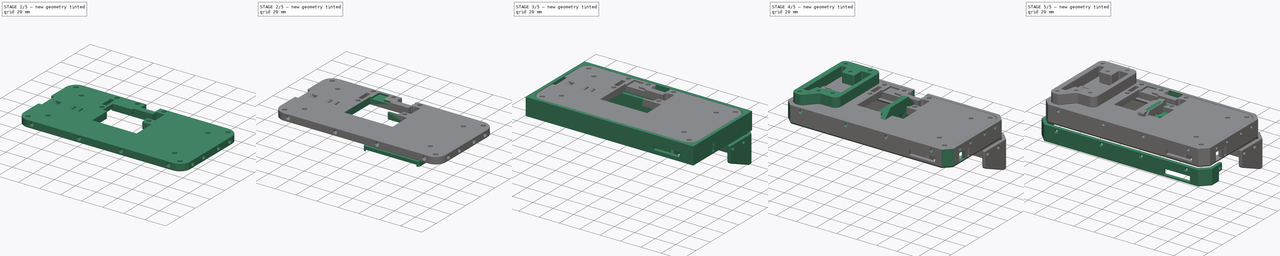
[diagram: build sequence overview — one tinted view per stage of 5, left to right]
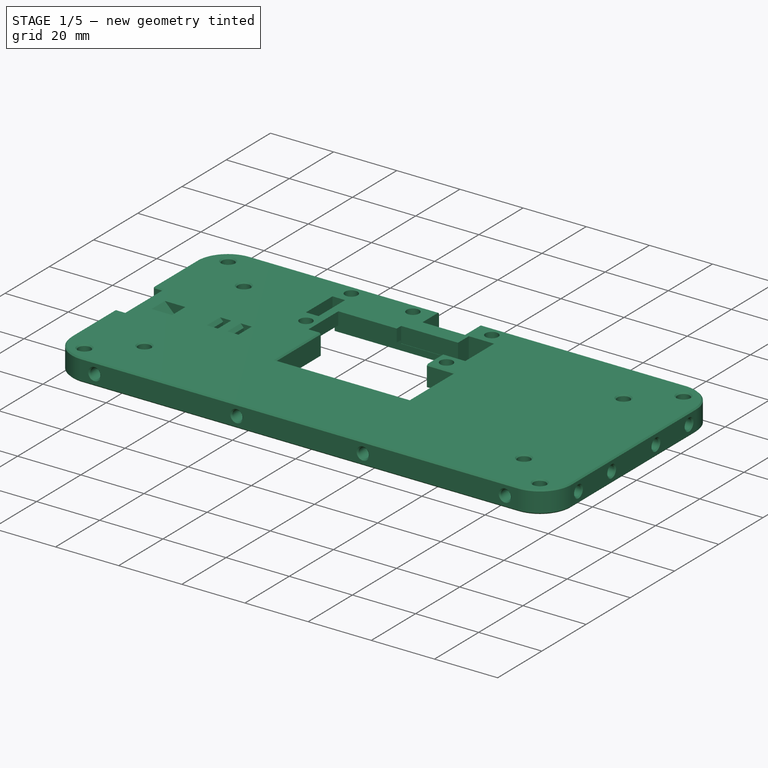
[diagram: stage 1 of 5 — iso view after this stage's code; geometry added in this stage tinted green]
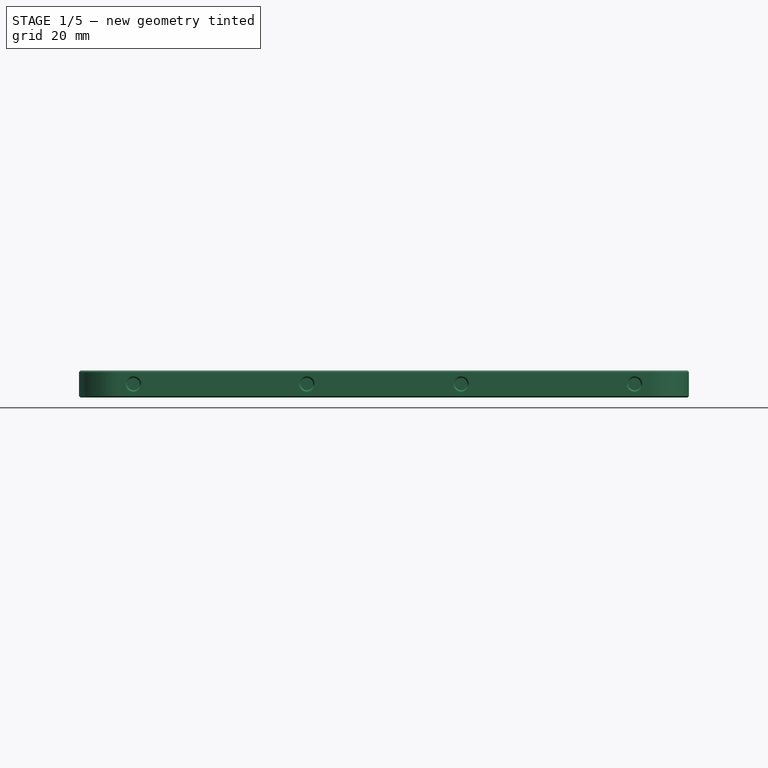
[diagram: stage 1 of 5 — front view after this stage's code; geometry added in this stage tinted green]
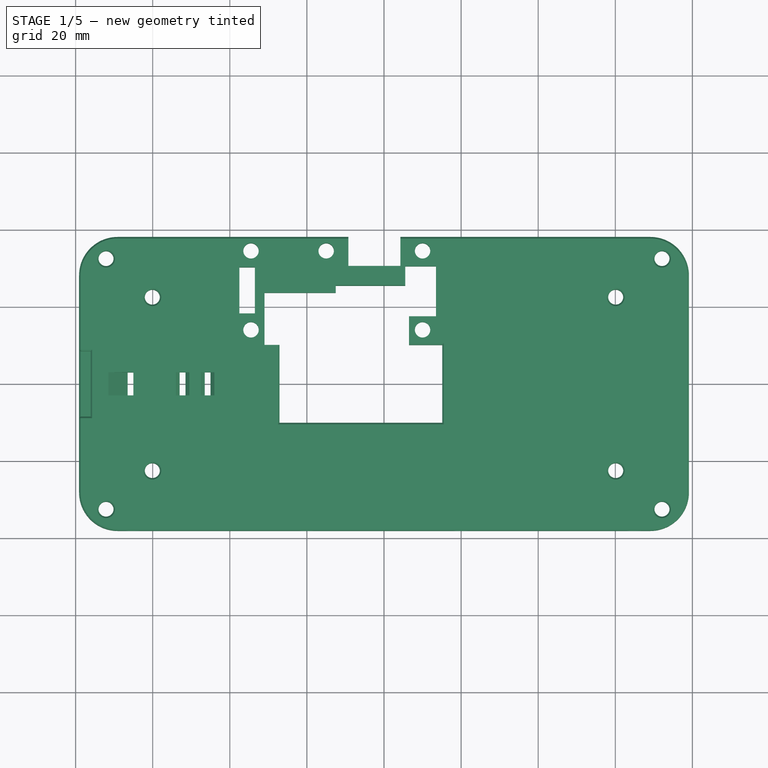
[diagram: stage 1 of 5 — top view after this stage's code; geometry added in this stage tinted green]
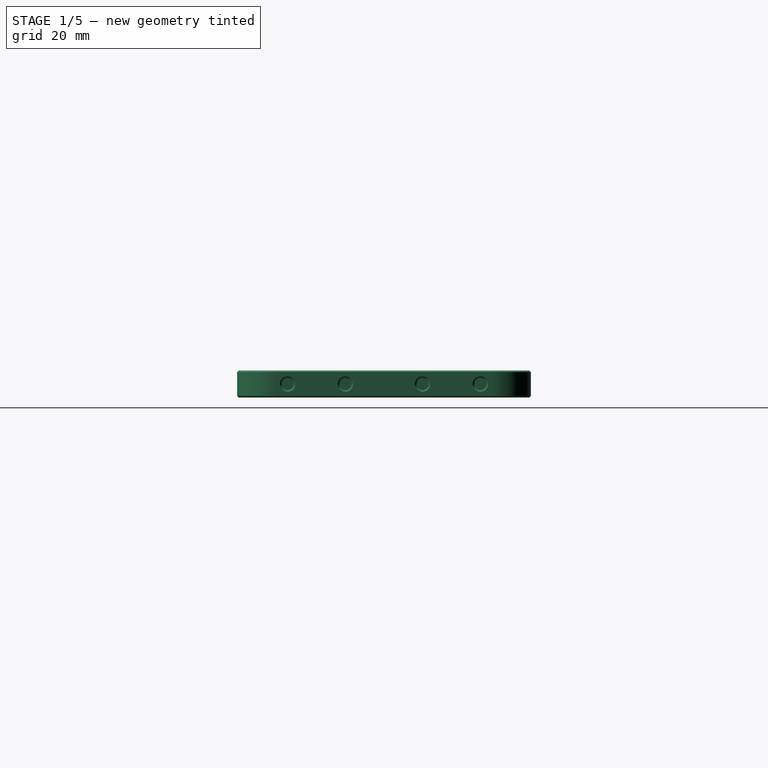
[diagram: stage 1 of 5 — right view after this stage's code; geometry added in this stage tinted green]
FCSTD DOCUMENT  (FreeCAD 0.21R33675 (Git))
Label: zenfone-m2-navi
License: All rights reserved
LicenseURL: http://en.wikipedia.org/wiki/All_rights_reserved
objects: Sketcher::SketchObject×126, PartDesign::Pocket×88, PartDesign::Pad×57, PartDesign::Chamfer×42, PartDesign::Body×22, App::Part×18, Part::Feature×17, PartDesign::Fillet×13, PartDesign::Plane×9, PartDesign::FeatureBase×7, Spreadsheet::Sheet×1, Part::Mirroring×1
note: 582 computed .brp shape members not serialized (recipe doc carries the construction recipe); baked Part::Feature solids carry a one-line shape summary decoded from their .brp

FEATURE [PartDesign::Body] Body004  label="volume-btn"
  Group = -> [Sketch030,Pad005,Chamfer013]
  Origin = -> Origin004
  Placement = pos=(30.5,46.25,4.25) rot=(0,0,1;0rad)
  Tip = -> Chamfer013
FEATURE [Sketcher::SketchObject] Sketch031
  FullyConstrained = true
  MapMode = 5
  Support = -> [XY_Plane005]
  expr: Constraints[10] = <<args>>.tablet_height - 0.3
  expr: Constraints[11] = (<<args>>.tablet_height - 0.3) / 2
  expr: Constraints[8] = <<args>>.tablet_width - 0.3
  expr: Constraints[9] = (<<args>>.tablet_width - 0.3) / 2
  sketch-geometry (4):
    g0: LineSegment StartX=-79.1 StartY=38.1 StartZ=0 EndX=79.1 EndY=38.1 EndZ=0
    g1: LineSegment StartX=79.1 StartY=38.1 StartZ=0 EndX=79.1 EndY=-38.1 EndZ=0
    g2: LineSegment StartX=79.1 StartY=-38.1 StartZ=0 EndX=-79.1 EndY=-38.1 EndZ=0
    g3: LineSegment StartX=-79.1 StartY=-38.1 StartZ=0 EndX=-79.1 EndY=38.1 EndZ=0
  constraints (12):
    c: Coincident(g0,g1)
    c: Coincident(g1,g2)
    c: Coincident(g2,g3)
    c: Coincident(g3,g0)
    c: Horizontal(g0)
    c: Horizontal(g2)
    c: Vertical(g1)
    c: Vertical(g3)
    c: DistanceX(g0,g0) = 158.2
    c: DistanceX(g0,g-1) = 79.1
    c: DistanceY(g1,g1) = 76.2
    c: DistanceY(g-1,g0) = 38.1
FEATURE [PartDesign::Pad] Pad006
  Direction = (1,1,1)
  Length = 7
  Length2 = 100
  Profile = -> Sketch031
  Type = 0
  expr: Length = <<args>>.case_back_thickness
FEATURE [PartDesign::Fillet] Fillet003
  Base = -> Pad006 [Edge5,Edge2,Edge1,Edge8]
  BaseFeature = -> Pad006
  Radius = 10
  SupportTransform = false
  UseAllEdges = false
FEATURE [Sketcher::SketchObject] Sketch034
  ExternalGeometry = -> [Fillet003]
  FullyConstrained = true
  MapMode = 5
  Placement = pos=(0,0,0) rot=(1,0,0;3.14159rad)
  Support = -> [Fillet003]
  sketch-geometry (4):
    g0: LineSegment StartX=72.6 StartY=-31.6 StartZ=0 EndX=51.6 EndY=-31.6 EndZ=0
    g1: LineSegment StartX=51.6 StartY=-31.6 StartZ=0 EndX=51.6 EndY=-20.6 EndZ=0
    g2: LineSegment StartX=51.6 StartY=-20.6 StartZ=0 EndX=72.6 EndY=-20.6 EndZ=0
    g3: LineSegment StartX=72.6 StartY=-20.6 StartZ=0 EndX=72.6 EndY=-31.6 EndZ=0
  constraints (12):
    c: Coincident(g0,g1)
    c: Coincident(g1,g2)
    c: Coincident(g2,g3)
    c: Coincident(g3,g0)
    c: Horizontal(g0)
    c: Horizontal(g2)
    c: Vertical(g1)
    c: Vertical(g3)
    c: DistanceY(g1,g1) = 11
    c: DistanceX(g2,g2) = 21
    c: DistanceY(g-4,g0) = 6.5
    c: DistanceX(g0,g-3) = 6.5
FEATURE [PartDesign::Pocket] Pocket026
  BaseFeature = -> Fillet003
  Direction = (1,1,1)
  Length = 0.5
  Length2 = 100
  Profile = -> Sketch034
  Type = 0
FEATURE [Sketcher::SketchObject] Sketch035
  ExternalGeometry = -> [Pocket026]
  FullyConstrained = true
  MapMode = 5
  Placement = pos=(0,0,0) rot=(1,0,0;3.14159rad)
  Support = -> [Pocket026]
  sketch-geometry (4):
    g0: LineSegment StartX=-27.1 StartY=10.1 StartZ=0 EndX=15.1 EndY=10.1 EndZ=0
    g1: LineSegment StartX=15.1 StartY=10.1 StartZ=0 EndX=15.1 EndY=-10.1 EndZ=0
    g2: LineSegment StartX=15.1 StartY=-10.1 StartZ=0 EndX=-27.1 EndY=-10.1 EndZ=0
    g3: LineSegment StartX=-27.1 StartY=-10.1 StartZ=0 EndX=-27.1 EndY=10.1 EndZ=0
  constraints (12):
    c: Coincident(g0,g1)
    c: Coincident(g1,g2)
    c: Coincident(g2,g3)
    c: Coincident(g3,g0)
    c: Horizontal(g0)
    c: Horizontal(g2)
    c: Vertical(g1)
    c: Vertical(g3)
    c: DistanceY(g-3,g2) = 28
    c: DistanceY(g0,g-4) = 28
    c: DistanceX(g-5,g2) = 52
    c: DistanceX(g1,g-6) = 64
FEATURE [PartDesign::Pocket] Pocket027
  BaseFeature = -> Pocket026
  Direction = (1,1,1)
  Length = 5
  Length2 = 100
  Profile = -> Sketch035
  Type = 1
FEATURE [Sketcher::SketchObject] Sketch036
  FullyConstrained = true
  MapMode = 5
  Placement = pos=(0,-38.1,0) rot=(1,0,0;1.5708rad)
  Support = -> [Pocket027]
  expr: Constraints[10] = <<args>>.m2p5_bolt_hole_radius
  expr: Constraints[11] = <<args>>.case_back_thickness / 2
  sketch-geometry (4):
    g0: Circle CenterX=-20 CenterY=3.5 CenterZ=0 NormalX=0 NormalY=0 NormalZ=1 AngleXU=0 Radius=1.35
    g1: Circle CenterX=-65 CenterY=3.5 CenterZ=0 NormalX=0 NormalY=0 NormalZ=1 AngleXU=0 Radius=1.35
    g2: Circle CenterX=20 CenterY=3.5 CenterZ=0 NormalX=0 NormalY=0 NormalZ=1 AngleXU=0 Radius=1.35
    g3: Circle CenterX=65 CenterY=3.5 CenterZ=0 NormalX=0 NormalY=0 NormalZ=1 AngleXU=0 Radius=1.35
  constraints (12):
    c: Horizontal(g1,g0)
    c: Horizontal(g0,g2)
    c: Horizontal(g2,g3)
    c: Equal(g3,g2)
    c: Equal(g2,g0)
    c: Equal(g0,g1)
    c: DistanceX(g0,g-1) = 20
    c: DistanceX(g1,g-1) = 65
    c: DistanceX(g-1,g2) = 20
    c: DistanceX(g-1,g3) = 65
    c: Radius(g3) = 1.35
    c: DistanceY(g-1,g2) = 3.5
FEATURE [PartDesign::Pocket] Pocket028
  BaseFeature = -> Pocket027
  Direction = (1,1,1)
  Length = 10
  Length2 = 100
  Profile = -> Sketch036
  Type = 0
FEATURE [Sketcher::SketchObject] Sketch037
  FullyConstrained = true
  MapMode = 5
  Placement = pos=(0,38.1,0) rot=(0,0.707107,0.707107;3.14159rad)
  Support = -> [Pocket028]
  expr: Constraints[11] = <<args>>.m2p5_bolt_hole_radius
  expr: Constraints[6] = <<args>>.case_back_thickness / 2
  sketch-geometry (4):
    g0: Circle CenterX=-65 CenterY=3.5 CenterZ=0 NormalX=0 NormalY=0 NormalZ=1 AngleXU=0 Radius=1.35
    g1: Circle CenterX=-20 CenterY=3.5 CenterZ=0 NormalX=0 NormalY=0 NormalZ=1 AngleXU=0 Radius=1.35
    g2: Circle CenterX=20 CenterY=3.5 CenterZ=0 NormalX=0 NormalY=0 NormalZ=1 AngleXU=0 Radius=1.35
    g3: Circle CenterX=65 CenterY=3.5 CenterZ=0 NormalX=0 NormalY=0 NormalZ=1 AngleXU=0 Radius=1.35
  constraints (12):
    c: Horizontal(g3,g2)
    c: Horizontal(g2,g1)
    c: Horizontal(g1,g0)
    c: Equal(g0,g1)
    c: Equal(g1,g2)
    c: Equal(g2,g3)
    c: DistanceY(g-1,g1) = 3.5
    c: DistanceX(g1,g-1) = 20
    c: DistanceX(g0,g-1) = 65
    c: DistanceX(g-1,g2) = 20
    c: DistanceX(g-1,g3) = 65
    c: Radius(g1) = 1.35
FEATURE [PartDesign::Pocket] Pocket029
  BaseFeature = -> Pocket028
  Direction = (1,1,1)
  Length = 10
  Length2 = 100
  Profile = -> Sketch037
  Type = 0
FEATURE [Sketcher::SketchObject] Sketch038
  FullyConstrained = true
  MapMode = 5
  Placement = pos=(-79.1,0,0) rot=(0.57735,-0.57735,-0.57735;2.0944rad)
  Support = -> [Pocket029]
  expr: Constraints[10] = <<args>>.case_back_thickness / 2
  expr: Constraints[11] = <<args>>.m2p5_bolt_hole_radius
  sketch-geometry (4):
    g0: Circle CenterX=-25 CenterY=3.5 CenterZ=0 NormalX=0 NormalY=0 NormalZ=1 AngleXU=0 Radius=1.35
    g1: Circle CenterX=-10 CenterY=3.5 CenterZ=0 NormalX=0 NormalY=0 NormalZ=1 AngleXU=0 Radius=1.35
    g2: Circle CenterX=10 CenterY=3.5 CenterZ=0 NormalX=0 NormalY=0 NormalZ=1 AngleXU=0 Radius=1.35
    g3: Circle CenterX=25 CenterY=3.5 CenterZ=0 NormalX=0 NormalY=0 NormalZ=1 AngleXU=0 Radius=1.35
  constraints (12):
    c: Horizontal(g3,g2)
    c: Horizontal(g2,g1)
    c: Horizontal(g1,g0)
    c: Equal(g0,g1)
    c: Equal(g1,g2)
    c: Equal(g2,g3)
    c: DistanceX(g1,g-1) = 10
    c: DistanceX(g0,g-1) = 25
    c: DistanceX(g-1,g2) = 10
    c: DistanceX(g-1,g3) = 25
    c: DistanceY(g-1,g2) = 3.5
    c: Radius(g2) = 1.35
FEATURE [PartDesign::Pocket] Pocket030
  BaseFeature = -> Pocket029
  Direction = (1,1,1)
  Length = 10
  Length2 = 100
  Profile = -> Sketch038
  Type = 0
FEATURE [Sketcher::SketchObject] Sketch039
  FullyConstrained = true
  MapMode = 5
  Placement = pos=(79.1,0,0) rot=(0.57735,0.57735,0.57735;2.0944rad)
  Support = -> [Pocket030]
  expr: Constraints[11] = <<args>>.case_back_thickness / 2
  expr: Constraints[6] = <<args>>.m2p5_bolt_hole_radius
  sketch-geometry (4):
    g0: Circle CenterX=-25 CenterY=3.5 CenterZ=0 NormalX=0 NormalY=0 NormalZ=1 AngleXU=0 Radius=1.35
    g1: Circle CenterX=-10 CenterY=3.5 CenterZ=0 NormalX=0 NormalY=0 NormalZ=1 AngleXU=0 Radius=1.35
    g2: Circle CenterX=10 CenterY=3.5 CenterZ=0 NormalX=0 NormalY=0 NormalZ=1 AngleXU=0 Radius=1.35
    g3: Circle CenterX=25 CenterY=3.5 CenterZ=0 NormalX=0 NormalY=0 NormalZ=1 AngleXU=0 Radius=1.35
  constraints (12):
    c: Equal(g0,g1)
    c: Equal(g1,g2)
    c: Equal(g2,g3)
    c: Horizontal(g0,g1)
    c: Horizontal(g1,g2)
    c: Horizontal(g2,g3)
    c: Radius(g3) = 1.35
    c: DistanceX(g1,g-1) = 10
    c: DistanceX(g0,g-1) = 25
    c: DistanceX(g-1,g2) = 10
    c: DistanceX(g-1,g3) = 25
    c: DistanceY(g-1,g1) = 3.5
FEATURE [PartDesign::Pocket] Pocket031
  BaseFeature = -> Pocket030
  Direction = (1,1,1)
  Length = 10
  Length2 = 100
  Profile = -> Sketch039
  Type = 0
FEATURE [Sketcher::SketchObject] Sketch040
  ExternalGeometry = -> [Pocket031]
  FullyConstrained = true
  MapMode = 5
  Placement = pos=(0,0,7) rot=(0,0,1;0rad)
  Support = -> [Pocket031]
  expr: Constraints[21] = <<args>>.m3_thread_insert_radius
  sketch-geometry (8):
    g0: Circle CenterX=-72.1 CenterY=32.5 CenterZ=0 NormalX=0 NormalY=0 NormalZ=1 AngleXU=0 Radius=1.95
    g1: Circle CenterX=-72.1 CenterY=-32.5 CenterZ=0 NormalX=0 NormalY=0 NormalZ=1 AngleXU=0 Radius=1.95
    g2: Circle CenterX=-60.1 CenterY=22.5 CenterZ=0 NormalX=0 NormalY=0 NormalZ=1 AngleXU=0 Radius=1.95
    g3: Circle CenterX=-60.1 CenterY=-22.5 CenterZ=0 NormalX=0 NormalY=0 NormalZ=1 AngleXU=0 Radius=1.95
    g4: Circle CenterX=72.1 CenterY=32.5 CenterZ=0 NormalX=0 NormalY=0 NormalZ=1 AngleXU=0 Radius=1.95
    g5: Circle CenterX=72.1 CenterY=-32.5 CenterZ=0 NormalX=0 NormalY=0 NormalZ=1 AngleXU=0 Radius=1.95
    g6: Circle CenterX=60.1 CenterY=-22.5 CenterZ=0 NormalX=0 NormalY=0 NormalZ=1 AngleXU=0 Radius=1.95
    g7: Circle CenterX=60.1 CenterY=22.5 CenterZ=0 NormalX=0 NormalY=0 NormalZ=1 AngleXU=0 Radius=1.95
  constraints (24):
    c: Vertical(g1,g0)
    c: Vertical(g3,g2)
    c: DistanceX(g0,g2) = 12
    c: DistanceY(g2,g0) = 10
    c: DistanceY(g1,g0) = 65
    c: DistanceY(g3,g2) = 45
    c: Equal(g0,g1)
    c: Equal(g1,g2)
    c: Equal(g2,g3)
    c: DistanceY(g-1,g2) = 22.5
    c: Vertical(g7,g6)
    c: Vertical(g4,g5)
    c: Horizontal(g6,g3)
    c: Horizontal(g2,g7)
    c: Horizontal(g4,g0)
    c: Horizontal(g5,g1)
    c: DistanceX(g6,g5) = 12
    c: Equal(g3,g4)
    c: Equal(g4,g5)
    c: Equal(g5,g6)
    c: Equal(g6,g7)
    c: Radius(g2) = 1.95
    c: DistanceX(g-3,g2) = 19
    c: DistanceX(g7,g-4) = 19
FEATURE [PartDesign::Pocket] Pocket032
  BaseFeature = -> Pocket031
  Direction = (1,1,1)
  Length = 5
  Length2 = 100
  Profile = -> Sketch040
  Type = 1
FEATURE [PartDesign::Body] Body011  label="front-std"
  BaseFeature = -> Chamfer006
  Group = -> [Clone,Pocket054]
  Origin = -> Origin011
  Tip = -> Pocket054
FEATURE [Sketcher::SketchObject] Sketch067
  ExternalGeometry = -> [Pocket032]
  FullyConstrained = true
  MapMode = 5
  Placement = pos=(0,0,0) rot=(1,0,0;3.14159rad)
  Support = -> [Pocket032]
  sketch-geometry (4):
    g0: LineSegment StartX=-55.1 StartY=25.5 StartZ=0 EndX=55.1 EndY=25.5 EndZ=0
    g1: LineSegment StartX=55.1 StartY=25.5 StartZ=0 EndX=55.1 EndY=-25.5 EndZ=0
    g2: LineSegment StartX=55.1 StartY=-25.5 StartZ=0 EndX=-55.1 EndY=-25.5 EndZ=0
    g3: LineSegment StartX=-55.1 StartY=-25.5 StartZ=0 EndX=-55.1 EndY=25.5 EndZ=0
  constraints (12):
    c: Coincident(g0,g1)
    c: Coincident(g1,g2)
    c: Coincident(g2,g3)
    c: Coincident(g3,g0)
    c: Horizontal(g0)
    c: Horizontal(g2)
    c: Vertical(g1)
    c: Vertical(g3)
    c: DistanceX(g-3,g0) = 5
    c: DistanceX(g0,g-5) = 5
    c: DistanceY(g-5,g0) = 3
    c: DistanceY(g1,g-6) = 3
FEATURE [PartDesign::Pocket] Pocket055
  BaseFeature = -> Pocket032
  Direction = (1,1,1)
  Length = 3
  Length2 = 100
  Profile = -> Sketch067
  Type = 0
FEATURE [Sketcher::SketchObject] Sketch068
  ExternalGeometry = -> [Pocket055]
  FullyConstrained = true
  MapMode = 5
  Placement = pos=(0,-38.1,0) rot=(1,0,0;1.5708rad)
  Support = -> [Pocket055]
  expr: Constraints[7] = <<args>>.m2p5_thread_insert_radius
  sketch-geometry (4):
    g0: Circle CenterX=-65 CenterY=3.5 CenterZ=0 NormalX=0 NormalY=0 NormalZ=1 AngleXU=0 Radius=1.6
    g1: Circle CenterX=-20 CenterY=3.5 CenterZ=0 NormalX=0 NormalY=0 NormalZ=1 AngleXU=0 Radius=1.6
    g2: Circle CenterX=20 CenterY=3.5 CenterZ=0 NormalX=0 NormalY=0 NormalZ=1 AngleXU=0 Radius=1.6
    g3: Circle CenterX=65 CenterY=3.5 CenterZ=0 NormalX=0 NormalY=0 NormalZ=1 AngleXU=0 Radius=1.6
  constraints (8):
    c: Coincident(g0,g-3)
    c: Coincident(g1,g-4)
    c: Coincident(g2,g-5)
    c: Coincident(g3,g-6)
    c: Equal(g0,g1)
    c: Equal(g1,g2)
    c: Equal(g2,g3)
    c: Radius(g3) = 1.6
FEATURE [PartDesign::Pocket] Pocket056
  BaseFeature = -> Pocket055
  Direction = (1,1,1)
  Length = 5
  Length2 = 100
  Profile = -> Sketch068
  Type = 0
FEATURE [Sketcher::SketchObject] Sketch069
  ExternalGeometry = -> [Pocket056]
  FullyConstrained = true
  MapMode = 5
  Placement = pos=(0,38.1,0) rot=(0,0.707107,0.707107;3.14159rad)
  Support = -> [Pocket056]
  expr: Constraints[7] = <<args>>.m2p5_thread_insert_radius
  sketch-geometry (4):
    g0: Circle CenterX=-65 CenterY=3.5 CenterZ=0 NormalX=0 NormalY=0 NormalZ=1 AngleXU=0 Radius=1.6
    g1: Circle CenterX=-20 CenterY=3.5 CenterZ=0 NormalX=0 NormalY=0 NormalZ=1 AngleXU=0 Radius=1.6
    g2: Circle CenterX=20 CenterY=3.5 CenterZ=0 NormalX=0 NormalY=0 NormalZ=1 AngleXU=0 Radius=1.6
    g3: Circle CenterX=65 CenterY=3.5 CenterZ=0 NormalX=0 NormalY=0 NormalZ=1 AngleXU=0 Radius=1.6
  constraints (8):
    c: Coincident(g0,g-3)
    c: Coincident(g1,g-4)
    c: Coincident(g2,g-5)
    c: Coincident(g3,g-6)
    c: Equal(g0,g1)
    c: Equal(g1,g2)
    c: Equal(g2,g3)
    c: Radius(g3) = 1.6
FEATURE [PartDesign::Pocket] Pocket057
  BaseFeature = -> Pocket056
  Direction = (1,1,1)
  Length = 5
  Length2 = 100
  Profile = -> Sketch069
  Type = 0
FEATURE [Sketcher::SketchObject] Sketch070
  ExternalGeometry = -> [Pocket057]
  FullyConstrained = true
  MapMode = 5
  Placement = pos=(-79.1,0,0) rot=(0.57735,-0.57735,-0.57735;2.0944rad)
  Support = -> [Pocket057]
  expr: Constraints[7] = <<args>>.m2p5_thread_insert_radius
  sketch-geometry (4):
    g0: Circle CenterX=-25 CenterY=3.5 CenterZ=0 NormalX=0 NormalY=0 NormalZ=1 AngleXU=0 Radius=1.6
    g1: Circle CenterX=-10 CenterY=3.5 CenterZ=0 NormalX=0 NormalY=0 NormalZ=1 AngleXU=0 Radius=1.6
    g2: Circle CenterX=10 CenterY=3.5 CenterZ=0 NormalX=0 NormalY=0 NormalZ=1 AngleXU=0 Radius=1.6
    g3: Circle CenterX=25 CenterY=3.5 CenterZ=0 NormalX=0 NormalY=0 NormalZ=1 AngleXU=0 Radius=1.6
  constraints (8):
    c: Coincident(g0,g-3)
    c: Coincident(g1,g-4)
    c: Coincident(g2,g-5)
    c: Coincident(g3,g-6)
    c: Equal(g0,g1)
    c: Equal(g1,g2)
    c: Equal(g2,g3)
    c: Radius(g3) = 1.6
FEATURE [PartDesign::Pocket] Pocket058
  BaseFeature = -> Pocket057
  Direction = (1,1,1)
  Length = 5
  Length2 = 100
  Profile = -> Sketch070
  Type = 0
FEATURE [Sketcher::SketchObject] Sketch071
  ExternalGeometry = -> [Pocket058]
  FullyConstrained = true
  MapMode = 5
  Placement = pos=(79.1,0,0) rot=(0.57735,0.57735,0.57735;2.0944rad)
  Support = -> [Pocket058]
  expr: Constraints[7] = <<args>>.m2p5_thread_insert_radius
  sketch-geometry (4):
    g0: Circle CenterX=-25 CenterY=3.5 CenterZ=0 NormalX=0 NormalY=0 NormalZ=1 AngleXU=0 Radius=1.6
    g1: Circle CenterX=-10 CenterY=3.5 CenterZ=0 NormalX=0 NormalY=0 NormalZ=1 AngleXU=0 Radius=1.6
    g2: Circle CenterX=10 CenterY=3.5 CenterZ=0 NormalX=0 NormalY=0 NormalZ=1 AngleXU=0 Radius=1.6
    g3: Circle CenterX=25 CenterY=3.5 CenterZ=0 NormalX=0 NormalY=0 NormalZ=1 AngleXU=0 Radius=1.6
  constraints (8):
    c: Coincident(g0,g-3)
    c: Coincident(g1,g-4)
    c: Coincident(g2,g-5)
    c: Coincident(g3,g-6)
    c: Equal(g0,g1)
    c: Equal(g1,g2)
    c: Equal(g2,g3)
    c: Radius(g3) = 1.6
FEATURE [PartDesign::Pocket] Pocket059
  BaseFeature = -> Pocket058
  Direction = (1,1,1)
  Length = 5
  Length2 = 100
  Profile = -> Sketch071
  Type = 0
FEATURE [PartDesign::Chamfer] Chamfer036004006
  Angle = 45
  Base = -> Pocket059 [Face5,Edge11,Edge13,Edge15,Edge14,Edge12,Edge10,Edge1,Edge9,Edge5,Edge6,Edge7,Edge8,Edge69,Edge70,Edge71,Edge72,Edge75,Edge76,Edge77,Edge78,Edge64,Edge65,Edge66,Edge67]
  BaseFeature = -> Pocket059
  ChamferType = 0
  FlipDirection = false
  Size = 0.4
  Size2 = 1
  SupportTransform = false
  UseAllEdges = false
FEATURE [PartDesign::Chamfer] Chamfer036004007
  Angle = 45
  Base = -> Chamfer036004006 [Edge58,Edge46,Edge47,Edge129,Edge62,Edge63,Edge49,Edge48]
  BaseFeature = -> Chamfer036004006
  ChamferType = 0
  FlipDirection = false
  Size = 0.4
  Size2 = 1
  SupportTransform = false
  UseAllEdges = false
FEATURE [PartDesign::FeatureBase] Clone003
  BaseFeature = -> Chamfer036004007
FEATURE [Sketcher::SketchObject] Sketch079
  ExternalGeometry = -> [Clone003]
  FullyConstrained = true
  MapMode = 5
  Placement = pos=(-79.1,0,0) rot=(0.57735,-0.57735,-0.57735;2.0944rad)
  Support = -> [Clone003]
  sketch-geometry (2):
    g0: Circle CenterX=-10 CenterY=3.5 CenterZ=0 NormalX=0 NormalY=0 NormalZ=1 AngleXU=0 Radius=2
    g1: Circle CenterX=10 CenterY=3.5 CenterZ=0 NormalX=0 NormalY=0 NormalZ=1 AngleXU=0 Radius=2
  constraints (4):
    c: Coincident(g0,g-3)
    c: Coincident(g1,g-4)
    c: Equal(g1,g0)
    c: Equal(g0,g-3)
FEATURE [PartDesign::Pad] Pad016
  BaseFeature = -> Clone003
  Direction = (1,1,1)
  Length = 10
  Length2 = 100
  Profile = -> Sketch079
  Refine = true
  Reversed = true
  Type = 0
FEATURE [Sketcher::SketchObject] Sketch080
  FullyConstrained = true
  MapMode = 5
  Placement = pos=(-79.1,0,0) rot=(0.57735,-0.57735,-0.57735;2.0944rad)
  Support = -> [Pad016]
  expr: Constraints[2] = <<args>>.case_back_thickness / 2
  expr: Constraints[3] = <<args>>.m2p5_bolt_hole_radius
  sketch-geometry (2):
    g0: Circle CenterX=-12 CenterY=3.5 CenterZ=0 NormalX=0 NormalY=0 NormalZ=1 AngleXU=0 Radius=1.35
    g1: Circle CenterX=12 CenterY=3.5 CenterZ=0 NormalX=0 NormalY=0 NormalZ=1 AngleXU=0 Radius=1.35
  constraints (6):
    c: Horizontal(g1,g0)
    c: Equal(g1,g0)
    c: DistanceY(g-1,g0) = 3.5
    c: Radius(g0) = 1.35
    c: DistanceX(g0,g-1) = 12
    c: DistanceX(g-1,g1) = 12
FEATURE [PartDesign::Pocket] Pocket065
  BaseFeature = -> Pad016
  Direction = (1,1,1)
  Length = 10
  Length2 = 100
  Profile = -> Sketch080
  Type = 0
FEATURE [Sketcher::SketchObject] Sketch081
  ExternalGeometry = -> [Pocket065]
  FullyConstrained = true
  MapMode = 5
  Placement = pos=(-79.1,0,0) rot=(0.57735,-0.57735,-0.57735;2.0944rad)
  Support = -> [Pocket065]
  expr: Constraints[3] = <<args>>.m2p5_thread_insert_radius
  sketch-geometry (2):
    g0: Circle CenterX=-12 CenterY=3.5 CenterZ=0 NormalX=0 NormalY=0 NormalZ=1 AngleXU=0 Radius=1.6
    g1: Circle CenterX=12 CenterY=3.5 CenterZ=0 NormalX=0 NormalY=0 NormalZ=1 AngleXU=0 Radius=1.6
  constraints (4):
    c: Coincident(g0,g-3)
    c: Coincident(g1,g-4)
    c: Equal(g1,g0)
    c: Radius(g1) = 1.6
FEATURE [PartDesign::Pocket] Pocket066
  BaseFeature = -> Pocket065
  Direction = (1,1,1)
  Length = 5
  Length2 = 100
  Profile = -> Sketch081
  Type = 0
FEATURE [PartDesign::Chamfer] Chamfer036004013
  Angle = 45
  Base = -> Pocket066 [Edge106,Edge105]
  BaseFeature = -> Pocket066
  ChamferType = 0
  FlipDirection = false
  Size = 0.4
  Size2 = 1
  SupportTransform = false
  UseAllEdges = false
FEATURE [Sketcher::SketchObject] Sketch082
  ExternalGeometry = -> [Chamfer036004013]
  FullyConstrained = true
  MapMode = 5
  Placement = pos=(-79.1,0,0) rot=(0.57735,-0.57735,-0.57735;2.0944rad)
  Support = -> [Chamfer036004013]
  sketch-geometry (4):
    g0: LineSegment StartX=-8.5 StartY=7 StartZ=0 EndX=8.5 EndY=7 EndZ=0
    g1: LineSegment StartX=8.5 StartY=7 StartZ=0 EndX=8.5 EndY=2.5 EndZ=0
    g2: LineSegment StartX=8.5 StartY=2.5 StartZ=0 EndX=-8.5 EndY=2.5 EndZ=0
    g3: LineSegment StartX=-8.5 StartY=2.5 StartZ=0 EndX=-8.5 EndY=7 EndZ=0
  constraints (12):
    c: Coincident(g0,g1)
    c: Coincident(g1,g2)
    c: Coincident(g2,g3)
    c: Coincident(g3,g0)
    c: Horizontal(g0)
    c: Horizontal(g2)
    c: Vertical(g1)
    c: Vertical(g3)
    c: PointOnObject(g0,g-3)
    c: DistanceX(g0,g-1) = 8.5
    c: DistanceX(g0,g0) = 17
    c: DistanceY(g1,g1) = 4.5
FEATURE [PartDesign::Pocket] Pocket067
  BaseFeature = -> Chamfer036004013
  Direction = (1,1,1)
  Length = 3
  Length2 = 100
  Profile = -> Sketch082
  Type = 0
FEATURE [PartDesign::Body] Body012  label="din-end"
  BaseFeature = -> Chamfer001001
  Group = -> [BaseFeature001,Sketch072,Pocket060,Chamfer036004017]
  Origin = -> Origin012
  Placement = pos=(-77,0,31.75) rot=(0,1,0;1.5708rad)
  Tip = -> Chamfer036004017
FEATURE [PartDesign::Chamfer] Chamfer036004018
  Angle = 45
  Base = -> Pocket067 [Edge4,Edge19,Edge22,Edge79,Edge5,Edge6,Edge27,Edge29]
  BaseFeature = -> Pocket067
  ChamferType = 0
  FlipDirection = false
  Size = 0.4
  Size2 = 1
  SupportTransform = false
  UseAllEdges = false
FEATURE [Sketcher::SketchObject] Sketch085
  FullyConstrained = true
  MapMode = 5
  Placement = pos=(0,0,7) rot=(0,0,1;0rad)
  Support = -> [Chamfer036004018]
  sketch-geometry (4):
    g0: LineSegment StartX=-66.5 StartY=3 StartZ=0 EndX=-65 EndY=3 EndZ=0
    g1: LineSegment StartX=-65 StartY=3 StartZ=0 EndX=-65 EndY=-3 EndZ=0
    g2: LineSegment StartX=-65 StartY=-3 StartZ=0 EndX=-66.5 EndY=-3 EndZ=0
    g3: LineSegment StartX=-66.5 StartY=-3 StartZ=0 EndX=-66.5 EndY=3 EndZ=0
  constraints (12):
    c: Coincident(g0,g1)
    c: Coincident(g1,g2)
    c: Coincident(g2,g3)
    c: Coincident(g3,g0)
    c: Horizontal(g0)
    c: Horizontal(g2)
    c: Vertical(g1)
    c: Vertical(g3)
    c: DistanceY(g3,g3) = 6
    c: DistanceY(g-1,g0) = 3
    c: DistanceX(g2,g2) = 1.5
    c: DistanceX(g1,g-1) = 65
FEATURE [PartDesign::Pocket] Pocket070
  BaseFeature = -> Chamfer036004018
  Direction = (1,1,1)
  Length = 5
  Length2 = 100
  Profile = -> Sketch085
  Type = 1
FEATURE [Sketcher::SketchObject] Sketch086
  ExternalGeometry = -> [Pocket070]
  FullyConstrained = true
  MapMode = 5
  Placement = pos=(0,0,0) rot=(1,0,0;3.14159rad)
  Support = -> [Pocket070]
  sketch-geometry (4):
    g0: LineSegment StartX=-65 StartY=3 StartZ=0 EndX=-55.1 EndY=3 EndZ=0
    g1: LineSegment StartX=-55.1 StartY=3 StartZ=0 EndX=-55.1 EndY=-3 EndZ=0
    g2: LineSegment StartX=-55.1 StartY=-3 StartZ=0 EndX=-65 EndY=-3 EndZ=0
    g3: LineSegment StartX=-65 StartY=-3 StartZ=0 EndX=-65 EndY=3 EndZ=0
  constraints (11):
    c: Coincident(g0,g1)
    c: Coincident(g1,g2)
    c: Coincident(g2,g3)
    c: Coincident(g3,g0)
    c: Horizontal(g0)
    c: Horizontal(g2)
    c: Vertical(g1)
    c: Vertical(g3)
    c: Coincident(g0,g-4)
    c: PointOnObject(g1,g-3)
    c: Horizontal(g-5,g2)
FEATURE [PartDesign::Pocket] Pocket071
  BaseFeature = -> Pocket070
  Direction = (1,1,1)
  Length = 3
  Length2 = 100
  Profile = -> Sketch086
  Refine = true
  Type = 0
FEATURE [PartDesign::Chamfer] Chamfer036004019
  Angle = 45
  Base = -> Pocket071 [Edge66]
  BaseFeature = -> Pocket071
  ChamferType = 0
  FlipDirection = false
  Size = 5
  Size2 = 1
  SupportTransform = false
  UseAllEdges = false
FEATURE [PartDesign::Chamfer] Chamfer036004020
  Angle = 45
  Base = -> Chamfer036004019 [Edge39]
  BaseFeature = -> Chamfer036004019
  ChamferType = 0
  FlipDirection = false
  Size = 1
  Size2 = 1
  SupportTransform = false
  UseAllEdges = false
FEATURE [Sketcher::SketchObject] Sketch087
  FullyConstrained = true
  MapMode = 5
  Placement = pos=(0,0,7) rot=(0,0,1;0rad)
  Support = -> [Chamfer036004020]
  expr: Constraints[7] = <<args>>.m3_thread_insert_radius
  sketch-geometry (4):
    g0: Circle CenterX=-12.5 CenterY=33 CenterZ=0 NormalX=0 NormalY=0 NormalZ=1 AngleXU=0 Radius=1.95
    g1: Circle CenterX=27.5 CenterY=33 CenterZ=0 NormalX=0 NormalY=0 NormalZ=1 AngleXU=0 Radius=1.95
    g2: Circle CenterX=-12.5 CenterY=23 CenterZ=0 NormalX=0 NormalY=0 NormalZ=1 AngleXU=0 Radius=1.95
    g3: Circle CenterX=27.5 CenterY=23 CenterZ=0 NormalX=0 NormalY=0 NormalZ=1 AngleXU=0 Radius=1.95
  constraints (12):
    c: Horizontal(g0,g1)
    c: Horizontal(g2,g3)
    c: Vertical(g2,g0)
    c: Vertical(g1,g3)
    c: Equal(g3,g1)
    c: Equal(g1,g0)
    c: Equal(g0,g2)
    c: Radius(g0) = 1.95
    c: DistanceX(g0,g1) = 40
    c: DistanceY(g2,g0) = 10
    c: DistanceY(g-1,g2) = 23
    c: DistanceX(g2,g-1) = 12.5
FEATURE [PartDesign::Pocket] Pocket072
  BaseFeature = -> Chamfer036004020
  Direction = (1,1,1)
  Length = 5
  Length2 = 100
  Profile = -> Sketch087
  Type = 1
FEATURE [Sketcher::SketchObject] Sketch088
  ExternalGeometry = -> [Pocket072]
  FullyConstrained = true
  MapMode = 5
  Placement = pos=(0,0,3) rot=(1,0,0;3.14159rad)
  Support = -> [Pocket072]
  sketch-geometry (8):
    g0: LineSegment StartX=-27.1 StartY=10.1 StartZ=0 EndX=15.1 EndY=10.1 EndZ=0
    g1: LineSegment StartX=15.1 StartY=10.1 StartZ=0 EndX=15.1 EndY=-10.1 EndZ=0
    g2: LineSegment StartX=15.1 StartY=-10.1 StartZ=0 EndX=-27.1 EndY=-10.1 EndZ=0
    g3: LineSegment StartX=-27.1 StartY=-10.1 StartZ=0 EndX=-27.1 EndY=10.1 EndZ=0
    g4: LineSegment StartX=-28.6 StartY=11.6 StartZ=0 EndX=16.6 EndY=11.6 EndZ=0
    g5: LineSegment StartX=16.6 StartY=11.6 StartZ=0 EndX=16.6 EndY=-11.6 EndZ=0
    g6: LineSegment StartX=16.6 StartY=-11.6 StartZ=0 EndX=-28.6 EndY=-11.6 EndZ=0
    g7: LineSegment StartX=-28.6 StartY=-11.6 StartZ=0 EndX=-28.6 EndY=11.6 EndZ=0
  constraints (22):
    c: Coincident(g0,g1)
    c: Coincident(g1,g2)
    c: Coincident(g2,g3)
    c: Coincident(g3,g0)
    c: Horizontal(g0)
    c: Horizontal(g2)
    c: Vertical(g1)
    c: Vertical(g3)
    c: Coincident(g0,g-3)
    c: Coincident(g1,g-4)
    c: Coincident(g4,g5)
    c: Coincident(g5,g6)
    c: Coincident(g6,g7)
    c: Coincident(g7,g4)
    c: Horizontal(g4)
    c: Horizontal(g6)
    c: Vertical(g5)
    c: Vertical(g7)
    c: DistanceX(g4,g0) = 1.5
    c: DistanceX(g1,g5) = 1.5
    c: DistanceY(g0,g4) = 1.5
    c: DistanceY(g6,g2) = 1.5
FEATURE [PartDesign::Pad] Pad017
  BaseFeature = -> Pocket072
  Direction = (1,1,1)
  Length = 2.5
  Length2 = 100
  Profile = -> Sketch088
  Type = 0
FEATURE [Sketcher::SketchObject] Sketch089
  FullyConstrained = true
  MapMode = 5
  Placement = pos=(0,0,3) rot=(1,0,0;3.14159rad)
  Support = -> [Pad017]
  sketch-geometry (28):
    g0: LineSegment StartX=-3 StartY=-12 StartZ=0 EndX=3 EndY=-12 EndZ=0
    g1: LineSegment StartX=3 StartY=-12 StartZ=0 EndX=3 EndY=-13.5 EndZ=0
    g2: LineSegment StartX=3 StartY=-13.5 StartZ=0 EndX=-3 EndY=-13.5 EndZ=0
    g3: LineSegment StartX=-3 StartY=-13.5 StartZ=0 EndX=-3 EndY=-12 EndZ=0
    g4: LineSegment StartX=17.5 StartY=-12 StartZ=0 EndX=20.5 EndY=-12 EndZ=0
    g5: LineSegment StartX=20.5 StartY=-12 StartZ=0 EndX=20.5 EndY=-13.5 EndZ=0
    g6: LineSegment StartX=20.5 StartY=-13.5 StartZ=0 EndX=17.5 EndY=-13.5 EndZ=0
    g7: LineSegment StartX=17.5 StartY=-13.5 StartZ=0 EndX=17.5 EndY=-12 EndZ=0
    g8: LineSegment StartX=7 StartY=15 StartZ=0 EndX=8.5 EndY=15 EndZ=0
    g9: LineSegment StartX=8.5 StartY=15 StartZ=0 EndX=8.5 EndY=12 EndZ=0
    g10: LineSegment StartX=8.5 StartY=12 StartZ=0 EndX=7 EndY=12 EndZ=0
    g11: LineSegment StartX=7 StartY=12 StartZ=0 EndX=7 EndY=15 EndZ=0
    g12: LineSegment StartX=15 StartY=15 StartZ=0 EndX=13.5 EndY=15 EndZ=0
    g13: LineSegment StartX=13.5 StartY=15 StartZ=0 EndX=13.5 EndY=12 EndZ=0
    g14: LineSegment StartX=13.5 StartY=12 StartZ=0 EndX=15 EndY=12 EndZ=0
    g15: LineSegment StartX=15 StartY=12 StartZ=0 EndX=15 EndY=15 EndZ=0
    g16: LineSegment StartX=20 StartY=15 StartZ=0 EndX=21.5 EndY=15 EndZ=0
    g17: LineSegment StartX=21.5 StartY=15 StartZ=0 EndX=21.5 EndY=12 EndZ=0
    g18: LineSegment StartX=21.5 StartY=12 StartZ=0 EndX=20 EndY=12 EndZ=0
    g19: LineSegment StartX=20 StartY=12 StartZ=0 EndX=20 EndY=15 EndZ=0
    g20: LineSegment StartX=-53 StartY=3 StartZ=0 EndX=-51.5 EndY=3 EndZ=0
    g21: LineSegment StartX=-51.5 StartY=3 StartZ=0 EndX=-51.5 EndY=-3 EndZ=0
    g22: LineSegment StartX=-51.5 StartY=-3 StartZ=0 EndX=-53 EndY=-3 EndZ=0
    g23: LineSegment StartX=-53 StartY=-3 StartZ=0 EndX=-53 EndY=3 EndZ=0
    g24: LineSegment StartX=-46.5 StartY=3 StartZ=0 EndX=-45 EndY=3 EndZ=0
    g25: LineSegment StartX=-45 StartY=3 StartZ=0 EndX=-45 EndY=-3 EndZ=0
    g26: LineSegment StartX=-45 StartY=-3 StartZ=0 EndX=-46.5 EndY=-3 EndZ=0
    g27: LineSegment StartX=-46.5 StartY=-3 StartZ=0 EndX=-46.5 EndY=3 EndZ=0
  constraints (84):
    c: Coincident(g0,g1)
    c: Coincident(g1,g2)
    c: Coincident(g2,g3)
    c: Coincident(g3,g0)
    c: Horizontal(g0)
    c: Horizontal(g2)
    c: Vertical(g1)
    c: Vertical(g3)
    c: Coincident(g4,g5)
    c: Coincident(g5,g6)
    c: Coincident(g6,g7)
    c: Coincident(g7,g4)
    c: Horizontal(g4)
    c: Horizontal(g6)
    c: Vertical(g5)
    c: Vertical(g7)
    c: Horizontal(g4,g0)
    c: Horizontal(g1,g6)
    c: DistanceX(g0,g0) = 6
    c: DistanceX(g4,g4) = 3
    c: DistanceY(g3,g3) = 1.5
    c: DistanceY(g0,g-1) = 12
    c: DistanceX(g-1,g0) = 3
    c: DistanceX(g1,g6) = 14.5
    c: Coincident(g8,g9)
    c: Coincident(g9,g10)
    c: Coincident(g10,g11)
    c: Coincident(g11,g8)
    c: Horizontal(g8)
    c: Horizontal(g10)
    c: Vertical(g9)
    c: Vertical(g11)
    c: DistanceX(g-1,g10) = 7
    c: DistanceY(g-1,g10) = 12
    c: Coincident(g12,g13)
    c: Coincident(g13,g14)
    c: Coincident(g14,g15)
    c: Coincident(g15,g12)
    c: Horizontal(g12)
    c: Horizontal(g14)
    c: Vertical(g13)
    c: Vertical(g15)
    c: Coincident(g16,g17)
    c: Coincident(g17,g18)
    c: Coincident(g18,g19)
    c: Coincident(g19,g16)
    c: Horizontal(g16)
    c: Horizontal(g18)
    c: Vertical(g17)
    c: Vertical(g19)
    c: Horizontal(g9,g13)
    c: Horizontal(g13,g18)
    c: Horizontal(g8,g12)
    c: Horizontal(g12,g16)
    c: DistanceY(g11,g11) = 3
    c: Equal(g8,g12)
    c: Equal(g12,g16)
    c: DistanceX(g8,g8) = 1.5
    c: DistanceX(g8,g12) = 5
    c: DistanceX(g12,g16) = 5
    c: Coincident(g20,g21)
    c: Coincident(g21,g22)
    c: Coincident(g22,g23)
    c: Coincident(g23,g20)
    c: Horizontal(g20)
    c: Horizontal(g22)
    c: Vertical(g21)
    c: Vertical(g23)
    c: Coincident(g24,g25)
    c: Coincident(g25,g26)
    c: Coincident(g26,g27)
    c: Coincident(g27,g24)
    c: Horizontal(g24)
    c: Horizontal(g26)
    c: Vertical(g25)
    c: Vertical(g27)
    c: Horizontal(g20,g24)
    c: Horizontal(g21,g26)
    c: Equal(g20,g24)
    c: DistanceX(g20,g20) = 1.5
    c: DistanceY(g23,g23) = 6
    c: DistanceY(g-1,g24) = 3
    c: DistanceX(g21,g26) = 5
    c: DistanceX(g25,g-1) = 45
FEATURE [PartDesign::Pocket] Pocket073
  BaseFeature = -> Pad017
  Direction = (1,1,1)
  Length = 5
  Length2 = 100
  Profile = -> Sketch089
  Type = 1
FEATURE [PartDesign::Chamfer] Chamfer036004021
  Angle = 45
  Base = -> Pocket073 [Edge25,Edge27,Edge22,Edge24,Edge17,Edge19,Edge42,Edge46,Edge37,Edge39,Edge33,Edge35,Edge123,Edge125,Edge119,Edge121,Edge109,Edge111,Edge106,Edge108,Edge101,Edge103,Edge139,Edge131]
  BaseFeature = -> Pocket073
  ChamferType = 0
  FlipDirection = false
  Size = 1
  Size2 = 1
  SupportTransform = false
  UseAllEdges = false
FEATURE [PartDesign::Body] Body019  label="long-din-stopper"
  Group = -> [Sketch098,Pad023,Sketch099,Pad024,Sketch100,Pocket077,Sketch101,Pocket078,Chamfer036004027,Chamfer036004028]
  Origin = -> Origin025
  Tip = -> Chamfer036004028
FEATURE [PartDesign::FeatureBase] Clone004
  BaseFeature = -> Body015
  Placement = pos=(0,0,10) rot=(0,0,1;0rad)
FEATURE [PartDesign::Pad] Pad025
  BaseFeature = -> Clone004
  Direction = (1,1,1)
  Length = 4
  Length2 = 100
  Placement = pos=(0,0,10) rot=(0,0,1;0rad)
  Profile = -> Clone004 [Edge21,Edge22]
  Type = 0
FEATURE [PartDesign::Pad] Pad026
  BaseFeature = -> Pad025
  Direction = (1,1,1)
  Length = 7
  Length2 = 100
  Placement = pos=(0,0,10) rot=(0,0,1;0rad)
  Profile = -> Pad025 [Edge298,Edge299]
  Refine = true
  Type = 0
FEATURE [Sketcher::SketchObject] Sketch102
  ExternalGeometry = -> [Pad026]
  FullyConstrained = true
  MapMode = 5
  Placement = pos=(0,0,17) rot=(0,0,1;0rad)
  Support = -> [Pad026]
  sketch-geometry (8):
    g0: LineSegment StartX=17.5 StartY=14.5 StartZ=0 EndX=20.5 EndY=14.5 EndZ=0
    g1: LineSegment StartX=20.5 StartY=14.5 StartZ=0 EndX=20.5 EndY=12 EndZ=0
    g2: LineSegment StartX=20.5 StartY=12 StartZ=0 EndX=17.5 EndY=12 EndZ=0
    g3: LineSegment StartX=17.5 StartY=12 StartZ=0 EndX=17.5 EndY=14.5 EndZ=0
    g4: LineSegment StartX=6 StartY=-12 StartZ=0 EndX=22.5 EndY=-12 EndZ=0
    g5: LineSegment StartX=22.5 StartY=-12 StartZ=0 EndX=22.5 EndY=-15 EndZ=0
    g6: LineSegment StartX=22.5 StartY=-15 StartZ=0 EndX=6 EndY=-15 EndZ=0
    g7: LineSegment StartX=6 StartY=-15 StartZ=0 EndX=6 EndY=-12 EndZ=0
  constraints (20):
    c: Coincident(g0,g1)
    c: Coincident(g1,g2)
    c: Coincident(g2,g3)
    c: Coincident(g3,g0)
    c: Horizontal(g0)
    c: Horizontal(g2)
    c: Vertical(g1)
    c: Vertical(g3)
    c: Coincident(g0,g-3)
    c: Coincident(g1,g-4)
    c: Coincident(g4,g5)
    c: Coincident(g5,g6)
    c: Coincident(g6,g7)
    c: Coincident(g7,g4)
    c: Horizontal(g4)
    c: Horizontal(g6)
    c: Vertical(g5)
    c: Vertical(g7)
    c: Coincident(g4,g-5)
    c: Coincident(g5,g-6)
FEATURE [PartDesign::Pad] Pad027
  BaseFeature = -> Pad026
  Direction = (1,1,1)
  Length = 4
  Length2 = 100
  Placement = pos=(0,0,10) rot=(0,0,1;0rad)
  Profile = -> Sketch102
  Refine = true
  Reversed = true
  Type = 0
FEATURE [Sketcher::SketchObject] Sketch103
  FullyConstrained = true
  MapMode = 5
  Placement = pos=(0,0,17) rot=(0,0,1;0rad)
  Support = -> [Pad027]
  sketch-geometry (5):
    g0: Circle CenterX=-34.5 CenterY=34.5 CenterZ=0 NormalX=0 NormalY=0 NormalZ=1 AngleXU=0 Radius=2
    g1: Circle CenterX=-34.5 CenterY=14 CenterZ=0 NormalX=0 NormalY=0 NormalZ=1 AngleXU=0 Radius=2
    g2: Circle CenterX=-15 CenterY=34.5 CenterZ=0 NormalX=0 NormalY=0 NormalZ=1 AngleXU=0 Radius=2
    g3: Circle CenterX=10 CenterY=34.5 CenterZ=0 NormalX=0 NormalY=0 NormalZ=1 AngleXU=0 Radius=2
    g4: Circle CenterX=10 CenterY=14 CenterZ=0 NormalX=0 NormalY=0 NormalZ=1 AngleXU=0 Radius=2
  constraints (15):
    c: Horizontal(g0,g2)
    c: Horizontal(g2,g3)
    c: Vertical(g4,g3)
    c: Vertical(g1,g0)
    c: DistanceY(g-1,g3) = 34.5
    c: DistanceY(g4,g3) = 20.5
    c: DistanceX(g-1,g4) = 10
    c: DistanceX(g2,g-1) = 15
    c: DistanceX(g1,g-1) = 34.5
    c: Horizontal(g1,g4)
    c: Equal(g4,g1)
    c: Equal(g1,g0)
    c: Equal(g0,g2)
    c: Equal(g2,g3)
    c: Radius(g3) = 2
FEATURE [PartDesign::Pocket] Pocket079
  BaseFeature = -> Pad027
  Direction = (1,1,1)
  Length = 5
  Length2 = 100
  Placement = pos=(0,0,10) rot=(0,0,1;0rad)
  Profile = -> Sketch103
  Type = 1
FEATURE [Sketcher::SketchObject] Sketch104
  ExternalGeometry = -> [Pocket079]
  FullyConstrained = true
  MapMode = 5
  Placement = pos=(0,0,17) rot=(0,0,1;0rad)
  Support = -> [Pocket079]
  sketch-geometry (4):
    g0: LineSegment StartX=-9.25 StartY=38.1 StartZ=0 EndX=4.25 EndY=38.1 EndZ=0
    g1: LineSegment StartX=4.25 StartY=38.1 StartZ=0 EndX=4.25 EndY=30.6 EndZ=0
    g2: LineSegment StartX=4.25 StartY=30.6 StartZ=0 EndX=-9.25 EndY=30.6 EndZ=0
    g3: LineSegment StartX=-9.25 StartY=30.6 StartZ=0 EndX=-9.25 EndY=38.1 EndZ=0
  constraints (13):
    c: Coincident(g0,g1)
    c: Coincident(g1,g2)
    c: Coincident(g2,g3)
    c: Coincident(g3,g0)
    c: Horizontal(g0)
    c: Horizontal(g2)
    c: Vertical(g1)
    c: Vertical(g3)
    c: PointOnObject(g0,g-3)
    c: DistanceX(g-5,g-4) = 25
    c: DistanceX(g0,g-4) = 5.75
    c: DistanceX(g-5,g0) = 5.75
    c: DistanceY(g2,g0) = 7.5
FEATURE [PartDesign::Pocket] Pocket080
  BaseFeature = -> Pocket079
  Direction = (1,1,1)
  Length = 5
  Length2 = 100
  Placement = pos=(0,0,10) rot=(0,0,1;0rad)
  Profile = -> Sketch104
  Type = 1
FEATURE [Sketcher::SketchObject] Sketch105
  ExternalGeometry = -> [Pocket080]
  FullyConstrained = true
  MapMode = 5
  Placement = pos=(0,0,17) rot=(0,0,1;0rad)
  Support = -> [Pocket080]
  sketch-geometry (4):
    g0: LineSegment StartX=-12.5 StartY=10.1 StartZ=0 EndX=-31 EndY=10.1 EndZ=0
    g1: LineSegment StartX=-31 StartY=10.1 StartZ=0 EndX=-31 EndY=23.6 EndZ=0
    g2: LineSegment StartX=-31 StartY=23.6 StartZ=0 EndX=-12.5 EndY=23.6 EndZ=0
    g3: LineSegment StartX=-12.5 StartY=23.6 StartZ=0 EndX=-12.5 EndY=10.1 EndZ=0
  constraints (12):
    c: Coincident(g0,g1)
    c: Coincident(g1,g2)
    c: Coincident(g2,g3)
    c: Coincident(g3,g0)
    c: Horizontal(g0)
    c: Horizontal(g2)
    c: Vertical(g1)
    c: Vertical(g3)
    c: PointOnObject(g0,g-3)
    c: DistanceX(g-4,g0) = 3.5
    c: DistanceX(g0,g0) = 18.5
    c: DistanceY(g1,g1) = 13.5
FEATURE [PartDesign::Pocket] Pocket081
  BaseFeature = -> Pocket080
  Direction = (1,1,1)
  Length = 5
  Length2 = 100
  Placement = pos=(0,0,10) rot=(0,0,1;0rad)
  Profile = -> Sketch105
  Type = 1
FEATURE [Sketcher::SketchObject] Sketch106
  FullyConstrained = true
  MapMode = 5
  Placement = pos=(0,0,17) rot=(0,0,1;0rad)
  Support = -> [Pocket081]
  sketch-geometry (4):
    g0: LineSegment StartX=-37.5 StartY=30.25 StartZ=0 EndX=-33.5 EndY=30.25 EndZ=0
    g1: LineSegment StartX=-33.5 StartY=30.25 StartZ=0 EndX=-33.5 EndY=18.25 EndZ=0
    g2: LineSegment StartX=-33.5 StartY=18.25 StartZ=0 EndX=-37.5 EndY=18.25 EndZ=0
    g3: LineSegment StartX=-37.5 StartY=18.25 StartZ=0 EndX=-37.5 EndY=30.25 EndZ=0
  constraints (12):
    c: Coincident(g0,g1)
    c: Coincident(g1,g2)
    c: Coincident(g2,g3)
    c: Coincident(g3,g0)
    c: Horizontal(g0)
    c: Horizontal(g2)
    c: Vertical(g1)
    c: Vertical(g3)
    c: DistanceX(g0,g0) = 4
    c: DistanceY(g3,g3) = 12
    c: DistanceY(g-1,g1) = 18.25
    c: DistanceX(g1,g-1) = 33.5
FEATURE [PartDesign::Pocket] Pocket082
  BaseFeature = -> Pocket081
  Direction = (1,1,1)
  Length = 5
  Length2 = 100
  Placement = pos=(0,0,10) rot=(0,0,1;0rad)
  Profile = -> Sketch106
  Type = 1
FEATURE [Sketcher::SketchObject] Sketch107
  ExternalGeometry = -> [Pocket082]
  FullyConstrained = true
  MapMode = 5
  Placement = pos=(0,0,17) rot=(0,0,1;0rad)
  Support = -> [Pocket082]
  sketch-geometry (4):
    g0: LineSegment StartX=-12.5 StartY=10.1 StartZ=0 EndX=6.5 EndY=10.1 EndZ=0
    g1: LineSegment StartX=6.5 StartY=10.1 StartZ=0 EndX=6.5 EndY=25.6 EndZ=0
    g2: LineSegment StartX=6.5 StartY=25.6 StartZ=0 EndX=-12.5 EndY=25.6 EndZ=0
    g3: LineSegment StartX=-12.5 StartY=25.6 StartZ=0 EndX=-12.5 EndY=10.1 EndZ=0
  constraints (11):
    c: Coincident(g0,g1)
    c: Coincident(g1,g2)
    c: Coincident(g2,g3)
    c: Coincident(g3,g0)
    c: Horizontal(g0)
    c: Horizontal(g2)
    c: Vertical(g1)
    c: Vertical(g3)
    c: Coincident(g0,g-4)
    c: DistanceX(g0,g-3) = 3.5
    c: DistanceY(g3,g3) = 15.5
FEATURE [PartDesign::Pocket] Pocket083
  BaseFeature = -> Pocket082
  Direction = (1,1,1)
  Length = 5
  Length2 = 100
  Placement = pos=(0,0,10) rot=(0,0,1;0rad)
  Profile = -> Sketch107
  Type = 0
FEATURE [PartDesign::Pocket] Pocket084
  BaseFeature = -> Pocket083
  Direction = (1,1,1)
  Length = 5
  Length2 = 100
  Placement = pos=(0,0,10) rot=(0,0,1;0rad)
  Profile = -> Pocket083 [Face100]
  Type = 1
FEATURE [Sketcher::SketchObject] Sketch108
  ExternalGeometry = -> [Pocket084]
  FullyConstrained = true
  MapMode = 5
  Placement = pos=(0,0,17) rot=(0,0,1;0rad)
  Support = -> [Pocket084]
  sketch-geometry (4):
    g0: LineSegment StartX=13.5 StartY=30.5 StartZ=0 EndX=5.5 EndY=30.5 EndZ=0
    g1: LineSegment StartX=5.5 StartY=30.5 StartZ=0 EndX=5.5 EndY=17.5 EndZ=0
    g2: LineSegment StartX=5.5 StartY=17.5 StartZ=0 EndX=13.5 EndY=17.5 EndZ=0
    g3: LineSegment StartX=13.5 StartY=17.5 StartZ=0 EndX=13.5 EndY=30.5 EndZ=0
  constraints (12):
    c: Coincident(g0,g1)
    c: Coincident(g1,g2)
    c: Coincident(g2,g3)
    c: Coincident(g3,g0)
    c: Horizontal(g0)
    c: Horizontal(g2)
    c: Vertical(g1)
    c: Vertical(g3)
    c: DistanceY(g-4,g2) = 3.5
    c: DistanceX(g-4,g2) = 3.5
    c: DistanceX(g1,g-4) = 4.5
    c: DistanceY(g3,g3) = 13
FEATURE [PartDesign::Pocket] Pocket085
  BaseFeature = -> Pocket084
  Direction = (1,1,1)
  Length = 5
  Length2 = 100
  Placement = pos=(0,0,10) rot=(0,0,1;0rad)
  Profile = -> Sketch108
  Type = 1
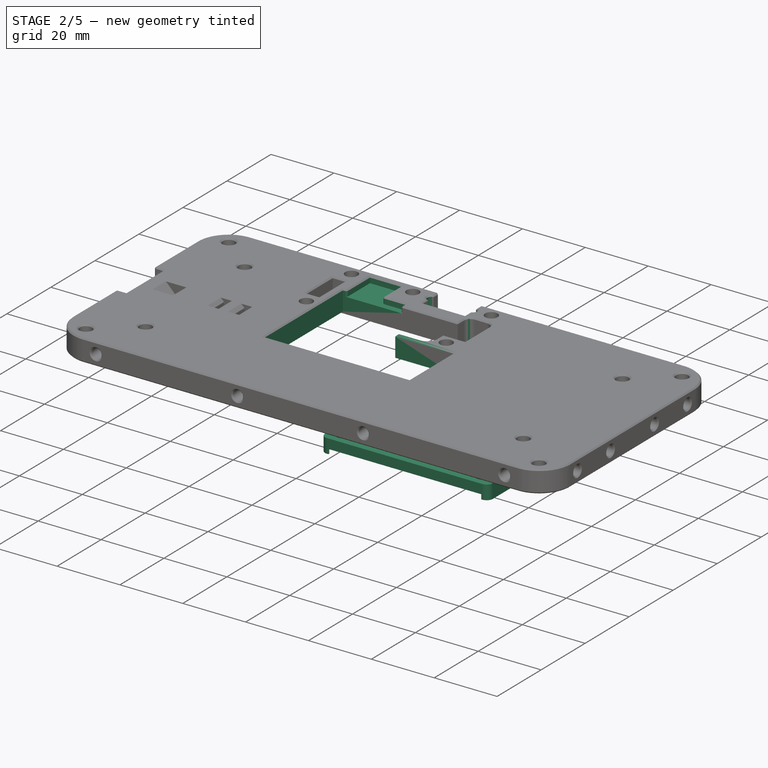
[diagram: stage 2 of 5 — iso view after this stage's code; geometry added in this stage tinted green]
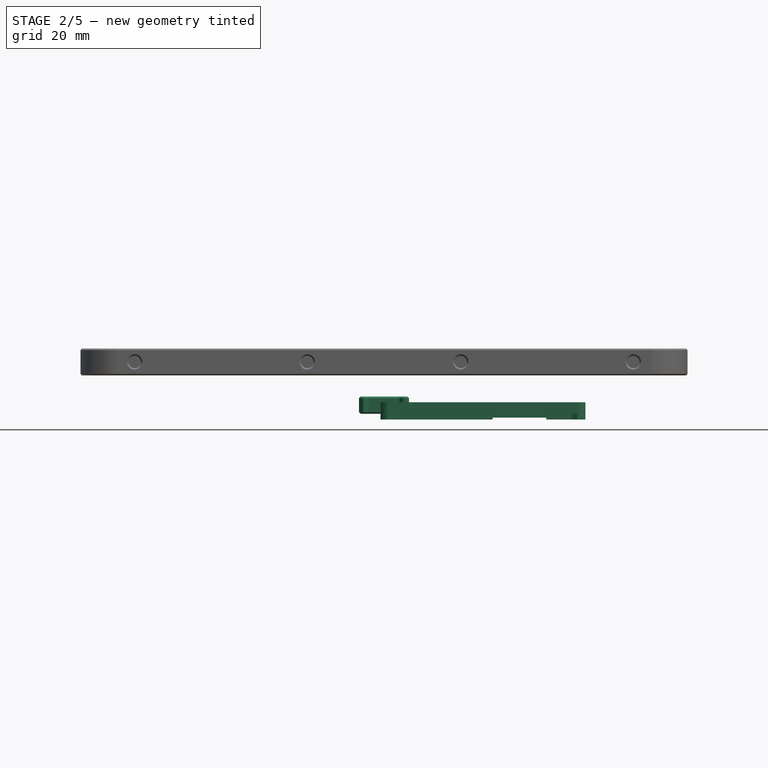
[diagram: stage 2 of 5 — front view after this stage's code; geometry added in this stage tinted green]
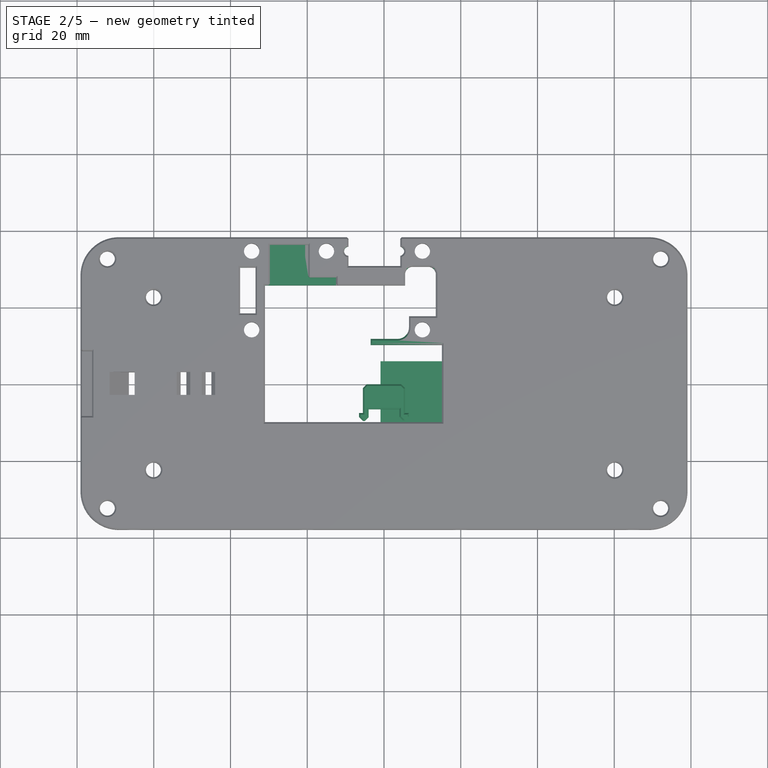
[diagram: stage 2 of 5 — top view after this stage's code; geometry added in this stage tinted green]
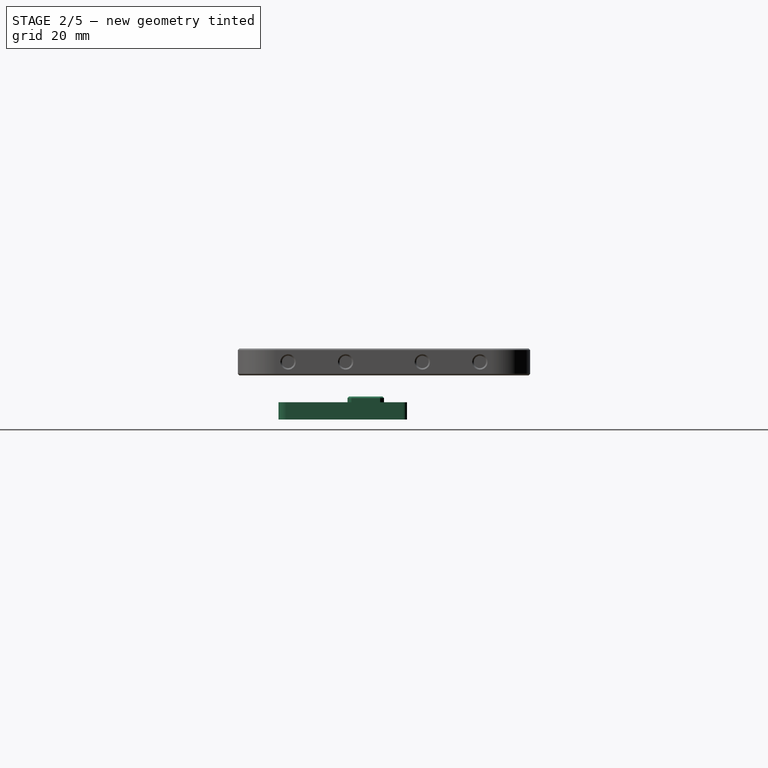
[diagram: stage 2 of 5 — right view after this stage's code; geometry added in this stage tinted green]
FEATURE [PartDesign::Fillet] Fillet007
  Base = -> Pocket085 [Edge272,Edge158]
  BaseFeature = -> Pocket085
  Placement = pos=(0,0,10) rot=(0,0,1;0rad)
  Radius = 2
  SupportTransform = false
  UseAllEdges = false
FEATURE [Sketcher::SketchObject] Sketch109
  ExternalGeometry = -> [Fillet007]
  FullyConstrained = true
  MapMode = 5
  Placement = pos=(0,0,10.5) rot=(1,0,0;3.14159rad)
  Support = -> [Fillet007]
  sketch-geometry (4):
    g0: LineSegment StartX=6.5 StartY=-11.6 StartZ=0 EndX=-3.5 EndY=-11.6 EndZ=0
    g1: LineSegment StartX=-3.5 StartY=-11.6 StartZ=0 EndX=-3.5 EndY=-10.1 EndZ=0
    g2: LineSegment StartX=-3.5 StartY=-10.1 StartZ=0 EndX=6.5 EndY=-10.1 EndZ=0
    g3: LineSegment StartX=6.5 StartY=-10.1 StartZ=0 EndX=6.5 EndY=-11.6 EndZ=0
  constraints (11):
    c: Coincident(g0,g1)
    c: Coincident(g1,g2)
    c: Coincident(g2,g3)
    c: Coincident(g3,g0)
    c: Horizontal(g0)
    c: Horizontal(g2)
    c: Vertical(g1)
    c: Vertical(g3)
    c: Coincident(g0,g-3)
    c: Horizontal(g2,g-3)
    c: DistanceX(g2,g2) = 10
FEATURE [PartDesign::Pad] Pad028
  BaseFeature = -> Fillet007
  Direction = (1,1,1)
  Length = 6.5
  Length2 = 100
  Placement = pos=(0,0,10) rot=(0,0,1;0rad)
  Profile = -> Sketch109
  Refine = true
  Reversed = true
  Type = 0
FEATURE [PartDesign::Pocket] Pocket086
  BaseFeature = -> Pad028
  Direction = (1,1,1)
  Length = 12
  Length2 = 100
  Placement = pos=(0,0,10) rot=(0,0,1;0rad)
  Profile = -> Pad028 [Face144]
  Refine = true
  Type = 0
FEATURE [Sketcher::SketchObject] Sketch110
  ExternalGeometry = -> [Pocket086]
  FullyConstrained = true
  MapMode = 5
  Placement = pos=(0,0,10.5) rot=(1,0,0;3.14159rad)
  Support = -> [Pocket086]
  sketch-geometry (4):
    g0: LineSegment StartX=-31 StartY=-10.1 StartZ=0 EndX=-27.1 EndY=-10.1 EndZ=0
    g1: LineSegment StartX=-27.1 StartY=-10.1 StartZ=0 EndX=-27.1 EndY=10.1 EndZ=0
    g2: LineSegment StartX=-27.1 StartY=10.1 StartZ=0 EndX=-31 EndY=10.1 EndZ=0
    g3: LineSegment StartX=-31 StartY=10.1 StartZ=0 EndX=-31 EndY=-10.1 EndZ=0
  constraints (10):
    c: Coincident(g0,g1)
    c: Coincident(g1,g2)
    c: Coincident(g2,g3)
    c: Coincident(g3,g0)
    c: Horizontal(g0)
    c: Horizontal(g2)
    c: Vertical(g1)
    c: Vertical(g3)
    c: Coincident(g0,g-5)
    c: Coincident(g1,g-4)
FEATURE [PartDesign::Pocket] Pocket087
  BaseFeature = -> Pocket086
  Direction = (1,1,1)
  Length = 5
  Length2 = 100
  Placement = pos=(0,0,10) rot=(0,0,1;0rad)
  Profile = -> Sketch110
  Type = 1
FEATURE [Sketcher::SketchObject] Sketch111
  ExternalGeometry = -> [Pocket087]
  FullyConstrained = true
  MapMode = 5
  Placement = pos=(0,0,13) rot=(1,0,0;3.14159rad)
  Support = -> [Pocket087]
  sketch-geometry (6):
    g0: LineSegment StartX=-28.6 StartY=11.6 StartZ=0 EndX=-32.5 EndY=11.6 EndZ=0
    g1: LineSegment StartX=-32.5 StartY=11.6 StartZ=0 EndX=-32.5 EndY=-10.1 EndZ=0
    g2: LineSegment StartX=-32.5 StartY=-10.1 StartZ=0 EndX=-31 EndY=-10.1 EndZ=0
    g3: LineSegment StartX=-31 StartY=-10.1 StartZ=0 EndX=-31 EndY=10.1 EndZ=0
    g4: LineSegment StartX=-31 StartY=10.1 StartZ=0 EndX=-28.6 EndY=10.1 EndZ=0
    g5: LineSegment StartX=-28.6 StartY=10.1 StartZ=0 EndX=-28.6 EndY=11.6 EndZ=0
  constraints (14):
    c: Coincident(g-3,g0)
    c: Horizontal(g0)
    c: Coincident(g0,g1)
    c: Vertical(g1)
    c: Coincident(g1,g2)
    c: Coincident(g2,g-4)
    c: Coincident(g2,g3)
    c: Coincident(g3,g-4)
    c: Coincident(g3,g4)
    c: Coincident(g4,g-3)
    c: Coincident(g4,g5)
    c: Coincident(g5,g0)
    c: Horizontal(g2)
    c: Equal(g5,g2)
FEATURE [PartDesign::Pad] Pad029
  BaseFeature = -> Pocket087
  Direction = (1,1,1)
  Length = 2.5
  Length2 = 100
  Placement = pos=(0,0,10) rot=(0,0,1;0rad)
  Profile = -> Sketch111
  Refine = true
  Type = 0
FEATURE [Sketcher::SketchObject] Sketch112
  ExternalGeometry = -> [Pad029]
  FullyConstrained = true
  MapMode = 5
  Placement = pos=(0,0,13) rot=(1,0,0;3.14159rad)
  Support = -> [Pad029]
  sketch-geometry (10):
    g0: LineSegment StartX=-31 StartY=-10.1 StartZ=0 EndX=-38 EndY=-10.1 EndZ=0
    g1: LineSegment StartX=-38 StartY=-10.1 StartZ=0 EndX=-38 EndY=-17.5 EndZ=0
    g2: LineSegment StartX=-38 StartY=-17.5 StartZ=0 EndX=-31 EndY=-17.5 EndZ=0
    g3: LineSegment StartX=-31 StartY=-17.5 StartZ=0 EndX=-31 EndY=-10.1 EndZ=0
    g4: LineSegment StartX=6.5 StartY=-17.5 StartZ=0 EndX=13.5 EndY=-17.5 EndZ=0
    g5: LineSegment StartX=13.5 StartY=-17.5 StartZ=0 EndX=13.5 EndY=-11.6 EndZ=0
    g6: LineSegment StartX=13.5 StartY=-11.6 StartZ=0 EndX=6.5 EndY=-11.6 EndZ=0
    g7: LineSegment StartX=6.5 StartY=-11.6 StartZ=0 EndX=6.5 EndY=-17.5 EndZ=0
    g8: Circle CenterX=-34.5 CenterY=-14 CenterZ=0 NormalX=0 NormalY=0 NormalZ=1 AngleXU=0 Radius=2
    g9: Circle CenterX=10 CenterY=-14 CenterZ=0 NormalX=0 NormalY=0 NormalZ=1 AngleXU=0 Radius=2
  constraints (26):
    c: Coincident(g0,g1)
    c: Coincident(g1,g2)
    c: Coincident(g2,g3)
    c: Coincident(g3,g0)
    c: Horizontal(g0)
    c: Horizontal(g2)
    c: Vertical(g1)
    c: Vertical(g3)
    c: Coincident(g0,g-3)
    c: Coincident(g4,g5)
    c: Coincident(g5,g6)
    c: Coincident(g6,g7)
    c: Coincident(g7,g4)
    c: Horizontal(g4)
    c: Horizontal(g6)
    c: Vertical(g5)
    c: Vertical(g7)
    c: Coincident(g4,g-4)
    c: Vertical(g-4,g4)
    c: Horizontal(g5,g-7)
    c: DistanceY(g1,g-6) = 3.5
    c: DistanceX(g0,g-6) = 3.5
    c: Coincident(g8,g-6)
    c: Coincident(g9,g-5)
    c: Equal(g9,g-5)
    c: Equal(g-5,g8)
FEATURE [PartDesign::Pad] Pad030
  BaseFeature = -> Pad029
  Direction = (1,1,1)
  Length = 2.5
  Length2 = 100
  Placement = pos=(0,0,10) rot=(0,0,1;0rad)
  Profile = -> Sketch112
  Refine = true
  Type = 0
FEATURE [PartDesign::Fillet] Fillet008
  Base = -> Pad030 [Edge431,Edge182,Edge423]
  BaseFeature = -> Pad030
  Placement = pos=(0,0,10) rot=(0,0,1;0rad)
  Radius = 3
  SupportTransform = false
  UseAllEdges = false
FEATURE [Sketcher::SketchObject] Sketch113
  ExternalGeometry = -> [Fillet008]
  FullyConstrained = true
  MapMode = 5
  Placement = pos=(0,0,17) rot=(0,0,1;0rad)
  Support = -> [Fillet008]
  sketch-geometry (8):
    g0: LineSegment StartX=-27.5 StartY=-10.1 StartZ=0 EndX=15.1 EndY=-10.1 EndZ=0
    g1: LineSegment StartX=15.1 StartY=-10.1 StartZ=0 EndX=15.1 EndY=10.1 EndZ=0
    g2: LineSegment StartX=15.1 StartY=10.1 StartZ=0 EndX=-3.5 EndY=10.1 EndZ=0
    g3: LineSegment StartX=-3.5 StartY=10.1 StartZ=0 EndX=-3.5 EndY=10.5 EndZ=0
    g4: LineSegment StartX=-3.5 StartY=10.5 StartZ=0 EndX=15.5 EndY=10.5 EndZ=0
    g5: LineSegment StartX=15.5 StartY=10.5 StartZ=0 EndX=15.5 EndY=-10.5 EndZ=0
    g6: LineSegment StartX=15.5 StartY=-10.5 StartZ=0 EndX=-27.5 EndY=-10.5 EndZ=0
    g7: LineSegment StartX=-27.5 StartY=-10.5 StartZ=0 EndX=-27.5 EndY=-10.1 EndZ=0
  constraints (16):
    c: Coincident(g-3,g0)
    c: Coincident(g0,g-7)
    c: Coincident(g0,g1)
    c: Coincident(g1,g-7)
    c: Coincident(g1,g2)
    c: Coincident(g2,g-5)
    c: Coincident(g2,g3)
    c: Coincident(g3,g-5)
    c: Coincident(g3,g4)
    c: Coincident(g4,g-6)
    c: Coincident(g4,g5)
    c: Coincident(g5,g-6)
    c: Coincident(g5,g6)
    c: Coincident(g6,g-4)
    c: Coincident(g6,g7)
    c: Coincident(g7,g0)
FEATURE [PartDesign::Pad] Pad031
  BaseFeature = -> Fillet008
  Direction = (1,1,1)
  Length = 2
  Length2 = 100
  Placement = pos=(0,0,10) rot=(0,0,1;0rad)
  Profile = -> Sketch113
  Refine = true
  Reversed = true
  Type = 0
FEATURE [PartDesign::Chamfer] Chamfer036004029
  Angle = 45
  Base = -> Pad031 [Edge56,Edge51,Edge48,Edge37,Edge30,Edge23,Edge29,Edge34,Edge525,Edge524,Edge523,Edge522,Edge67,Edge64,Edge59,Edge135,Edge143,Edge145,Edge140]
  BaseFeature = -> Pad031
  ChamferType = 0
  FlipDirection = false
  Placement = pos=(0,0,10) rot=(0,0,1;0rad)
  Size = 0.4
  Size2 = 1
  SupportTransform = false
  UseAllEdges = false
FEATURE [PartDesign::Chamfer] Chamfer036004030
  Angle = 45
  Base = -> Chamfer036004029 [Edge62,Edge63,Edge64,Edge184,Edge185,Edge186,Edge187,Edge183,Edge179,Edge180,Edge181,Edge176]
  BaseFeature = -> Chamfer036004029
  ChamferType = 0
  FlipDirection = false
  Placement = pos=(0,0,10) rot=(0,0,1;0rad)
  Size = 0.4
  Size2 = 1
  SupportTransform = false
  UseAllEdges = false
FEATURE [Sketcher::SketchObject] Sketch114
  ExternalGeometry = -> [Chamfer036004030]
  FullyConstrained = true
  MapMode = 5
  Placement = pos=(0,0,13) rot=(1,0,0;3.14159rad)
  Support = -> [Chamfer036004030]
  sketch-geometry (8):
    g0: LineSegment StartX=-38 StartY=-17.5 StartZ=0 EndX=-31 EndY=-17.5 EndZ=0
    g1: LineSegment StartX=-31 StartY=-17.5 StartZ=0 EndX=-31 EndY=-18.25 EndZ=0
    g2: LineSegment StartX=-31 StartY=-18.25 StartZ=0 EndX=-38 EndY=-18.25 EndZ=0
    g3: LineSegment StartX=-38 StartY=-18.25 StartZ=0 EndX=-38 EndY=-17.5 EndZ=0
    g4: LineSegment StartX=16.6 StartY=-11.6 StartZ=0 EndX=13.5 EndY=-11.6 EndZ=0
    g5: LineSegment StartX=13.5 StartY=-11.6 StartZ=0 EndX=13.5 EndY=-17.5 EndZ=0
    g6: LineSegment StartX=13.5 StartY=-17.5 StartZ=0 EndX=16.6 EndY=-17.5 EndZ=0
    g7: LineSegment StartX=16.6 StartY=-17.5 StartZ=0 EndX=16.6 EndY=-11.6 EndZ=0
  constraints (21):
    c: Coincident(g0,g1)
    c: Coincident(g1,g2)
    c: Coincident(g2,g3)
    c: Coincident(g3,g0)
    c: Horizontal(g0)
    c: Horizontal(g2)
    c: Vertical(g1)
    c: Vertical(g3)
    c: Coincident(g0,g-6)
    c: PointOnObject(g1,g-7)
    c: Coincident(g4,g5)
    c: Coincident(g5,g6)
    c: Coincident(g6,g7)
    c: Coincident(g7,g4)
    c: Horizontal(g4)
    c: Horizontal(g6)
    c: Vertical(g5)
    c: Vertical(g7)
    c: Coincident(g4,g-3)
    c: Coincident(g5,g-4)
    c: Horizontal(g-5,g1)
FEATURE [PartDesign::Pad] Pad032
  BaseFeature = -> Chamfer036004030
  Direction = (1,1,1)
  Length = 2.5
  Length2 = 100
  Placement = pos=(0,0,10) rot=(0,0,1;0rad)
  Profile = -> Sketch114
  Refine = true
  Type = 0
FEATURE [Sketcher::SketchObject] Sketch115
  ExternalGeometry = -> [Pad032]
  FullyConstrained = true
  MapMode = 5
  Placement = pos=(0,0,13) rot=(1,0,0;3.14159rad)
  Support = -> [Pad032]
  sketch-geometry (8):
    g0: LineSegment StartX=-33.5 StartY=-25.5 StartZ=0 EndX=-31 EndY=-25.5 EndZ=0
    g1: LineSegment StartX=-31 StartY=-25.5 StartZ=0 EndX=-31 EndY=-18.25 EndZ=0
    g2: LineSegment StartX=-31 StartY=-18.25 StartZ=0 EndX=-33.5 EndY=-18.25 EndZ=0
    g3: LineSegment StartX=-33.5 StartY=-18.25 StartZ=0 EndX=-33.5 EndY=-25.5 EndZ=0
    g4: LineSegment StartX=13.5 StartY=-25.5 StartZ=0 EndX=16.6 EndY=-25.5 EndZ=0
    g5: LineSegment StartX=16.6 StartY=-25.5 StartZ=0 EndX=16.6 EndY=-17.5 EndZ=0
    g6: LineSegment StartX=16.6 StartY=-17.5 StartZ=0 EndX=13.5 EndY=-17.5 EndZ=0
    g7: LineSegment StartX=13.5 StartY=-17.5 StartZ=0 EndX=13.5 EndY=-25.5 EndZ=0
  constraints (20):
    c: Coincident(g0,g1)
    c: Coincident(g1,g2)
    c: Coincident(g2,g3)
    c: Coincident(g3,g0)
    c: Horizontal(g0)
    c: Horizontal(g2)
    c: Vertical(g1)
    c: Vertical(g3)
    c: Coincident(g0,g-4)
    c: Coincident(g1,g-5)
    c: Coincident(g4,g5)
    c: Coincident(g5,g6)
    c: Coincident(g6,g7)
    c: Coincident(g7,g4)
    c: Horizontal(g4)
    c: Horizontal(g6)
    c: Vertical(g5)
    c: Vertical(g7)
    c: Coincident(g4,g-8)
    c: Coincident(g5,g-6)
FEATURE [PartDesign::Pad] Pad033
  BaseFeature = -> Pad032
  Direction = (1,1,1)
  Length = 2.5
  Length2 = 100
  Placement = pos=(0,0,10) rot=(0,0,1;0rad)
  Profile = -> Sketch115
  Refine = true
  Type = 0
FEATURE [Sketcher::SketchObject] Sketch116
  ExternalGeometry = -> [Pad033]
  FullyConstrained = true
  MapMode = 5
  Placement = pos=(0,0,10.5) rot=(1,0,0;3.14159rad)
  Support = -> [Pad033]
  sketch-geometry (4):
    g0: LineSegment StartX=-38 StartY=-10.1 StartZ=0 EndX=-32.5 EndY=-10.1 EndZ=0
    g1: LineSegment StartX=-32.5 StartY=-10.1 StartZ=0 EndX=-32.5 EndY=11.6 EndZ=0
    g2: LineSegment StartX=-32.5 StartY=11.6 StartZ=0 EndX=-38 EndY=11.6 EndZ=0
    g3: LineSegment StartX=-38 StartY=11.6 StartZ=0 EndX=-38 EndY=-10.1 EndZ=0
  constraints (10):
    c: Coincident(g0,g1)
    c: Coincident(g1,g2)
    c: Coincident(g2,g3)
    c: Coincident(g3,g0)
    c: Horizontal(g0)
    c: Horizontal(g2)
    c: Vertical(g1)
    c: Vertical(g3)
    c: Coincident(g0,g-4)
    c: Coincident(g1,g-3)
FEATURE [PartDesign::Pad] Pad034
  BaseFeature = -> Pad033
  Direction = (1,1,1)
  Length = 2.5
  Length2 = 100
  Placement = pos=(0,0,10) rot=(0,0,1;0rad)
  Profile = -> Sketch116
  Refine = true
  Reversed = true
  Type = 0
FEATURE [Sketcher::SketchObject] Sketch117
  ExternalGeometry = -> [Pad034]
  FullyConstrained = true
  MapMode = 5
  Placement = pos=(0,0,10) rot=(1,0,0;3.14159rad)
  Support = -> [Pad034]
  sketch-geometry (4):
    g0: LineSegment StartX=-37.5 StartY=-30.25 StartZ=0 EndX=-44.5 EndY=-30.25 EndZ=0
    g1: LineSegment StartX=-44.5 StartY=-30.25 StartZ=0 EndX=-44.5 EndY=-25.5 EndZ=0
    g2: LineSegment StartX=-44.5 StartY=-25.5 StartZ=0 EndX=-37.5 EndY=-25.5 EndZ=0
    g3: LineSegment StartX=-37.5 StartY=-25.5 StartZ=0 EndX=-37.5 EndY=-30.25 EndZ=0
  constraints (11):
    c: Coincident(g0,g1)
    c: Coincident(g1,g2)
    c: Coincident(g2,g3)
    c: Coincident(g3,g0)
    c: Horizontal(g0)
    c: Horizontal(g2)
    c: Vertical(g1)
    c: Vertical(g3)
    c: Coincident(g0,g-3)
    c: PointOnObject(g1,g-4)
    c: DistanceX(g2,g2) = 7
FEATURE [PartDesign::Pocket] Pocket088
  BaseFeature = -> Pad034
  Direction = (1,1,1)
  Length = 3
  Length2 = 100
  Placement = pos=(0,0,10) rot=(0,0,1;0rad)
  Profile = -> Sketch117
  Refine = true
  Type = 0
FEATURE [PartDesign::Chamfer] Chamfer036004031
  Angle = 45
  Base = -> Pocket088 [Edge202,Edge198,Edge200,Edge206,Edge204]
  BaseFeature = -> Pocket088
  ChamferType = 0
  FlipDirection = false
  Placement = pos=(0,0,10) rot=(0,0,1;0rad)
  Size = 0.4
  Size2 = 1
  SupportTransform = false
  UseAllEdges = false
FEATURE [Sketcher::SketchObject] Sketch118
  FullyConstrained = true
  MapMode = 5
  Placement = pos=(0,0,17) rot=(0,0,1;0rad)
  Support = -> [Chamfer036004031]
  sketch-geometry (2):
    g0: Circle CenterX=-9.15 CenterY=34.5 CenterZ=0 NormalX=0 NormalY=0 NormalZ=1 AngleXU=0 Radius=1.25
    g1: Circle CenterX=4 CenterY=34.5 CenterZ=0 NormalX=0 NormalY=0 NormalZ=1 AngleXU=0 Radius=1.25
  constraints (6):
    c: Horizontal(g1,g0)
    c: DistanceX(g0,g1) = 13.15
    c: DistanceX(g-1,g1) = 4
    c: DistanceY(g-1,g1) = 34.5
    c: Equal(g1,g0)
    c: Radius(g0) = 1.25
FEATURE [PartDesign::Pocket] Pocket089
  BaseFeature = -> Chamfer036004031
  Direction = (1,1,1)
  Length = 5
  Length2 = 100
  Placement = pos=(0,0,10) rot=(0,0,1;0rad)
  Profile = -> Sketch118
  Type = 1
FEATURE [PartDesign::Pocket] Pocket090
  BaseFeature = -> Pocket089
  Direction = (1,1,1)
  Length = 5
  Length2 = 100
  Placement = pos=(0,0,10) rot=(0,0,1;0rad)
  Profile = -> Pocket089 [Face173]
  Refine = true
  Type = 1
FEATURE [Sketcher::SketchObject] Sketch119
  ExternalGeometry = -> [Pocket090]
  FullyConstrained = true
  MapMode = 5
  Placement = pos=(0,0,13) rot=(1,0,0;3.14159rad)
  Support = -> [Pocket090]
  sketch-geometry (6):
    g0: LineSegment StartX=-38 StartY=11.6 StartZ=0 EndX=-38 EndY=17.1 EndZ=0
    g1: LineSegment StartX=-38 StartY=17.1 StartZ=0 EndX=22.1 EndY=17.1 EndZ=0
    g2: LineSegment StartX=22.1 StartY=17.1 StartZ=0 EndX=22.1 EndY=-25.5 EndZ=0
    g3: LineSegment StartX=22.1 StartY=-25.5 StartZ=0 EndX=16.6 EndY=-25.5 EndZ=0
    g4: LineSegment StartX=16.6 StartY=-25.5 StartZ=0 EndX=16.6 EndY=11.6 EndZ=0
    g5: LineSegment StartX=16.6 StartY=11.6 StartZ=0 EndX=-38 EndY=11.6 EndZ=0
  constraints (15):
    c: Coincident(g-3,g0)
    c: Vertical(g0)
    c: Coincident(g0,g1)
    c: Horizontal(g1)
    c: Coincident(g1,g2)
    c: PointOnObject(g2,g-7)
    c: Vertical(g2)
    c: Coincident(g2,g3)
    c: Coincident(g3,g-4)
    c: Coincident(g3,g4)
    c: Coincident(g4,g-4)
    c: Coincident(g4,g5)
    c: Coincident(g5,g0)
    c: DistanceY(g-6,g0) = 7
    c: DistanceX(g-5,g1) = 7
FEATURE [PartDesign::Pad] Pad035
  BaseFeature = -> Pocket090
  Direction = (1,1,1)
  Length = 2.5
  Length2 = 100
  Placement = pos=(0,0,10) rot=(0,0,1;0rad)
  Profile = -> Sketch119
  Refine = true
  Type = 0
FEATURE [PartDesign::Body] Body014  label="top-usb-pcb"
  BaseFeature = -> Fillet002
  Group = -> [Clone002,Sketch078,Pocket064,Chamfer036004011,Chamfer036004012,Sketch121,Pocket092]
  Origin = -> Origin014
  Placement = pos=(0,0,17) rot=(0,0,1;0rad)
  Tip = -> Pocket092
FEATURE [Sketcher::SketchObject] Sketch122
  ExternalGeometry = -> [Pad035]
  FullyConstrained = true
  MapMode = 5
  Placement = pos=(0,0,10) rot=(1,0,0;3.14159rad)
  Support = -> [Pad035]
  sketch-geometry (4):
    g0: LineSegment StartX=-12.5 StartY=-25.6 StartZ=0 EndX=-31 EndY=-25.6 EndZ=0
    g1: LineSegment StartX=-31 StartY=-25.6 StartZ=0 EndX=-31 EndY=-25.5 EndZ=0
    g2: LineSegment StartX=-31 StartY=-25.5 StartZ=0 EndX=-12.5 EndY=-25.5 EndZ=0
    g3: LineSegment StartX=-12.5 StartY=-25.5 StartZ=0 EndX=-12.5 EndY=-25.6 EndZ=0
  constraints (10):
    c: Coincident(g0,g1)
    c: Coincident(g1,g2)
    c: Coincident(g2,g3)
    c: Coincident(g3,g0)
    c: Horizontal(g0)
    c: Horizontal(g2)
    c: Vertical(g1)
    c: Vertical(g3)
    c: Coincident(g0,g-5)
    c: Coincident(g1,g-4)
FEATURE [PartDesign::Pocket] Pocket093
  BaseFeature = -> Pad035
  Direction = (1,1,1)
  Length = 3
  Length2 = 100
  Placement = pos=(0,0,10) rot=(0,0,1;0rad)
  Profile = -> Sketch122
  Refine = true
  Type = 0
FEATURE [PartDesign::Pocket] Pocket094
  BaseFeature = -> Pocket093
  Direction = (1,1,1)
  Length = 0.1
  Length2 = 100
  Placement = pos=(0,0,10) rot=(0,0,1;0rad)
  Profile = -> Pocket093 [Face110]
  Refine = true
  Type = 0
FEATURE [Sketcher::SketchObject] Sketch123
  FullyConstrained = true
  MapMode = 5
  Support = -> [XY_Plane046]
  sketch-geometry (9):
    g0: LineSegment StartX=-0.9 StartY=0 StartZ=0 EndX=52.5 EndY=0 EndZ=0
    g1: LineSegment StartX=52.5 StartY=0 StartZ=0 EndX=52.5 EndY=-27.5 EndZ=0
    g2: LineSegment StartX=52.5 StartY=-27.5 StartZ=0 EndX=-0.9 EndY=-27.5 EndZ=0
    g3: LineSegment StartX=-0.9 StartY=-27.5 StartZ=0 EndX=-0.9 EndY=0 EndZ=0
    g4: Circle CenterX=3.5 CenterY=-3.5 CenterZ=0 NormalX=0 NormalY=0 NormalZ=1 AngleXU=0 Radius=1.65
    g5: Circle CenterX=3.5 CenterY=-24 CenterZ=0 NormalX=0 NormalY=0 NormalZ=1 AngleXU=0 Radius=1.65
    g6: Circle CenterX=48 CenterY=-3.5 CenterZ=0 NormalX=0 NormalY=0 NormalZ=1 AngleXU=0 Radius=1.65
    g7: Circle CenterX=48 CenterY=-24 CenterZ=0 NormalX=0 NormalY=0 NormalZ=1 AngleXU=0 Radius=1.65
    g8: Circle CenterX=23 CenterY=-3.5 CenterZ=0 NormalX=0 NormalY=0 NormalZ=1 AngleXU=0 Radius=1.65
  constraints (27):
    c: Coincident(g0,g1)
    c: Coincident(g1,g2)
    c: Coincident(g2,g3)
    c: Coincident(g3,g0)
    c: Horizontal(g0)
    c: Horizontal(g2)
    c: Vertical(g1)
    c: Vertical(g3)
    c: PointOnObject(g0,g-1)
    c: DistanceX(g0,g-1) = 0.9
    c: DistanceX(g-1,g0) = 52.5
    c: DistanceY(g1,g1) = 27.5
    c: Horizontal(g7,g5)
    c: Horizontal(g4,g6)
    c: Vertical(g7,g6)
    c: Vertical(g5,g4)
    c: DistanceX(g4,g6) = 44.5
    c: DistanceY(g5,g4) = 20.5
    c: DistanceX(g-1,g4) = 3.5
    c: DistanceY(g4,g-1) = 3.5
    c: Radius(g6) = 1.65
    c: Equal(g6,g7)
    c: Equal(g7,g5)
    c: Equal(g5,g4)
    c: Horizontal(g8,g4)
    c: Equal(g4,g8)
    c: DistanceX(g8,g6) = 25
FEATURE [PartDesign::Pad] Pad036
  Direction = (1,1,1)
  Length = 3
  Length2 = 100
  Profile = -> Sketch123
  Type = 0
FEATURE [Sketcher::SketchObject] Sketch124
  ExternalGeometry = -> [Pad036]
  FullyConstrained = true
  MapMode = 5
  Placement = pos=(0,0,0) rot=(1,0,0;3.14159rad)
  Support = -> [Pad036]
  sketch-geometry (4):
    g0: LineSegment StartX=52.5 StartY=0 StartZ=0 EndX=18.1 EndY=0 EndZ=0
    g1: LineSegment StartX=18.1 StartY=0 StartZ=0 EndX=18.1 EndY=-6 EndZ=0
    g2: LineSegment StartX=18.1 StartY=-6 StartZ=0 EndX=52.5 EndY=-6 EndZ=0
    g3: LineSegment StartX=52.5 StartY=-6 StartZ=0 EndX=52.5 EndY=0 EndZ=0
  constraints (11):
    c: Coincident(g0,g1)
    c: Coincident(g1,g2)
    c: Coincident(g2,g3)
    c: Coincident(g3,g0)
    c: Horizontal(g0)
    c: Horizontal(g2)
    c: Vertical(g1)
    c: Vertical(g3)
    c: Coincident(g0,g-4)
    c: DistanceX(g0,g-5) = 4.9
    c: DistanceY(g3,g3) = 6
FEATURE [PartDesign::Pad] Pad037
  BaseFeature = -> Pad036
  Direction = (1,1,1)
  Length = 3
  Length2 = 100
  Profile = -> Sketch124
  Refine = true
  Reversed = true
  Type = 0
FEATURE [Sketcher::SketchObject] Sketch125
  ExternalGeometry = -> [Pad037]
  FullyConstrained = true
  MapMode = 5
  Placement = pos=(0,0,0) rot=(1,0,0;3.14159rad)
  Support = -> [Pad037]
  sketch-geometry (8):
    g0: LineSegment StartX=-0.9 StartY=27.5 StartZ=0 EndX=-0.15 EndY=27.5 EndZ=0
    g1: LineSegment StartX=-0.15 StartY=27.5 StartZ=0 EndX=-0.15 EndY=0 EndZ=0
    g2: LineSegment StartX=-0.15 StartY=0 StartZ=0 EndX=-0.9 EndY=0 EndZ=0
    g3: LineSegment StartX=-0.9 StartY=0 StartZ=0 EndX=-0.9 EndY=27.5 EndZ=0
    g4: LineSegment StartX=52.5 StartY=27.5 StartZ=0 EndX=51.75 EndY=27.5 EndZ=0
    g5: LineSegment StartX=51.75 StartY=27.5 StartZ=0 EndX=51.75 EndY=0 EndZ=0
    g6: LineSegment StartX=51.75 StartY=0 StartZ=0 EndX=52.5 EndY=0 EndZ=0
    g7: LineSegment StartX=52.5 StartY=0 StartZ=0 EndX=52.5 EndY=27.5 EndZ=0
  constraints (22):
    c: Coincident(g0,g1)
    c: Coincident(g1,g2)
    c: Coincident(g2,g3)
    c: Coincident(g3,g0)
    c: Horizontal(g0)
    c: Horizontal(g2)
    c: Vertical(g1)
    c: Vertical(g3)
    c: Coincident(g0,g-3)
    c: PointOnObject(g1,g-1)
    c: Coincident(g4,g5)
    c: Coincident(g5,g6)
    c: Coincident(g6,g7)
    c: Coincident(g7,g4)
    c: Horizontal(g4)
    c: Horizontal(g6)
    c: Vertical(g5)
    c: Vertical(g7)
    c: Coincident(g4,g-4)
    c: PointOnObject(g5,g-1)
    c: Equal(g0,g4)
    c: DistanceX(g4,g4) = 0.75
FEATURE [PartDesign::Pad] Pad038
  BaseFeature = -> Pad037
  Direction = (1,1,1)
  Length = 1.5
  Length2 = 100
  Profile = -> Sketch125
  Type = 0
FEATURE [Sketcher::SketchObject] Sketch126
  ExternalGeometry = -> [Pad038]
  FullyConstrained = false
  MapMode = 5
  Placement = pos=(0,0,0) rot=(1,0,0;3.14159rad)
  Support = -> [Pad038]
  sketch-geometry (16):
    g0: LineSegment StartX=1 StartY=8.25 StartZ=0 EndX=4 EndY=8.25 EndZ=0
    g1: LineSegment StartX=4 StartY=8.25 StartZ=0 EndX=4 EndY=19.25 EndZ=0
    g2: LineSegment StartX=4 StartY=19.25 StartZ=0 EndX=1 EndY=19.25 EndZ=0
    g3: LineSegment StartX=1 StartY=19.25 StartZ=0 EndX=1 EndY=8.25 EndZ=0
    g4: LineSegment StartX=8.5 StartY=16 StartZ=0 EndX=23.75 EndY=16 EndZ=0
    g5: LineSegment StartX=23.75 StartY=16 StartZ=0 EndX=23.75 EndY=19 EndZ=0
    g6: LineSegment StartX=23.75 StartY=19 StartZ=0 EndX=8.5 EndY=19 EndZ=0
    g7: LineSegment StartX=8.5 StartY=19 StartZ=0 EndX=8.5 EndY=16 EndZ=0
    g8: LineSegment StartX=28.3293 StartY=1.26476 StartZ=0 EndX=42.6377 EndY=1.26476 EndZ=0
    g9: LineSegment StartX=42.6377 StartY=1.26476 StartZ=0 EndX=42.6377 EndY=7.79541 EndZ=0
    g10: LineSegment StartX=42.6377 StartY=7.79541 StartZ=0 EndX=28.3293 EndY=7.79541 EndZ=0
    g11: LineSegment StartX=28.3293 StartY=7.79541 StartZ=0 EndX=28.3293 EndY=1.26476 EndZ=0
    g12: LineSegment StartX=25.5 StartY=26.25 StartZ=0 EndX=43.5 EndY=26.25 EndZ=0
    g13: LineSegment StartX=43.5 StartY=26.25 StartZ=0 EndX=43.5 EndY=16 EndZ=0
    g14: LineSegment StartX=43.5 StartY=16 StartZ=0 EndX=25.5 EndY=16 EndZ=0
    g15: LineSegment StartX=25.5 StartY=16 StartZ=0 EndX=25.5 EndY=26.25 EndZ=0
  constraints (44):
    c: Coincident(g0,g1)
    c: Coincident(g1,g2)
    c: Coincident(g2,g3)
    c: Coincident(g3,g0)
    c: Horizontal(g0)
    c: Horizontal(g2)
    c: Vertical(g1)
    c: Vertical(g3)
    c: Coincident(g4,g5)
    c: Coincident(g5,g6)
    c: Coincident(g6,g7)
    c: Coincident(g7,g4)
    c: Horizontal(g4)
    c: Horizontal(g6)
    c: Vertical(g5)
    c: Vertical(g7)
    c: Coincident(g8,g9)
    c: Coincident(g9,g10)
    c: Coincident(g10,g11)
    c: Coincident(g11,g8)
    c: Horizontal(g8)
    c: Horizontal(g10)
    c: Vertical(g9)
    c: Vertical(g11)
    c: Coincident(g12,g13)
    c: Coincident(g13,g14)
    c: Coincident(g14,g15)
    c: Coincident(g15,g12)
    c: Horizontal(g12)
    c: Horizontal(g14)
    c: Vertical(g13)
    c: Vertical(g15)
    c: DistanceX(g0,g0) = 3
    c: DistanceY(g1,g1) = 11
    c: DistanceY(g7,g7) = 3
    c: DistanceX(g4,g4) = 15.25
    c: DistanceY(g13,g13) = 10.25
    c: DistanceX(g14,g14) = 18
    c: DistanceX(g-1,g0) = 1
    c: DistanceY(g-1,g0) = 8.25
    c: DistanceY(g-1,g4) = 16
    c: DistanceX(g-1,g4) = 8.5
    c: DistanceX(g-1,g14) = 25.5
    c: DistanceY(g-1,g14) = 16
FEATURE [PartDesign::Pocket] Pocket095
  BaseFeature = -> Pad038
  Direction = (1,1,1)
  Length = 2
  Length2 = 100
  Profile = -> Sketch126
  Type = 0
FEATURE [Sketcher::SketchObject] Sketch127
  ExternalGeometry = -> [Pocket095]
  FullyConstrained = true
  MapMode = 5
  Placement = pos=(0,0,0) rot=(1,0,0;3.14159rad)
  Support = -> [Pocket095]
  sketch-geometry (6):
    g0: LineSegment StartX=28.3 StartY=-6 StartZ=0 EndX=42.3 EndY=-6 EndZ=0
    g1: LineSegment StartX=42.3 StartY=-6 StartZ=0 EndX=42.3 EndY=-2.5 EndZ=0
    g2: LineSegment StartX=42.3 StartY=-2.5 StartZ=0 EndX=28.3 EndY=-2.5 EndZ=0
    g3: LineSegment StartX=28.3 StartY=-2.5 StartZ=0 EndX=28.3 EndY=-6 EndZ=0
    g4: LineSegment StartX=18.1 StartY=-6 StartZ=0 EndX=28.3 EndY=-6 EndZ=0
    g5: LineSegment StartX=42.3 StartY=-6 StartZ=0 EndX=52.5 EndY=-6 EndZ=0
  constraints (16):
    c: Coincident(g0,g1)
    c: Coincident(g1,g2)
    c: Coincident(g2,g3)
    c: Coincident(g3,g0)
    c: Horizontal(g0)
    c: Horizontal(g2)
    c: Vertical(g1)
    c: Vertical(g3)
    c: PointOnObject(g0,g-5)
    c: DistanceX(g2,g2) = 14
    c: DistanceY(g1,g1) = 3.5
    c: Coincident(g4,g-5)
    c: Coincident(g4,g0)
    c: Coincident(g5,g0)
    c: Coincident(g5,g-5)
    c: Equal(g4,g5)
FEATURE [PartDesign::Pad] Pad039
  BaseFeature = -> Pocket095
  Direction = (1,1,1)
  Length = 1
  Length2 = 100
  Profile = -> Sketch127
  Refine = true
  Type = 0
FEATURE [Sketcher::SketchObject] Sketch128
  ExternalGeometry = -> [Pad039]
  FullyConstrained = true
  MapMode = 5
  Placement = pos=(0,0,0) rot=(1,0,0;3.14159rad)
  Support = -> [Pad039]
  sketch-geometry (8):
    g0: LineSegment StartX=18.1 StartY=-0.15 StartZ=0 EndX=52.5 EndY=-0.15 EndZ=0
    g1: LineSegment StartX=52.5 StartY=-0.15 StartZ=0 EndX=52.5 EndY=-6 EndZ=0
    g2: LineSegment StartX=52.5 StartY=-6 StartZ=0 EndX=42.3 EndY=-6 EndZ=0
    g3: LineSegment StartX=42.3 StartY=-6 StartZ=0 EndX=42.3 EndY=-2.5 EndZ=0
    g4: LineSegment StartX=42.3 StartY=-2.5 StartZ=0 EndX=28.3 EndY=-2.5 EndZ=0
    g5: LineSegment StartX=28.3 StartY=-2.5 StartZ=0 EndX=28.3 EndY=-6 EndZ=0
    g6: LineSegment StartX=28.3 StartY=-6 StartZ=0 EndX=18.1 EndY=-6 EndZ=0
    g7: LineSegment StartX=18.1 StartY=-6 StartZ=0 EndX=18.1 EndY=-0.15 EndZ=0
  constraints (18):
    c: PointOnObject(g0,g-7)
    c: PointOnObject(g0,g-6)
    c: Horizontal(g0)
    c: Coincident(g0,g1)
    c: Coincident(g1,g-6)
    c: Coincident(g1,g2)
    c: Coincident(g2,g-5)
    c: Coincident(g2,g3)
    c: Coincident(g3,g-5)
    c: Coincident(g3,g4)
    c: Coincident(g4,g-4)
    c: Coincident(g4,g5)
    c: Coincident(g5,g-3)
    c: Coincident(g5,g6)
    c: Coincident(g6,g-7)
    c: Coincident(g6,g7)
    c: Coincident(g7,g0)
    c: DistanceY(g0,g-7) = 0.15
FEATURE [PartDesign::Pad] Pad040
  BaseFeature = -> Pad039
  Direction = (1,1,1)
  Length = 1.5
  Length2 = 100
  Profile = -> Sketch128
  Type = 0
FEATURE [PartDesign::Pad] Pad041
  BaseFeature = -> Pad040
  Direction = (1,1,1)
  Length = 0.15
  Length2 = 100
  Profile = -> Pad040 [Face3]
  Refine = true
  Type = 0
FEATURE [Sketcher::SketchObject] Sketch129
  ExternalGeometry = -> [Pad041]
  FullyConstrained = true
  MapMode = 5
  Placement = pos=(0,0,0) rot=(1,0,0;3.14159rad)
  Support = -> [Pad041]
  sketch-geometry (12):
    g0: ArcOfCircle CenterX=3.5 CenterY=24 CenterZ=0 NormalX=0 NormalY=0 NormalZ=1 AngleXU=0 Radius=3.65 StartAngle=1.85848 EndAngle=3.14159
    g1: ArcOfCircle CenterX=48 CenterY=24 CenterZ=0 NormalX=0 NormalY=0 NormalZ=1 AngleXU=0 Radius=3.75 StartAngle=9e-16 EndAngle=1.20359
    g2: ArcOfCircle CenterX=48 CenterY=3.5 CenterZ=0 NormalX=0 NormalY=0 NormalZ=1 AngleXU=0 Radius=3.75 StartAngle=4.94385 EndAngle=6.28319
    g3: ArcOfCircle CenterX=3.5 CenterY=3.5 CenterZ=0 NormalX=0 NormalY=0 NormalZ=1 AngleXU=0 Radius=3.65 StartAngle=3.14159 EndAngle=4.42471
    g4: LineSegment StartX=-0.15 StartY=24 StartZ=0 EndX=-0.15 EndY=27.5 EndZ=0
    g5: LineSegment StartX=-0.15 StartY=27.5 StartZ=0 EndX=2.46438 EndY=27.5 EndZ=0
    g6: LineSegment StartX=51.75 StartY=24 StartZ=0 EndX=51.75 EndY=27.5 EndZ=0
    g7: LineSegment StartX=49.3463 StartY=27.5 StartZ=0 EndX=51.75 EndY=27.5 EndZ=0
    g8: LineSegment StartX=51.75 StartY=3.5 StartZ=0 EndX=51.75 EndY=-0.15 EndZ=0
    g9: LineSegment StartX=51.75 StartY=-0.15 StartZ=0 EndX=48.8602 EndY=-0.15 EndZ=0
    g10: LineSegment StartX=-0.15 StartY=3.5 StartZ=0 EndX=-0.15 EndY=8.4923e-12 EndZ=0
    g11: LineSegment StartX=-0.15 StartY=8.4923e-12 StartZ=0 EndX=2.46438 EndY=8.4923e-12 EndZ=0
  constraints (35):
    c: Coincident(g0,g-8)
    c: PointOnObject(g0,g-3)
    c: PointOnObject(g0,g-5)
    c: Coincident(g1,g-9)
    c: PointOnObject(g1,g-4)
    c: PointOnObject(g1,g-5)
    c: Coincident(g2,g-10)
    c: PointOnObject(g2,g-4)
    c: PointOnObject(g2,g-6)
    c: Coincident(g3,g-7)
    c: PointOnObject(g3,g-3)
    c: PointOnObject(g3,g-1)
    c: Horizontal(g3,g3)
    c: Horizontal(g2,g2)
    c: Horizontal(g1,g1)
    c: Horizontal(g0,g0)
    c: Coincident(g0,g4)
    c: Coincident(g4,g5)
    c: Coincident(g5,g0)
    c: Horizontal(g5)
    c: Vertical(g4)
    c: Coincident(g6,g1)
    c: Coincident(g6,g-5)
    c: Coincident(g7,g1)
    c: Coincident(g7,g6)
    c: Coincident(g2,g8)
    c: Coincident(g8,g9)
    c: Coincident(g9,g2)
    c: Horizontal(g9)
    c: Vertical(g8)
    c: Coincident(g3,g10)
    c: Coincident(g10,g11)
    c: Coincident(g11,g3)
    c: Horizontal(g11)
    c: Vertical(g10)
FEATURE [PartDesign::Pad] Pad042
  BaseFeature = -> Pad041
  Direction = (1,1,1)
  Length = 1.5
  Length2 = 100
  Profile = -> Sketch129
  Refine = true
  Type = 0
FEATURE [PartDesign::Fillet] Fillet009
  Base = -> Pad042 [Edge48,Edge44,Edge50]
  BaseFeature = -> Pad042
  Radius = 0.25
  SupportTransform = false
  UseAllEdges = false
FEATURE [PartDesign::Fillet] Fillet010
  Base = -> Fillet009 [Edge58,Edge60,Edge46]
  BaseFeature = -> Fillet009
  Radius = 2
  SupportTransform = false
  UseAllEdges = false
FEATURE [PartDesign::Fillet] Fillet011
  Base = -> Fillet010 [Edge67,Edge79]
  BaseFeature = -> Fillet010
  Radius = 1
  SupportTransform = false
  UseAllEdges = false
FEATURE [Sketcher::SketchObject] Sketch130
  ExternalGeometry = -> [Fillet011]
  FullyConstrained = true
  MapMode = 5
  Placement = pos=(0,0,-1.5) rot=(1,0,0;3.14159rad)
  Support = -> [Fillet011]
  sketch-geometry (4):
    g0: LineSegment StartX=28.3 StartY=-2.5 StartZ=0 EndX=42.3 EndY=-2.5 EndZ=0
    g1: LineSegment StartX=42.3 StartY=-2.5 StartZ=0 EndX=42.3 EndY=-0.15 EndZ=0
    g2: LineSegment StartX=42.3 StartY=-0.15 StartZ=0 EndX=28.3 EndY=-0.15 EndZ=0
    g3: LineSegment StartX=28.3 StartY=-0.15 StartZ=0 EndX=28.3 EndY=-2.5 EndZ=0
  constraints (11):
    c: Coincident(g0,g1)
    c: Coincident(g1,g2)
    c: Coincident(g2,g3)
    c: Coincident(g3,g0)
    c: Horizontal(g0)
    c: Horizontal(g2)
    c: Vertical(g1)
    c: Vertical(g3)
    c: Coincident(g0,g-4)
    c: PointOnObject(g1,g-3)
    c: Vertical(g1,g-4)
FEATURE [PartDesign::Pocket] Pocket096
  BaseFeature = -> Fillet011
  Direction = (0,0,1)
  Length = 1.5
  Length2 = 100
  Profile = -> Sketch130
  Refine = true
  Type = 0
FEATURE [Sketcher::SketchObject] Sketch131
  ExternalGeometry = -> [Pocket096]
  FullyConstrained = true
  MapMode = 5
  Placement = pos=(0,0,3) rot=(0,0,1;0rad)
  Support = -> [Pocket096]
  sketch-geometry (6):
    g0: ArcOfCircle CenterX=19.1 CenterY=5 CenterZ=0 NormalX=0 NormalY=0 NormalZ=1 AngleXU=0 Radius=1 StartAngle=1.5708 EndAngle=3.14159
    g1: ArcOfCircle CenterX=1.1 CenterY=-2 CenterZ=0 NormalX=0 NormalY=0 NormalZ=1 AngleXU=0 Radius=2 StartAngle=1.5708 EndAngle=3.14159
    g2: LineSegment StartX=1.1 StartY=-9.5e-14 StartZ=0 EndX=18.1 EndY=0 EndZ=0
    g3: LineSegment StartX=18.1 StartY=5 StartZ=0 EndX=18.1 EndY=0 EndZ=0
    g4: LineSegment StartX=19.1 StartY=6 StartZ=0 EndX=-0.9 EndY=6 EndZ=0
    g5: LineSegment StartX=-0.9 StartY=6 StartZ=0 EndX=-0.9 EndY=-2 EndZ=0
  constraints (17):
    c: Coincident(g0,g-4)
    c: Coincident(g1,g-3)
    c: Horizontal(g1,g1)
    c: Vertical(g1,g1)
    c: Horizontal(g0,g0)
    c: Vertical(g0,g0)
    c: Equal(g0,g-4)
    c: Equal(g1,g-3)
    c: Coincident(g2,g1)
    c: Coincident(g2,g-5)
    c: Coincident(g3,g0)
    c: Coincident(g3,g2)
    c: Coincident(g4,g0)
    c: Horizontal(g4)
    c: Coincident(g5,g4)
    c: Coincident(g5,g1)
    c: Vertical(g5)
FEATURE [PartDesign::Pad] Pad043
  BaseFeature = -> Pocket096
  Direction = (0,0,1)
  Length = 10
  Length2 = 10
  Profile = -> Sketch131
  ReferenceAxis = -> Sketch131 [N_Axis]
  Refine = true
  Type = 3
  UpToFace = -> Pocket096 [Face18]
FEATURE [Sketcher::SketchObject] Sketch132
  ExternalGeometry = -> [Pad043]
  FullyConstrained = true
  MapMode = 5
  Placement = pos=(0,0,-1.5) rot=(1,0,0;3.14159rad)
  Support = -> [Pad043]
  sketch-geometry (4):
    g0: ArcOfCircle CenterX=2.74 CenterY=2.74 CenterZ=0 NormalX=0 NormalY=0 NormalZ=1 AngleXU=0 Radius=2.89 StartAngle=3.14159 EndAngle=4.71239
    g1: LineSegment StartX=-0.15 StartY=3.5 StartZ=0 EndX=-0.15 EndY=2.74 EndZ=0
    g2: LineSegment StartX=-0.15 StartY=3.5 StartZ=0 EndX=2.74 EndY=3.5 EndZ=0
    g3: LineSegment StartX=2.74 StartY=3.5 StartZ=0 EndX=2.74 EndY=-0.15 EndZ=0
  constraints (12):
    c: Vertical(g0,g0)
    c: Horizontal(g0,g0)
    c: Radius(g0) = 2.89
    c: Vertical(g0,g-3)
    c: Horizontal(g0,g-4)
    c: Coincident(g1,g-3)
    c: Coincident(g1,g0)
    c: Coincident(g2,g1)
    c: Horizontal(g2)
    c: Coincident(g3,g2)
    c: Vertical(g3)
    c: Coincident(g3,g0)
FEATURE [PartDesign::Pocket] Pocket097
  BaseFeature = -> Pad043
  Direction = (0,0,1)
  Length = 0
  Length2 = 5
  Profile = -> Sketch132
  ReferenceAxis = -> Sketch132 [N_Axis]
  Refine = true
  Type = 3
  UpToFace = -> Pad043 [Face11]
FEATURE [PartDesign::Pocket] Pocket098
  BaseFeature = -> Pocket097
  Direction = (-5.6e-15,1,0)
  Length = 0.15
  Length2 = 5
  Profile = -> Pocket097 [Face28]
  Refine = true
  Type = 0
FEATURE [Sketcher::SketchObject] Sketch141
  FullyConstrained = true
  MapMode = 5
  Support = -> [XY_Plane047]
  sketch-geometry (12):
    g0: LineSegment StartX=-5.5 StartY=0 StartZ=0 EndX=5.5 EndY=0 EndZ=0
    g1: LineSegment StartX=-5.5 StartY=0 StartZ=0 EndX=-5.5 EndY=-7.5 EndZ=0
    g2: LineSegment StartX=5.5 StartY=0 StartZ=0 EndX=5.5 EndY=-7.5 EndZ=0
    g3: LineSegment StartX=5.5 StartY=-7.5 StartZ=0 EndX=6.5 EndY=-7.5 EndZ=0
    g4: LineSegment StartX=-5.5 StartY=-7.5 StartZ=0 EndX=-6.5 EndY=-7.5 EndZ=0
    g5: LineSegment StartX=-6.5 StartY=-7.5 StartZ=0 EndX=-6.5 EndY=-9.5 EndZ=0
    g6: LineSegment StartX=-6.5 StartY=-9.5 StartZ=0 EndX=-4 EndY=-9.5 EndZ=0
    g7: LineSegment StartX=-4 StartY=-9.5 StartZ=0 EndX=-4 EndY=-6.5 EndZ=0
    g8: LineSegment StartX=-4 StartY=-6.5 StartZ=0 EndX=4 EndY=-6.5 EndZ=0
    g9: LineSegment StartX=4 StartY=-6.5 StartZ=0 EndX=4 EndY=-9.5 EndZ=0
    g10: LineSegment StartX=4 StartY=-9.5 StartZ=0 EndX=6.5 EndY=-9.5 EndZ=0
    g11: LineSegment StartX=6.5 StartY=-9.5 StartZ=0 EndX=6.5 EndY=-7.5 EndZ=0
  constraints (36):
    c: PointOnObject(g0,g-1)
    c: PointOnObject(g0,g-1)
    c: Coincident(g1,g0)
    c: Vertical(g1)
    c: Coincident(g2,g0)
    c: Vertical(g2)
    c: Coincident(g3,g2)
    c: Horizontal(g3)
    c: Coincident(g4,g1)
    c: Horizontal(g4)
    c: Coincident(g5,g4)
    c: Vertical(g5)
    c: Coincident(g6,g5)
    c: Horizontal(g6)
    c: Coincident(g7,g6)
    c: Vertical(g7)
    c: Coincident(g8,g7)
    c: Horizontal(g8)
    c: Coincident(g9,g8)
    c: Vertical(g9)
    c: Coincident(g10,g9)
    c: Horizontal(g10)
    c: Coincident(g11,g10)
    c: Coincident(g11,g3)
    c: Vertical(g11)
    c: Horizontal(g1,g2)
    c: Horizontal(g6,g9)
    c: DistanceX(g0,g0) = 11
    c: DistanceX(g0,g-1) = 5.5
    c: DistanceY(g1,g1) = 7.5
    c: DistanceY(g5,g5) = 2
    c: Equal(g6,g10)
    c: Equal(g4,g3)
    c: DistanceX(g8,g8) = 8
    c: DistanceY(g1,g7) = 1
    c: DistanceX(g5,g-1) = 6.5
FEATURE [PartDesign::Pad] Pad057
  Direction = (0,0,1)
  Length = 4.5
  Length2 = 10
  Profile = -> Sketch141
  ReferenceAxis = -> Sketch141 [N_Axis]
  Type = 0
FEATURE [PartDesign::Body] Body021  label="pcb-cover"
  Group = -> [Sketch123,Pad036,Sketch124,Pad037,Sketch125,Pad038,Sketch126,Pocket095,Sketch127,Pad039,Sketch128,Pad040,Pad041,Sketch129,Pad042,Fillet009,Fillet010,Fillet011,Sketch130,Pocket096,Sketch131,Pad043,Sketch132,Pocket097,Pocket098,Sketch133,Pad044,Fillet012,Pad045,Pad046,Sketch134,Pad047,Sketch135,Pad048,Pad049,Pad050,Pad051,Pad052,Sketch136,Pocket099,Chamfer036004032,Sketch137,Pad053,Sketch138,Pad054,+6 more]
  Origin = -> Origin046
  Placement = pos=(-38,38,23.5) rot=(0,0,1;0rad)
  Tip = -> Pocket101
FEATURE [PartDesign::Chamfer] Chamfer036004033
  Angle = 45
  Base = -> Pad057 [Edge1,Edge2,Edge26,Edge23,Edge14,Edge11]
  BaseFeature = -> Pad057
  ChamferType = 0
  FlipDirection = false
  Size = 1
  Size2 = 1
  SupportTransform = false
  UseAllEdges = false
FEATURE [PartDesign::Chamfer] Chamfer036004034
  Angle = 45
  Base = -> Chamfer036004033 [Face5,Face2]
  BaseFeature = -> Chamfer036004033
  ChamferType = 0
  FlipDirection = false
  Size = 0.4
  Size2 = 1
  SupportTransform = false
  UseAllEdges = false
FEATURE [PartDesign::Body] Body022  label="button"
  Group = -> [Sketch141,Pad057,Chamfer036004033,Chamfer036004034]
  Origin = -> Origin047
  Placement = pos=(-24.75,45.75,18.75) rot=(0,0,1;0rad)
  Tip = -> Chamfer036004034
FEATURE [Part::Feature] Part__Feature  label="SOLID"
FEATURE [App::Part] R_0805_2012Metric006
  Group = -> [Part__Feature]
  Origin = -> Origin048
  Placement = pos=(143.5,-81.5,-0.05) rot=(0,1,0;3.14159rad)
FEATURE [Part::Feature] Part__Feature023  label="SOLID020"
FEATURE [App::Part] C_0805_2012Metric
  Group = -> [Part__Feature023]
  Origin = -> Origin049
  Placement = pos=(135.787,-78.25,-0.05) rot=(1,0,0;3.14159rad)
FEATURE [Part::Feature] Part__Feature024  label="SOLID021"
FEATURE [App::Part] PinHeader_1x04_P2_54mm_Vertical  label="PinHeader_1x04_P2.54mm_Vertical"
  Group = -> [Part__Feature024]
  Origin = -> Origin050
  Placement = pos=(98.5,-81.62,-0.05) rot=(1,0,0;3.14159rad)
FEATURE [Part::Feature] Part__Feature025  label="SOLID022"
FEATURE [App::Part] JST_XH_S6B_XH_A_1x06_P2_50mm_Horizontal  label="JST_XH_S6B-XH-A_1x06_P2.50mm_Horizontal"
  Group = -> [Part__Feature025]
  Origin = -> Origin051
  Placement = pos=(118.5,-81.5,-0.05) rot=(0,1,0;3.14159rad)
FEATURE [Part::Feature] Part__Feature026  label="SOLID023"
FEATURE [App::Part] SOT_223  label="SOT-223"
  Group = -> [Part__Feature026]
  Origin = -> Origin052
  Placement = pos=(143.5,-75.65,-0.05) rot=(0.707107,0.707107,0;3.14159rad)
FEATURE [Part::Feature] Part__Feature027  label="SOLID024"
FEATURE [App::Part] R_0805_2012Metric007
  Group = -> [Part__Feature027]
  Origin = -> Origin053
  Placement = pos=(143.5,-83.5,-0.05) rot=(0,1,0;3.14159rad)
FEATURE [Part::Feature] Part__Feature028  label="SOLID025"
FEATURE [App::Part] DIP_8_W7_62mm  label="DIP-8_W7.62mm"
  Group = -> [Part__Feature028]
  Origin = -> Origin054
  Placement = pos=(138.62,-81.38,-0.05) rot=(0,1,0;3.14159rad)
FEATURE [Part::Feature] Part__Feature029  label="SOLID026"
FEATURE [App::Part] D_SOD_123  label="D_SOD-123"
  Group = -> [Part__Feature029]
  Origin = -> Origin055
  Placement = pos=(130.85,-78.25,-0.05) rot=(1,0,0;3.14159rad)
FEATURE [Part::Feature] Part__Feature030  label="SOLID027"
FEATURE [App::Part] SOT_23_5  label="SOT-23-5"
  Group = -> [Part__Feature030]
  Origin = -> Origin056
  Placement = pos=(118.5,-76.5,-0.05) rot=(0.707107,0.707107,0;3.14159rad)
FEATURE [App::Part] PinSocket_1x01_P1_27mm_Vertical  label="PinSocket_1x01_P1.27mm_Vertical"
  Origin = -> Origin057
  Placement = pos=(108.25,-75.5,1.65) rot=(0,0,1;1.5708rad)
FEATURE [App::Part] PinSocket_1x01_P1_27mm_Vertical001  label="PinSocket_1x01_P1.27mm_Vertical001"
  Origin = -> Origin058
  Placement = pos=(110.25,-71,1.65) rot=(0,0,1;1.5708rad)
FEATURE [App::Part] PinSocket_1x01_P1_27mm_Vertical002  label="PinSocket_1x01_P1.27mm_Vertical002"
  Origin = -> Origin059
  Placement = pos=(108.25,-71,1.65) rot=(0,0,1;1.5708rad)
FEATURE [App::Part] PinSocket_1x01_P1_27mm_Vertical003  label="PinSocket_1x01_P1.27mm_Vertical003"
  Origin = -> Origin060
  Placement = pos=(110.25,-75.5,1.65) rot=(0,0,1;1.5708rad)
FEATURE [Part::Feature] Part__Feature035  label="COMPOUND003"
FEATURE [App::Part] Open_CASCADE_STEP_translator_7_5_1003  label="pcb-rev2e"
  Group = -> [R_0805_2012Metric006,C_0805_2012Metric,PinHeader_1x04_P2_54mm_Vertical,JST_XH_S6B_XH_A_1x06_P2_50mm_Horizontal,SOT_223,R_0805_2012Metric007,DIP_8_W7_62mm,D_SOD_123,SOT_23_5,PinSocket_1x01_P1_27mm_Vertical,PinSocket_1x01_P1_27mm_Vertical001,PinSocket_1x01_P1_27mm_Vertical002,PinSocket_1x01_P1_27mm_Vertical003,Part__Feature035]
  Origin = -> Origin061
  Placement = pos=(-134,102,17) rot=(0,0,1;0rad)
FEATURE [Sketcher::SketchObject] Sketch142
  ExternalGeometry = -> [Pocket094]
  FullyConstrained = true
  MapMode = 5
  Placement = pos=(0,0,17) rot=(0,0,1;0rad)
  Support = -> [Pocket094]
  sketch-geometry (6):
    g0: LineSegment StartX=-29.75 StartY=36.1 StartZ=0 EndX=-19.75 EndY=36.1 EndZ=0
    g1: LineSegment StartX=-19.75 StartY=36.1 StartZ=0 EndX=-19.75 EndY=27.6 EndZ=0
    g2: LineSegment StartX=-29.75 StartY=23.6 StartZ=0 EndX=-29.75 EndY=36.1 EndZ=0
    g3: LineSegment StartX=-12.5 StartY=23.6 StartZ=0 EndX=-29.75 EndY=23.6 EndZ=0
    g4: LineSegment StartX=-19.75 StartY=27.6 StartZ=0 EndX=-12.5 EndY=27.6 EndZ=0
    g5: LineSegment StartX=-12.5 StartY=27.6 StartZ=0 EndX=-12.5 EndY=23.6 EndZ=0
  constraints (18):
    c: Coincident(g0,g1)
    c: Coincident(g2,g0)
    c: Horizontal(g0)
    c: Vertical(g1)
    c: Vertical(g2)
    c: DistanceX(g0,g0) = 10
    c: DistanceX(g1,g-1) = 19.75
    c: DistanceY(g0,g-3) = 2
    c: Coincident(g4,g5)
    c: Coincident(g5,g3)
    c: Horizontal(g3)
    c: Horizontal(g4)
    c: Vertical(g5)
    c: Coincident(g3,g-4)
    c: DistanceY(g5,g5) = 4
    c: Coincident(g1,g4)
    c: Horizontal(g2,g3)
    c: Vertical(g3,g2)
FEATURE [PartDesign::Pocket] Pocket102
  BaseFeature = -> Pocket094
  Direction = (0,0,-1)
  Length = 2
  Length2 = 5
  Placement = pos=(0,0,10) rot=(0,0,1;0rad)
  Profile = -> Sketch142
  ReferenceAxis = -> Sketch142 [N_Axis]
  Type = 0
FEATURE [PartDesign::Pocket] Pocket103
  BaseFeature = -> Pocket102
  Direction = (0,0,1)
  Length = 5
  Length2 = 5
  Placement = pos=(0,0,10) rot=(0,0,1;0rad)
  Profile = -> Pocket102 [Face183]
  Refine = true
  Type = 1
FEATURE [PartDesign::Chamfer] Chamfer036004035
  Angle = 45
  Base = -> Pocket103 [Edge60,Edge61,Edge62,Edge63,Edge64,Edge65,Edge66,Edge279,Edge280,Edge269,Edge273,Edge18,Edge8,Edge10]
  BaseFeature = -> Pocket103
  ChamferType = 0
  FlipDirection = false
  Placement = pos=(0,0,10) rot=(0,0,1;0rad)
  Refine = true
  Size = 0.4
  Size2 = 1
  SupportTransform = false
  UseAllEdges = false
FEATURE [PartDesign::Body] Body020  label="back-usb-v2"
  BaseFeature = -> Body015
  Group = -> [Clone004,Pad025,Pad026,Sketch102,Pad027,Sketch103,Pocket079,Sketch104,Pocket080,Sketch105,Pocket081,Sketch106,Pocket082,Sketch107,Pocket083,Pocket084,Sketch108,Pocket085,Fillet007,Sketch109,Pad028,Pocket086,Sketch110,Pocket087,Sketch111,Pad029,Sketch112,Pad030,Fillet008,Sketch113,Pad031,Chamfer036004029,Chamfer036004030,Sketch114,Pad032,Sketch115,Pad033,Sketch116,Pad034,Sketch117,Pocket088,+13 more]
  Origin = -> Origin026
  Tip = -> Chamfer036004035
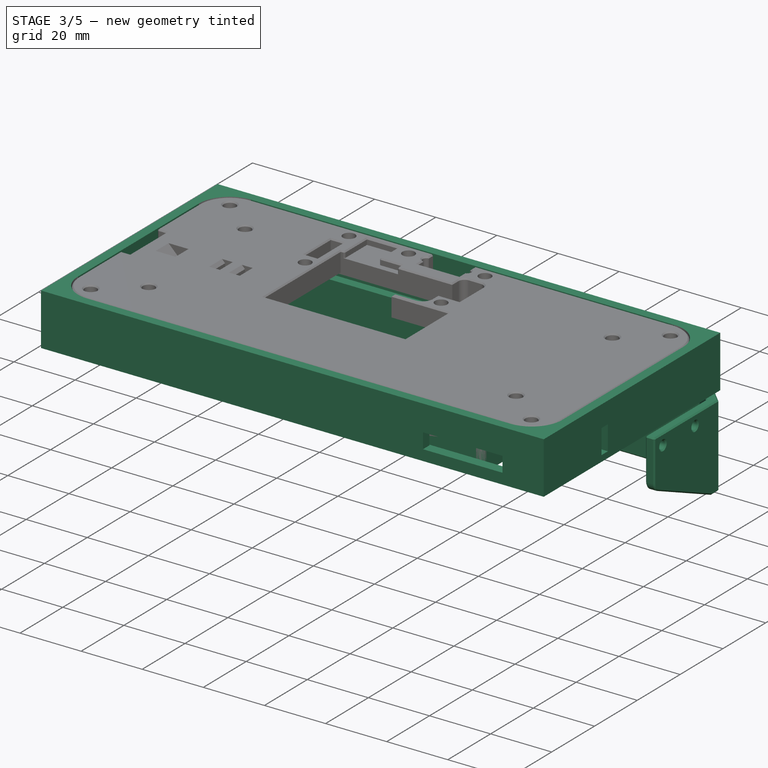
[diagram: stage 3 of 5 — iso view after this stage's code; geometry added in this stage tinted green]
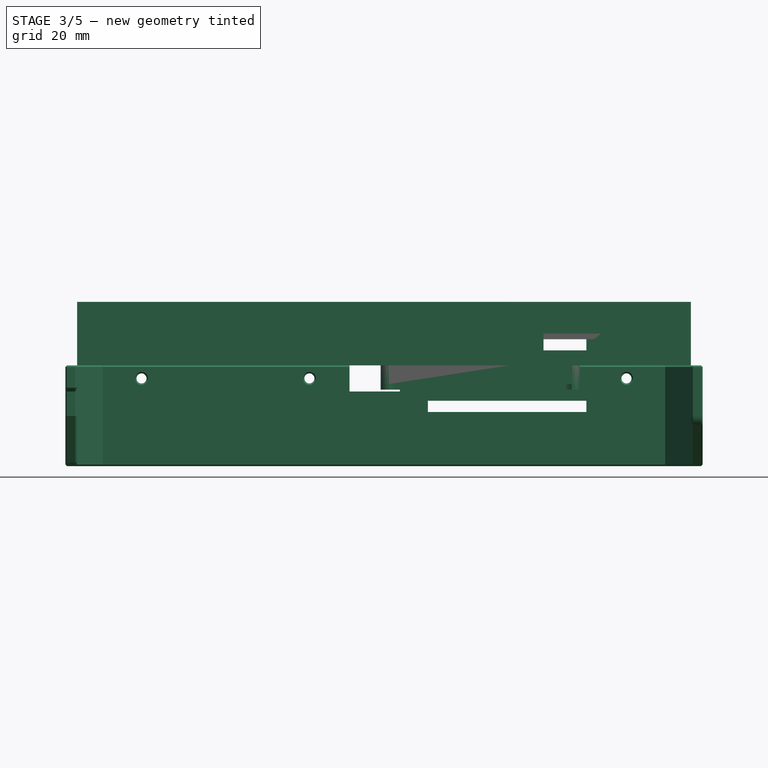
[diagram: stage 3 of 5 — front view after this stage's code; geometry added in this stage tinted green]
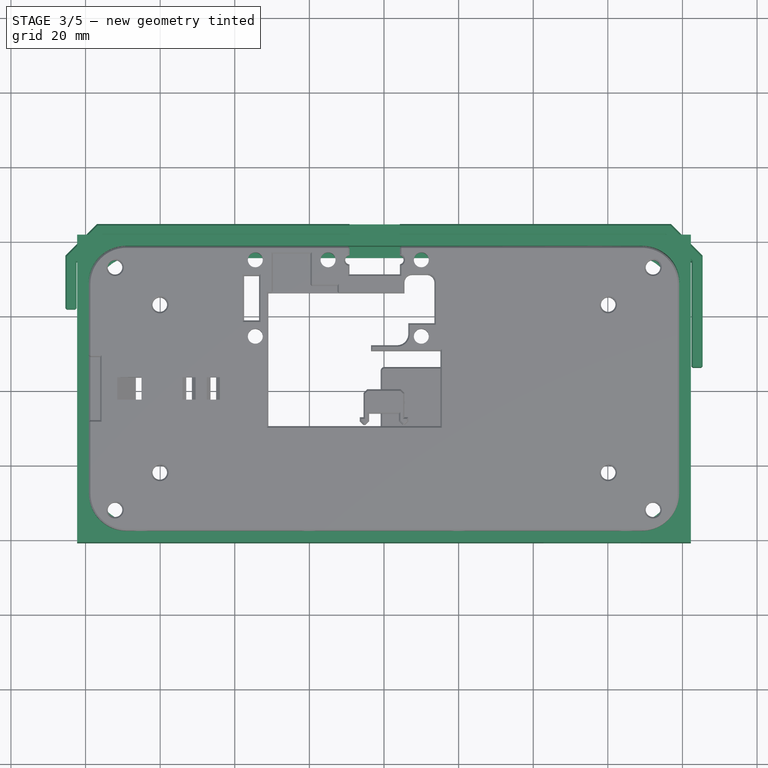
[diagram: stage 3 of 5 — top view after this stage's code; geometry added in this stage tinted green]
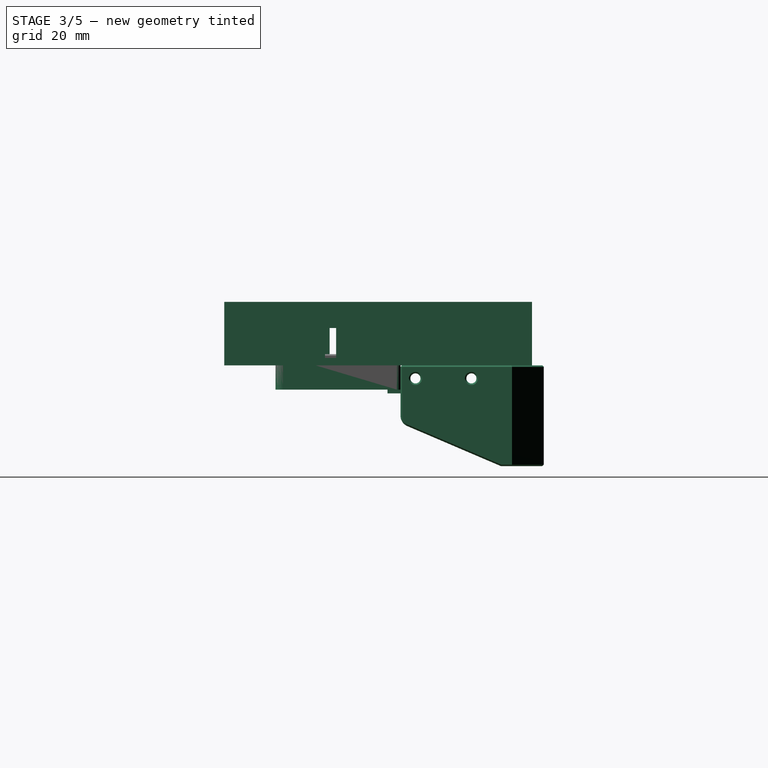
[diagram: stage 3 of 5 — right view after this stage's code; geometry added in this stage tinted green]
FEATURE [Spreadsheet::Sheet] Spreadsheet  label="args"
  cells = A1='tablet_width; B1(tablet_width)=158.5; A2='tablet_height; B2(tablet_height)=76.5; A3='tablet_thickness; B3(tablet_thickness)=8; A4='tablet_corner_radius; B4(tablet_corner_radius)=10; A5='tablet_screen_offset; B5(tablet_screen_offset)=3; A6='tablet_screen_corner_radius; B6(tablet_screen_corner_radius)=8; A7='tablet_io_center; B7(tablet_io_center)=3.5; A8='case_front_thickness; B8(case_front_thickness)=2; A9='case_side_thickness; B9(case_side_thickness)=3; A10='case_back_thickness; B10(case_back_thickness)=7; A13='m2p5_thread_insert_radius; B13(m2p5_thread_insert_radius)=1.6; A14='m2p5_bolt_hole_radius; B14(m2p5_bolt_hole_radius)=1.35; A15='m3_thread_insert_radius; B15(m3_thread_insert_radius)=1.95; A20='button_offset; B20(button_offset)=-0.5
FEATURE [Sketcher::SketchObject] Sketch
  FullyConstrained = true
  MapMode = 5
  Support = -> [XY_Plane]
  expr: Constraints[10] = <<args>>.tablet_height + <<args>>.case_side_thickness * 2
  expr: Constraints[11] = (<<args>>.tablet_height + <<args>>.case_side_thickness * 2) / 2
  expr: Constraints[8] = <<args>>.tablet_width + <<args>>.case_side_thickness * 2
  expr: Constraints[9] = (<<args>>.tablet_width + <<args>>.case_side_thickness * 2) / 2
  sketch-geometry (4):
    g0: LineSegment StartX=-82.25 StartY=41.25 StartZ=0 EndX=82.25 EndY=41.25 EndZ=0
    g1: LineSegment StartX=82.25 StartY=41.25 StartZ=0 EndX=82.25 EndY=-41.25 EndZ=0
    g2: LineSegment StartX=82.25 StartY=-41.25 StartZ=0 EndX=-82.25 EndY=-41.25 EndZ=0
    g3: LineSegment StartX=-82.25 StartY=-41.25 StartZ=0 EndX=-82.25 EndY=41.25 EndZ=0
  constraints (12):
    c: Coincident(g0,g1)
    c: Coincident(g1,g2)
    c: Coincident(g2,g3)
    c: Coincident(g3,g0)
    c: Horizontal(g0)
    c: Horizontal(g2)
    c: Vertical(g1)
    c: Vertical(g3)
    c: DistanceX(g0,g0) = 164.5
    c: DistanceX(g0,g-1) = 82.25
    c: DistanceY(g3,g3) = 82.5
    c: DistanceY(g2,g-1) = 41.25
FEATURE [PartDesign::Pad] Pad
  Direction = (1,1,1)
  Length = 17
  Length2 = 100
  Profile = -> Sketch
  Type = 0
  expr: Length = <<args>>.tablet_thickness + <<args>>.case_front_thickness + <<args>>.case_back_thickness
FEATURE [Sketcher::SketchObject] Sketch001
  FullyConstrained = true
  MapMode = 5
  Placement = pos=(0,0,17) rot=(0,0,1;0rad)
  Support = -> [Pad]
  expr: Constraints[10] = <<args>>.tablet_height
  expr: Constraints[11] = <<args>>.tablet_height / 2
  expr: Constraints[8] = <<args>>.tablet_width
  expr: Constraints[9] = <<args>>.tablet_width / 2
  sketch-geometry (4):
    g0: LineSegment StartX=-79.25 StartY=38.25 StartZ=0 EndX=79.25 EndY=38.25 EndZ=0
    g1: LineSegment StartX=79.25 StartY=38.25 StartZ=0 EndX=79.25 EndY=-38.25 EndZ=0
    g2: LineSegment StartX=79.25 StartY=-38.25 StartZ=0 EndX=-79.25 EndY=-38.25 EndZ=0
    g3: LineSegment StartX=-79.25 StartY=-38.25 StartZ=0 EndX=-79.25 EndY=38.25 EndZ=0
  constraints (12):
    c: Coincident(g0,g1)
    c: Coincident(g1,g2)
    c: Coincident(g2,g3)
    c: Coincident(g3,g0)
    c: Horizontal(g0)
    c: Horizontal(g2)
    c: Vertical(g1)
    c: Vertical(g3)
    c: DistanceX(g0,g0) = 158.5
    c: DistanceX(g0,g-1) = 79.25
    c: DistanceY(g3,g3) = 76.5
    c: DistanceY(g-1,g0) = 38.25
FEATURE [PartDesign::Pocket] Pocket
  BaseFeature = -> Pad
  Direction = (1,1,1)
  Length = 15
  Length2 = 100
  Profile = -> Sketch001
  Type = 0
  expr: Length = <<args>>.tablet_thickness + <<args>>.case_back_thickness
FEATURE [Sketcher::SketchObject] Sketch002
  FullyConstrained = true
  MapMode = 5
  Placement = pos=(0,0,2) rot=(0,0,1;0rad)
  Support = -> [Pocket]
  expr: Constraints[10] = <<args>>.tablet_height - <<args>>.tablet_screen_offset * 2
  expr: Constraints[11] = (<<args>>.tablet_height - <<args>>.tablet_screen_offset * 2) / 2
  expr: Constraints[8] = <<args>>.tablet_width - <<args>>.tablet_screen_offset * 2
  expr: Constraints[9] = (<<args>>.tablet_width - <<args>>.tablet_screen_offset * 2) / 2
  sketch-geometry (4):
    g0: LineSegment StartX=-76.25 StartY=35.25 StartZ=0 EndX=76.25 EndY=35.25 EndZ=0
    g1: LineSegment StartX=76.25 StartY=35.25 StartZ=0 EndX=76.25 EndY=-35.25 EndZ=0
    g2: LineSegment StartX=76.25 StartY=-35.25 StartZ=0 EndX=-76.25 EndY=-35.25 EndZ=0
    g3: LineSegment StartX=-76.25 StartY=-35.25 StartZ=0 EndX=-76.25 EndY=35.25 EndZ=0
  constraints (12):
    c: Coincident(g0,g1)
    c: Coincident(g1,g2)
    c: Coincident(g2,g3)
    c: Coincident(g3,g0)
    c: Horizontal(g0)
    c: Horizontal(g2)
    c: Vertical(g1)
    c: Vertical(g3)
    c: DistanceX(g0,g0) = 152.5
    c: DistanceX(g0,g-1) = 76.25
    c: DistanceY(g3,g3) = 70.5
    c: DistanceY(g-1,g0) = 35.25
FEATURE [PartDesign::Pocket] Pocket001
  BaseFeature = -> Pocket
  Direction = (1,1,1)
  Length = 5
  Length2 = 100
  Profile = -> Sketch002
  Type = 1
FEATURE [PartDesign::Fillet] Fillet
  Base = -> Pocket001 [Edge29,Edge30,Edge32,Edge34]
  BaseFeature = -> Pocket001
  Radius = 10
  SupportTransform = false
  UseAllEdges = false
  expr: Radius = <<args>>.tablet_corner_radius
FEATURE [PartDesign::Fillet] Fillet001
  Base = -> Fillet [Edge45,Edge47,Edge46,Edge48]
  BaseFeature = -> Fillet
  Radius = 8
  SupportTransform = false
  UseAllEdges = false
  expr: Radius = <<args>>.tablet_screen_corner_radius
FEATURE [PartDesign::Plane] DatumPlane  label="front-plane"
  Length = 187.799
  MapMode = 5
  ResizeMode = 0
  Support = -> [XY_Plane]
  Width = 105.799
FEATURE [PartDesign::Plane] DatumPlane001  label="back-plane"
  AttachmentOffset = pos=(0,0,17) rot=(0,0,1;0rad)
  Length = 187.799
  MapMode = 5
  Placement = pos=(0,0,17) rot=(0,0,1;0rad)
  ResizeMode = 0
  Support = -> [XY_Plane]
  Width = 105.799
  expr: .AttachmentOffset.Base.z = <<args>>.tablet_thickness + <<args>>.case_front_thickness + <<args>>.case_back_thickness
FEATURE [PartDesign::Plane] DatumPlane002  label="center-plane-x"
  Length = 95.3452
  MapMode = 5
  Placement = pos=(0,0,0) rot=(0.57735,0.57735,0.57735;2.0944rad)
  ResizeMode = 0
  Support = -> [YZ_Plane]
  Width = 62.8452
FEATURE [PartDesign::Plane] DatumPlane003  label="right-plane"
  AttachmentOffset = pos=(0,0,82.25) rot=(0,0,1;0rad)
  Length = 95.3452
  MapMode = 5
  Placement = pos=(82.25,-1.83e-14,1.83e-14) rot=(0.57735,0.57735,0.57735;2.0944rad)
  ResizeMode = 0
  Support = -> [YZ_Plane]
  Width = 62.8452
  expr: .AttachmentOffset.Base.z = (<<args>>.tablet_width + <<args>>.case_side_thickness * 2) / 2
FEATURE [PartDesign::Plane] DatumPlane004  label="left-plane"
  AttachmentOffset = pos=(0,0,-82.25) rot=(0,0,1;0rad)
  Length = 95.3452
  MapMode = 5
  Placement = pos=(-82.25,1.83e-14,-1.83e-14) rot=(0.57735,0.57735,0.57735;2.0944rad)
  ResizeMode = 0
  Support = -> [YZ_Plane]
  Width = 62.8452
  expr: .AttachmentOffset.Base.z = -((<<args>>.tablet_width + <<args>>.case_side_thickness * 2) / 2)
FEATURE [PartDesign::Plane] DatumPlane005  label="bottom-plane"
  AttachmentOffset = pos=(0,0,41.25) rot=(0,0,1;0rad)
  Length = 182.638
  MapMode = 5
  Placement = pos=(0,-41.25,-9.2e-15) rot=(1,0,0;1.5708rad)
  ResizeMode = 0
  Support = -> [XZ_Plane]
  Width = 68.1384
  expr: .AttachmentOffset.Base.z = (<<args>>.tablet_height + <<args>>.case_side_thickness * 2) / 2
FEATURE [PartDesign::Plane] DatumPlane006  label="top-plane"
  AttachmentOffset = pos=(0,0,-41.25) rot=(0,0,1;0rad)
  Length = 182.638
  MapMode = 5
  Placement = pos=(0,41.25,9.2e-15) rot=(1,0,0;1.5708rad)
  ResizeMode = 0
  Support = -> [XZ_Plane]
  Width = 68.1384
  expr: .AttachmentOffset.Base.z = -((<<args>>.tablet_height + <<args>>.case_side_thickness * 2) / 2)
FEATURE [Sketcher::SketchObject] Sketch004
  FullyConstrained = true
  MapMode = 5
  Placement = pos=(82.25,-1.83e-14,1.83e-14) rot=(0.57735,0.57735,0.57735;2.0944rad)
  Support = -> [DatumPlane003]
  expr: Constraints[11] = <<args>>.tablet_thickness
  expr: Constraints[8] = <<args>>.tablet_height / 2 - 25 - 3 / 2 - 0.5
  expr: Constraints[9] = <<args>>.case_front_thickness
  sketch-geometry (4):
    g0: LineSegment StartX=-14.25 StartY=10 StartZ=0 EndX=-11.25 EndY=10 EndZ=0
    g1: LineSegment StartX=-11.25 StartY=10 StartZ=0 EndX=-11.25 EndY=2 EndZ=0
    g2: LineSegment StartX=-11.25 StartY=2 StartZ=0 EndX=-14.25 EndY=2 EndZ=0
    g3: LineSegment StartX=-14.25 StartY=2 StartZ=0 EndX=-14.25 EndY=10 EndZ=0
  constraints (12):
    c: Coincident(g0,g1)
    c: Coincident(g1,g2)
    c: Coincident(g2,g3)
    c: Coincident(g3,g0)
    c: Horizontal(g0)
    c: Horizontal(g2)
    c: Vertical(g1)
    c: Vertical(g3)
    c: DistanceX(g1,g-1) = 11.25
    c: DistanceY(g-1,g1) = 2
    c: DistanceX(g0,g0) = 3
    c: DistanceY(g3,g3) = 8
FEATURE [PartDesign::Pocket] Pocket003  label="right-mic"
  BaseFeature = -> Fillet001
  Direction = (1,1,1)
  Length = 3
  Length2 = 100
  Profile = -> Sketch004
  Type = 0
  expr: Length = <<args>>.case_side_thickness
FEATURE [Sketcher::SketchObject] Sketch005
  FullyConstrained = true
  MapMode = 5
  Placement = pos=(-82.25,1.83e-14,-1.83e-14) rot=(0.57735,0.57735,0.57735;2.0944rad)
  Support = -> [DatumPlane004]
  expr: Constraints[10] = <<args>>.tablet_thickness
  expr: Constraints[8] = <<args>>.tablet_height / 2 - 26.75 - 3 / 2
  expr: Constraints[9] = <<args>>.case_front_thickness
  sketch-geometry (4):
    g0: LineSegment StartX=-13 StartY=10 StartZ=0 EndX=-10 EndY=10 EndZ=0
    g1: LineSegment StartX=-10 StartY=10 StartZ=0 EndX=-10 EndY=2 EndZ=0
    g2: LineSegment StartX=-10 StartY=2 StartZ=0 EndX=-13 EndY=2 EndZ=0
    g3: LineSegment StartX=-13 StartY=2 StartZ=0 EndX=-13 EndY=10 EndZ=0
  constraints (12):
    c: Coincident(g0,g1)
    c: Coincident(g1,g2)
    c: Coincident(g2,g3)
    c: Coincident(g3,g0)
    c: Horizontal(g0)
    c: Horizontal(g2)
    c: Vertical(g1)
    c: Vertical(g3)
    c: DistanceX(g1,g-1) = 10
    c: DistanceY(g-1,g1) = 2
    c: DistanceY(g3,g3) = 8
    c: DistanceX(g0,g0) = 3
FEATURE [PartDesign::Pocket] Pocket004  label="left-mic"
  BaseFeature = -> Pocket003
  Direction = (1,1,1)
  Length = 3
  Length2 = 100
  Profile = -> Sketch005
  Reversed = true
  Type = 0
  expr: Length = <<args>>.case_side_thickness
FEATURE [Sketcher::SketchObject] Sketch006
  FullyConstrained = true
  MapMode = 5
  Placement = pos=(0,41.25,9.2e-15) rot=(1,0,0;1.5708rad)
  Support = -> [DatumPlane006]
  expr: Constraints[10] = <<args>>.case_front_thickness + (<<args>>.tablet_thickness - 3) / 2 + <<args>>.button_offset
  expr: Constraints[11] = <<args>>.tablet_width / 2 - 23 - 2
  sketch-geometry (4):
    g0: LineSegment StartX=54.25 StartY=4 StartZ=0 EndX=11.75 EndY=4 EndZ=0
    g1: LineSegment StartX=11.75 StartY=4 StartZ=0 EndX=11.75 EndY=7 EndZ=0
    g2: LineSegment StartX=11.75 StartY=7 StartZ=0 EndX=54.25 EndY=7 EndZ=0
    g3: LineSegment StartX=54.25 StartY=7 StartZ=0 EndX=54.25 EndY=4 EndZ=0
  constraints (12):
    c: Coincident(g0,g1)
    c: Coincident(g1,g2)
    c: Coincident(g2,g3)
    c: Coincident(g3,g0)
    c: Horizontal(g0)
    c: Horizontal(g2)
    c: Vertical(g1)
    c: Vertical(g3)
    c: DistanceX(g2,g2) = 42.5
    c: DistanceY(g0,g2) = 3
    c: DistanceY(g-1,g0) = 4
    c: DistanceX(g-1,g0) = 54.25
FEATURE [PartDesign::Pocket] Pocket005  label="button-slot"
  BaseFeature = -> Pocket004
  Direction = (1,1,1)
  Length = 3
  Length2 = 100
  Profile = -> Sketch006
  Reversed = true
  Type = 0
  expr: Length = <<args>>.case_side_thickness
FEATURE [PartDesign::Plane] DatumPlane007  label="top-plane-inner"
  AttachmentOffset = pos=(0,0,-38.25) rot=(0,0,1;0rad)
  Length = 182.638
  MapMode = 5
  Placement = pos=(0,38.25,8.5e-15) rot=(1,0,0;1.5708rad)
  ResizeMode = 0
  Support = -> [XZ_Plane]
  Width = 68.1384
  expr: .AttachmentOffset.Base.z = -((<<args>>.tablet_height + <<args>>.case_side_thickness * 2) / 2) + <<args>>.case_side_thickness
FEATURE [Sketcher::SketchObject] Sketch007
  FullyConstrained = true
  MapMode = 5
  Placement = pos=(0,38.25,8.5e-15) rot=(1,0,0;1.5708rad)
  Support = -> [DatumPlane007]
  expr: Constraints[10] = <<args>>.tablet_width / 2 - 23
  expr: Constraints[9] = <<args>>.case_front_thickness + (<<args>>.tablet_thickness - 3) / 2 + <<args>>.button_offset
  sketch-geometry (4):
    g0: LineSegment StartX=9.75 StartY=7 StartZ=0 EndX=56.25 EndY=7 EndZ=0
    g1: LineSegment StartX=56.25 StartY=7 StartZ=0 EndX=56.25 EndY=4 EndZ=0
    g2: LineSegment StartX=56.25 StartY=4 StartZ=0 EndX=9.75 EndY=4 EndZ=0
    g3: LineSegment StartX=9.75 StartY=4 StartZ=0 EndX=9.75 EndY=7 EndZ=0
  constraints (12):
    c: Coincident(g0,g1)
    c: Coincident(g1,g2)
    c: Coincident(g2,g3)
    c: Coincident(g3,g0)
    c: Horizontal(g0)
    c: Horizontal(g2)
    c: Vertical(g1)
    c: Vertical(g3)
    c: DistanceX(g0,g0) = 46.5
    c: DistanceY(g-1,g2) = 4
    c: DistanceX(g-1,g0) = 56.25
    c: DistanceY(g3,g3) = 3
FEATURE [PartDesign::Pocket] Pocket006  label="button-slot-outer"
  BaseFeature = -> Pocket005
  Direction = (1,1,1)
  Length = 1.5
  Length2 = 100
  Profile = -> Sketch007
  Type = 0
FEATURE [Sketcher::SketchObject] Sketch008
  FullyConstrained = true
  MapMode = 5
  Placement = pos=(0,-41.25,-9.2e-15) rot=(1,0,0;1.5708rad)
  Support = -> [DatumPlane005]
  expr: Constraints[10] = <<args>>.tablet_width / 2 - 10.5
  expr: Constraints[9] = <<args>>.case_front_thickness + (<<args>>.tablet_thickness - 5) / 2
  sketch-geometry (4):
    g0: LineSegment StartX=42.75 StartY=8.5 StartZ=0 EndX=68.75 EndY=8.5 EndZ=0
    g1: LineSegment StartX=68.75 StartY=8.5 StartZ=0 EndX=68.75 EndY=3.5 EndZ=0
    g2: LineSegment StartX=68.75 StartY=3.5 StartZ=0 EndX=42.75 EndY=3.5 EndZ=0
    g3: LineSegment StartX=42.75 StartY=3.5 StartZ=0 EndX=42.75 EndY=8.5 EndZ=0
  constraints (12):
    c: Coincident(g0,g1)
    c: Coincident(g1,g2)
    c: Coincident(g2,g3)
    c: Coincident(g3,g0)
    c: Horizontal(g0)
    c: Horizontal(g2)
    c: Vertical(g1)
    c: Vertical(g3)
    c: DistanceY(g1,g1) = 5
    c: DistanceY(g-1,g2) = 3.5
    c: DistanceX(g-1,g1) = 68.75
    c: DistanceX(g0,g0) = 26
FEATURE [PartDesign::Pocket] Pocket007  label="sd-sim-slot"
  BaseFeature = -> Pocket006
  Direction = (1,1,1)
  Length = 3
  Length2 = 100
  Profile = -> Sketch008
  Type = 0
  expr: Length = <<args>>.case_side_thickness
FEATURE [Sketcher::SketchObject] Sketch017
  FullyConstrained = true
  MapMode = 5
  Support = -> [XY_Plane001]
  expr: Constraints[17] = <<args>>.tablet_width + 2 * <<args>>.case_side_thickness + 0.3
  expr: Constraints[18] = (<<args>>.tablet_width + 2 * <<args>>.case_side_thickness + 0.3) / 2
  expr: Constraints[19] = <<args>>.tablet_height / 2 + <<args>>.case_side_thickness + 0.15
  sketch-geometry (8):
    g0: LineSegment StartX=-82.4 StartY=6 StartZ=0 EndX=-82.4 EndY=41.4 EndZ=0
    g1: LineSegment StartX=-82.4 StartY=41.4 StartZ=0 EndX=82.4 EndY=41.4 EndZ=0
    g2: LineSegment StartX=82.4 StartY=41.4 StartZ=0 EndX=82.4 EndY=6 EndZ=0
    g3: LineSegment StartX=82.4 StartY=6 StartZ=0 EndX=85.4 EndY=6 EndZ=0
    g4: LineSegment StartX=85.4 StartY=6 StartZ=0 EndX=85.4 EndY=44.4 EndZ=0
    g5: LineSegment StartX=85.4 StartY=44.4 StartZ=0 EndX=-85.4 EndY=44.4 EndZ=0
    g6: LineSegment StartX=-85.4 StartY=44.4 StartZ=0 EndX=-85.4 EndY=6 EndZ=0
    g7: LineSegment StartX=-85.4 StartY=6 StartZ=0 EndX=-82.4 EndY=6 EndZ=0
  constraints (24):
    c: Vertical(g0)
    c: Coincident(g0,g1)
    c: Horizontal(g1)
    c: Coincident(g1,g2)
    c: Vertical(g2)
    c: Coincident(g2,g3)
    c: Horizontal(g3)
    c: Coincident(g3,g4)
    c: Vertical(g4)
    c: Coincident(g4,g5)
    c: Horizontal(g5)
    c: Coincident(g5,g6)
    c: Vertical(g6)
    c: Coincident(g6,g7)
    c: Coincident(g7,g0)
    c: Horizontal(g7)
    c: Horizontal(g0,g2)
    c: DistanceX(g1,g1) = 164.8
    c: DistanceX(g0,g-1) = 82.4
    c: DistanceY(g-1,g1) = 41.4
    c: DistanceY(g-1,g0) = 6
    c: DistanceX(g7,g7) = 3
    c: DistanceX(g3,g3) = 3
    c: DistanceY(g0,g5) = 3
FEATURE [PartDesign::Pad] Pad002
  Direction = (1,1,1)
  Length = 27
  Length2 = 100
  Profile = -> Sketch017
  Reversed = true
  Type = 0
  expr: Length = <<args>>.tablet_thickness + <<args>>.case_front_thickness + <<args>>.case_back_thickness + 10
FEATURE [PartDesign::Chamfer] Chamfer003
  Angle = 45
  Base = -> Pad002 [Edge2,Edge5]
  BaseFeature = -> Pad002
  ChamferType = 0
  FlipDirection = false
  Size = 7
  Size2 = 1
  SupportTransform = false
  UseAllEdges = false
FEATURE [PartDesign::Chamfer] Chamfer004
  Angle = 45
  Base = -> Chamfer003 [Edge28,Edge26]
  BaseFeature = -> Chamfer003
  ChamferType = 0
  FlipDirection = false
  Size = 8.5
  Size2 = 1
  SupportTransform = false
  UseAllEdges = false
FEATURE [Sketcher::SketchObject] Sketch018
  ExternalGeometry = -> [Chamfer004]
  FullyConstrained = true
  MapMode = 5
  Placement = pos=(-85.4,0,0) rot=(0.57735,-0.57735,-0.57735;2.0944rad)
  Support = -> [Chamfer004]
  expr: Constraints[7] = <<args>>.tablet_thickness + <<args>>.case_front_thickness + <<args>>.case_back_thickness - 1.5
  sketch-geometry (3):
    g0: LineSegment StartX=-6 StartY=-15.5 StartZ=0 EndX=-32.9 EndY=-27 EndZ=0
    g1: LineSegment StartX=-32.9 StartY=-27 StartZ=0 EndX=-6 EndY=-27 EndZ=0
    g2: LineSegment StartX=-6 StartY=-27 StartZ=0 EndX=-6 EndY=-15.5 EndZ=0
  constraints (8):
    c: PointOnObject(g0,g-4)
    c: PointOnObject(g0,g-3)
    c: Coincident(g0,g1)
    c: Coincident(g1,g-4)
    c: Coincident(g1,g2)
    c: Coincident(g2,g0)
    c: DistanceX(g-3,g0) = 3
    c: DistanceY(g0,g-4) = 15.5
FEATURE [PartDesign::Pocket] Pocket015
  BaseFeature = -> Chamfer004
  Direction = (1,1,1)
  Length = 5
  Length2 = 100
  Profile = -> Sketch018
  Type = 1
FEATURE [Sketcher::SketchObject] Sketch020
  FullyConstrained = true
  MapMode = 5
  Placement = pos=(-85.4,0,0) rot=(0.57735,-0.57735,-0.57735;2.0944rad)
  Support = -> [Pocket015]
  expr: Constraints[11] = <<args>>.case_back_thickness
  expr: Constraints[9] = <<args>>.tablet_thickness
  sketch-geometry (4):
    g0: LineSegment StartX=-25.25 StartY=-7 StartZ=0 EndX=-12.25 EndY=-7 EndZ=0
    g1: LineSegment StartX=-12.25 StartY=-7 StartZ=0 EndX=-12.25 EndY=-15 EndZ=0
    g2: LineSegment StartX=-12.25 StartY=-15 StartZ=0 EndX=-25.25 EndY=-15 EndZ=0
    g3: LineSegment StartX=-25.25 StartY=-15 StartZ=0 EndX=-25.25 EndY=-7 EndZ=0
  constraints (12):
    c: Coincident(g0,g1)
    c: Coincident(g1,g2)
    c: Coincident(g2,g3)
    c: Coincident(g3,g0)
    c: Horizontal(g0)
    c: Horizontal(g2)
    c: Vertical(g1)
    c: Vertical(g3)
    c: DistanceX(g0,g0) = 13
    c: DistanceY(g3,g3) = 8
    c: DistanceX(g0,g-1) = 12.25
    c: DistanceY(g0,g-1) = 7
FEATURE [PartDesign::Pocket] Pocket017
  BaseFeature = -> Pocket015
  Direction = (1,1,1)
  Length = 3
  Length2 = 100
  Profile = -> Sketch020
  Type = 0
  expr: Length = <<args>>.case_side_thickness
FEATURE [Sketcher::SketchObject] Sketch021
  FullyConstrained = true
  MapMode = 5
  Placement = pos=(-85.4,0,0) rot=(0.57735,-0.57735,-0.57735;2.0944rad)
  Support = -> [Pocket017]
  expr: Constraints[0] = <<args>>.case_back_thickness / 2
  expr: Constraints[5] = <<args>>.m2p5_bolt_hole_radius
  sketch-geometry (2):
    g0: Circle CenterX=-25 CenterY=-3.5 CenterZ=0 NormalX=0 NormalY=0 NormalZ=1 AngleXU=0 Radius=1.35
    g1: Circle CenterX=-10 CenterY=-3.5 CenterZ=0 NormalX=0 NormalY=0 NormalZ=1 AngleXU=0 Radius=1.35
  constraints (6):
    c: DistanceY(g1,g-1) = 3.5
    c: DistanceX(g1,g-1) = 10
    c: DistanceX(g0,g-1) = 25
    c: Horizontal(g0,g1)
    c: Equal(g1,g0)
    c: Radius(g0) = 1.35
FEATURE [PartDesign::Pocket] Pocket018
  BaseFeature = -> Pocket017
  Direction = (1,1,1)
  Length = 5
  Length2 = 100
  Profile = -> Sketch021
  Type = 1
FEATURE [Sketcher::SketchObject] Sketch022
  FullyConstrained = true
  MapMode = 5
  Placement = pos=(0,44.4,0) rot=(0,0.707107,0.707107;3.14159rad)
  Support = -> [Pocket018]
  expr: Constraints[10] = <<args>>.tablet_width / 2 - 23 - 2
  expr: Constraints[11] = <<args>>.case_back_thickness + (<<args>>.tablet_thickness - 3) / 2
  sketch-geometry (4):
    g0: LineSegment StartX=-54.25 StartY=-9.5 StartZ=0 EndX=-11.75 EndY=-9.5 EndZ=0
    g1: LineSegment StartX=-11.75 StartY=-9.5 StartZ=0 EndX=-11.75 EndY=-12.5 EndZ=0
    g2: LineSegment StartX=-11.75 StartY=-12.5 StartZ=0 EndX=-54.25 EndY=-12.5 EndZ=0
    g3: LineSegment StartX=-54.25 StartY=-12.5 StartZ=0 EndX=-54.25 EndY=-9.5 EndZ=0
  constraints (12):
    c: Coincident(g0,g1)
    c: Coincident(g1,g2)
    c: Coincident(g2,g3)
    c: Coincident(g3,g0)
    c: Horizontal(g0)
    c: Horizontal(g2)
    c: Vertical(g1)
    c: Vertical(g3)
    c: DistanceX(g0,g0) = 42.5
    c: DistanceY(g3,g3) = 3
    c: DistanceX(g0,g-1) = 54.25
    c: DistanceY(g0,g-1) = 9.5
FEATURE [PartDesign::Pocket] Pocket019
  BaseFeature = -> Pocket018
  Direction = (1,1,1)
  Length = 3
  Length2 = 100
  Profile = -> Sketch022
  Type = 0
  expr: Length = <<args>>.case_side_thickness
FEATURE [Sketcher::SketchObject] Sketch023
  FullyConstrained = true
  MapMode = 5
  Placement = pos=(0,44.4,0) rot=(0,0.707107,0.707107;3.14159rad)
  Support = -> [Pocket019]
  expr: Constraints[0] = <<args>>.case_back_thickness / 2
  expr: Constraints[11] = <<args>>.m2p5_bolt_hole_radius
  sketch-geometry (4):
    g0: Circle CenterX=20 CenterY=-3.5 CenterZ=0 NormalX=0 NormalY=0 NormalZ=1 AngleXU=0 Radius=1.35
    g1: Circle CenterX=-65 CenterY=-3.5 CenterZ=0 NormalX=0 NormalY=0 NormalZ=1 AngleXU=0 Radius=1.35
    g2: Circle CenterX=-20 CenterY=-3.5 CenterZ=0 NormalX=0 NormalY=0 NormalZ=1 AngleXU=0 Radius=1.35
    g3: Circle CenterX=65 CenterY=-3.5 CenterZ=0 NormalX=0 NormalY=0 NormalZ=1 AngleXU=0 Radius=1.35
  constraints (12):
    c: DistanceY(g0,g-1) = 3.5
    c: Equal(g0,g1)
    c: Equal(g1,g2)
    c: Equal(g2,g3)
    c: Horizontal(g1,g2)
    c: Horizontal(g2,g0)
    c: Horizontal(g0,g3)
    c: DistanceX(g2,g-1) = 20
    c: DistanceX(g-1,g0) = 20
    c: DistanceX(g-1,g3) = 65
    c: DistanceX(g1,g-1) = 65
    c: Radius(g3) = 1.35
FEATURE [PartDesign::Pocket] Pocket020
  BaseFeature = -> Pocket019
  Direction = (1,1,1)
  Length = 5
  Length2 = 100
  Profile = -> Sketch023
  Type = 1
FEATURE [PartDesign::Fillet] Fillet002
  Base = -> Pocket020 [Edge26,Edge65]
  BaseFeature = -> Pocket020
  Radius = 3
  SupportTransform = false
  UseAllEdges = false
FEATURE [PartDesign::FeatureBase] Clone002
  BaseFeature = -> Fillet002
FEATURE [Sketcher::SketchObject] Sketch078
  ExternalGeometry = -> [Clone002]
  FullyConstrained = true
  MapMode = 5
  Placement = pos=(-85.4,0,0) rot=(0.57735,-0.57735,-0.57735;2.0944rad)
  Support = -> [Clone002]
  sketch-geometry (5):
    g0: LineSegment StartX=-21.5 StartY=-7 StartZ=0 EndX=-21.5 EndY=0 EndZ=0
    g1: LineSegment StartX=-21.5 StartY=0 StartZ=0 EndX=-6 EndY=0 EndZ=0
    g2: LineSegment StartX=-6 StartY=0 StartZ=0 EndX=-6 EndY=-27 EndZ=0
    g3: LineSegment StartX=-32.9 StartY=-27 StartZ=0 EndX=-21.5 EndY=-7 EndZ=0
    g4: LineSegment StartX=-32.9 StartY=-27 StartZ=0 EndX=-6 EndY=-27 EndZ=0
  constraints (13):
    c: PointOnObject(g0,g-5)
    c: PointOnObject(g0,g-1)
    c: Vertical(g0)
    c: Coincident(g0,g1)
    c: Coincident(g1,g-6)
    c: Coincident(g1,g2)
    c: Vertical(g2)
    c: Coincident(g3,g0)
    c: DistanceX(g-3,g0) = 3.5
    c: Coincident(g-7,g3)
    c: Coincident(g4,g3)
    c: Coincident(g4,g2)
    c: Horizontal(g4)
FEATURE [PartDesign::Pocket] Pocket064
  BaseFeature = -> Clone002
  Direction = (1,1,1)
  Length = 5
  Length2 = 100
  Profile = -> Sketch078
  Type = 0
FEATURE [PartDesign::Chamfer] Chamfer036004011
  Angle = 45
  Base = -> Pocket064 [Edge17,Edge11]
  BaseFeature = -> Pocket064
  ChamferType = 0
  FlipDirection = false
  Size = 1
  Size2 = 1
  SupportTransform = false
  UseAllEdges = false
FEATURE [PartDesign::Chamfer] Chamfer036004012
  Angle = 45
  Base = -> Chamfer036004011 [Edge1,Edge13,Edge15,Edge2,Edge4,Edge27,Edge30,Edge6,Edge43,Edge8,Edge32,Edge44,Edge9,Edge7,Edge34,Edge29,Edge37,Edge35,Edge39,Edge36,Edge38,Edge41,Edge60,Edge66,Edge59,Edge65,Edge58,Edge20,Edge64,Edge12,Face4,Face31,Face32,Face26,Face27,Face28,Face29,Face11,Edge49,Edge50,+2 more]
  BaseFeature = -> Chamfer036004011
  ChamferType = 0
  FlipDirection = false
  Size = 0.4
  Size2 = 1
  SupportTransform = false
  UseAllEdges = false
FEATURE [PartDesign::Body] Body013  label="front-usb-pcb"
  BaseFeature = -> Chamfer006
  Group = -> [Clone001,Sketch073,Pad014,Sketch074,Pocket061,Sketch075,Pocket062,Sketch076,Pad015,Sketch077,Pocket063,Chamfer036004010,Sketch120,Pocket091]
  Origin = -> Origin013
  Tip = -> Pocket091
FEATURE [Sketcher::SketchObject] Sketch121
  FullyConstrained = true
  MapMode = 5
  Placement = pos=(0,44.4,0) rot=(0,0.707107,0.707107;3.14159rad)
  Support = -> [Chamfer036004012]
  sketch-geometry (4):
    g0: LineSegment StartX=-4.25 StartY=0 StartZ=0 EndX=9.25 EndY=0 EndZ=0
    g1: LineSegment StartX=9.25 StartY=0 StartZ=0 EndX=9.25 EndY=-7 EndZ=0
    g2: LineSegment StartX=9.25 StartY=-7 StartZ=0 EndX=-4.25 EndY=-7 EndZ=0
    g3: LineSegment StartX=-4.25 StartY=-7 StartZ=0 EndX=-4.25 EndY=0 EndZ=0
  constraints (12):
    c: Coincident(g0,g1)
    c: Coincident(g1,g2)
    c: Coincident(g2,g3)
    c: Coincident(g3,g0)
    c: Horizontal(g0)
    c: Horizontal(g2)
    c: Vertical(g1)
    c: Vertical(g3)
    c: PointOnObject(g0,g-1)
    c: DistanceX(g0,g-1) = 4.25
    c: DistanceX(g0,g0) = 13.5
    c: DistanceY(g1,g1) = 7
FEATURE [PartDesign::Pocket] Pocket092
  BaseFeature = -> Chamfer036004012
  Direction = (1,1,1)
  Length = 10
  Length2 = 100
  Profile = -> Sketch121
  Type = 0
FEATURE [Sketcher::SketchObject] Sketch133
  ExternalGeometry = -> [Pocket098]
  FullyConstrained = true
  MapMode = 5
  Placement = pos=(0,0,-1.5) rot=(1,0,0;3.14159rad)
  Support = -> [Pocket098]
  sketch-geometry (3):
    g0: ArcOfCircle CenterX=2.74 CenterY=2.74 CenterZ=0 NormalX=0 NormalY=0 NormalZ=1 AngleXU=0 Radius=2.89 StartAngle=3.14159 EndAngle=4.71239
    g1: LineSegment StartX=-0.15 StartY=2.74 StartZ=0 EndX=-0.15 EndY=-0.15 EndZ=0
    g2: LineSegment StartX=-0.15 StartY=-0.15 StartZ=0 EndX=2.74 EndY=-0.15 EndZ=0
  constraints (9):
    c: Coincident(g0,g-3)
    c: Vertical(g0,g0)
    c: Horizontal(g0,g0)
    c: Equal(g-3,g0)
    c: Coincident(g1,g0)
    c: Vertical(g1)
    c: Coincident(g2,g1)
    c: Coincident(g2,g0)
    c: Horizontal(g2)
FEATURE [PartDesign::Pad] Pad044
  BaseFeature = -> Pocket098
  Direction = (0,0,-1)
  Length = 10
  Length2 = 10
  Profile = -> Sketch133
  ReferenceAxis = -> Sketch133 [N_Axis]
  Type = 3
  UpToFace = -> Pocket098 [Face31]
FEATURE [PartDesign::Fillet] Fillet012
  Base = -> Pad044 [Edge22]
  BaseFeature = -> Pad044
  Radius = 1
  SupportTransform = false
  UseAllEdges = false
FEATURE [PartDesign::Pad] Pad045
  BaseFeature = -> Fillet012
  Direction = (0,0,-1)
  Length = 0.5
  Length2 = 10
  Profile = -> Fillet012 [Face19]
  Refine = true
  Type = 0
FEATURE [PartDesign::Pad] Pad046
  BaseFeature = -> Pad045
  Direction = (0,0,-1)
  Length = 5
  Length2 = 10
  Profile = -> Pad045 [Face47]
  Refine = true
  Type = 0
FEATURE [Sketcher::SketchObject] Sketch134
  ExternalGeometry = -> [Pad046]
  FullyConstrained = true
  MapMode = 5
  Placement = pos=(0,0,0) rot=(1,0,0;3.14159rad)
  Support = -> [Pad046]
  sketch-geometry (10):
    g0: Circle CenterX=3.5 CenterY=24 CenterZ=0 NormalX=0 NormalY=0 NormalZ=1 AngleXU=0 Radius=1.65
    g1: Circle CenterX=3.5 CenterY=3.5 CenterZ=0 NormalX=0 NormalY=0 NormalZ=1 AngleXU=0 Radius=1.65
    g2: Circle CenterX=23 CenterY=3.5 CenterZ=0 NormalX=0 NormalY=0 NormalZ=1 AngleXU=0 Radius=1.65
    g3: Circle CenterX=48 CenterY=3.5 CenterZ=0 NormalX=0 NormalY=0 NormalZ=1 AngleXU=0 Radius=1.65
    g4: Circle CenterX=48 CenterY=24 CenterZ=0 NormalX=0 NormalY=0 NormalZ=1 AngleXU=0 Radius=1.65
    g5: Circle CenterX=3.5 CenterY=24 CenterZ=0 NormalX=0 NormalY=0 NormalZ=1 AngleXU=0 Radius=3
    g6: Circle CenterX=3.5 CenterY=3.5 CenterZ=0 NormalX=0 NormalY=0 NormalZ=1 AngleXU=0 Radius=3
    g7: Circle CenterX=23 CenterY=3.5 CenterZ=0 NormalX=0 NormalY=0 NormalZ=1 AngleXU=0 Radius=3
    g8: Circle CenterX=48 CenterY=3.5 CenterZ=0 NormalX=0 NormalY=0 NormalZ=1 AngleXU=0 Radius=3
    g9: Circle CenterX=48 CenterY=24 CenterZ=0 NormalX=0 NormalY=0 NormalZ=1 AngleXU=0 Radius=3
  constraints (20):
    c: Coincident(g0,g-7)
    c: Coincident(g1,g-3)
    c: Coincident(g2,g-4)
    c: Coincident(g3,g-5)
    c: Coincident(g4,g-6)
    c: Equal(g4,g3)
    c: Equal(g3,g2)
    c: Equal(g2,g1)
    c: Equal(g1,g0)
    c: Equal(g0,g-7)
    c: Coincident(g5,g0)
    c: Coincident(g6,g1)
    c: Coincident(g7,g2)
    c: Coincident(g8,g3)
    c: Coincident(g9,g4)
    c: Equal(g9,g8)
    c: Equal(g8,g7)
    c: Equal(g7,g6)
    c: Equal(g6,g5)
    c: Radius(g5) = 3
FEATURE [PartDesign::Pad] Pad047
  BaseFeature = -> Pad046
  Direction = (0,0,-1)
  Length = 5
  Length2 = 10
  Profile = -> Sketch134
  ReferenceAxis = -> Sketch134 [N_Axis]
  Type = 0
FEATURE [Sketcher::SketchObject] Sketch135
  ExternalGeometry = -> [Pad047]
  FullyConstrained = true
  MapMode = 5
  Placement = pos=(0,0,-6.5) rot=(1,0,0;3.14159rad)
  Support = -> [Pad047]
  sketch-geometry (4):
    g0: LineSegment StartX=29.3 StartY=-2.5 StartZ=0 EndX=41.3 EndY=-2.5 EndZ=0
    g1: LineSegment StartX=41.3 StartY=-2.5 StartZ=0 EndX=41.3 EndY=-6 EndZ=0
    g2: LineSegment StartX=41.3 StartY=-6 StartZ=0 EndX=29.3 EndY=-6 EndZ=0
    g3: LineSegment StartX=29.3 StartY=-6 StartZ=0 EndX=29.3 EndY=-2.5 EndZ=0
  constraints (12):
    c: Coincident(g0,g1)
    c: Coincident(g1,g2)
    c: Coincident(g2,g3)
    c: Coincident(g3,g0)
    c: Horizontal(g0)
    c: Horizontal(g2)
    c: Vertical(g1)
    c: Vertical(g3)
    c: PointOnObject(g0,g-3)
    c: PointOnObject(g1,g-4)
    c: DistanceX(g-3,g0) = 1
    c: DistanceX(g0,g-3) = 1
FEATURE [PartDesign::Pad] Pad048
  BaseFeature = -> Pad047
  Direction = (0,0,-1)
  Length = 1
  Length2 = 10
  Profile = -> Sketch135
  ReferenceAxis = -> Sketch135 [N_Axis]
  Refine = true
  Type = 0
FEATURE [PartDesign::Pad] Pad049
  BaseFeature = -> Pad048
  Direction = (0,0,-1)
  Length = 2
  Length2 = 10
  Profile = -> Pad048 [Face53]
  Type = 0
FEATURE [PartDesign::Pad] Pad050
  BaseFeature = -> Pad049
  Direction = (0,0,-1)
  Length = 2
  Length2 = 10
  Profile = -> Pad049 [Face57]
  Type = 0
FEATURE [PartDesign::Pad] Pad051
  BaseFeature = -> Pad050
  Direction = (0,0,-1)
  Length = 2
  Length2 = 10
  Profile = -> Pad050 [Face54]
  Type = 0
FEATURE [PartDesign::Pad] Pad052
  BaseFeature = -> Pad051
  Direction = (0,0,-1)
  Length = 2
  Length2 = 10
  Profile = -> Pad051 [Face51]
  Refine = true
  Type = 0
FEATURE [Sketcher::SketchObject] Sketch136
  ExternalGeometry = -> [Pad052]
  FullyConstrained = true
  MapMode = 5
  Placement = pos=(0,0,0) rot=(1,0,0;3.14159rad)
  Support = -> [Pad052]
  sketch-geometry (4):
    g0: LineSegment StartX=8.5 StartY=-0.15 StartZ=0 EndX=18 EndY=-0.15 EndZ=0
    g1: LineSegment StartX=18 StartY=-0.15 StartZ=0 EndX=18 EndY=-6 EndZ=0
    g2: LineSegment StartX=18 StartY=-6 StartZ=0 EndX=8.5 EndY=-6 EndZ=0
    g3: LineSegment StartX=8.5 StartY=-6 StartZ=0 EndX=8.5 EndY=-0.15 EndZ=0
  constraints (12):
    c: Coincident(g0,g1)
    c: Coincident(g1,g2)
    c: Coincident(g2,g3)
    c: Coincident(g3,g0)
    c: Horizontal(g0)
    c: Horizontal(g2)
    c: Vertical(g1)
    c: Vertical(g3)
    c: PointOnObject(g0,g-3)
    c: PointOnObject(g1,g-4)
    c: DistanceX(g-5,g0) = 5
    c: DistanceX(g0,g-6) = 5
FEATURE [PartDesign::Pocket] Pocket099
  BaseFeature = -> Pad052
  Direction = (0,0,1)
  Length = 5
  Length2 = 5
  Profile = -> Sketch136
  ReferenceAxis = -> Sketch136 [N_Axis]
  Reversed = true
  Type = 0
FEATURE [PartDesign::Chamfer] Chamfer036004032
  Angle = 45
  Base = -> Pocket099 [Face1]
  BaseFeature = -> Pocket099
  ChamferType = 0
  FlipDirection = false
  Size = 0.4
  Size2 = 1
  SupportTransform = false
  UseAllEdges = false
FEATURE [Sketcher::SketchObject] Sketch137
  ExternalGeometry = -> [Chamfer036004032]
  FullyConstrained = true
  MapMode = 5
  Placement = pos=(0,0,0) rot=(1,0,0;3.14159rad)
  Support = -> [Chamfer036004032]
  sketch-geometry (4):
    g0: LineSegment StartX=1.1 StartY=27.5 StartZ=0 EndX=50.3318 EndY=27.5 EndZ=0
    g1: LineSegment StartX=50.3318 StartY=27.5 StartZ=0 EndX=50.3318 EndY=26.9368 EndZ=0
    g2: LineSegment StartX=50.3318 StartY=26.9368 StartZ=0 EndX=1.1 EndY=26.9368 EndZ=0
    g3: LineSegment StartX=1.1 StartY=26.9368 StartZ=0 EndX=1.1 EndY=27.5 EndZ=0
  constraints (11):
    c: Coincident(g0,g1)
    c: Coincident(g1,g2)
    c: Coincident(g2,g3)
    c: Coincident(g3,g0)
    c: Horizontal(g0)
    c: Horizontal(g2)
    c: Vertical(g1)
    c: Vertical(g3)
    c: Coincident(g0,g-3)
    c: Vertical(g-4,g0)
    c: PointOnObject(g1,g-5)
FEATURE [PartDesign::Pad] Pad053
  BaseFeature = -> Chamfer036004032
  Direction = (0,0,-1)
  Length = 5
  Length2 = 10
  Profile = -> Sketch137
  ReferenceAxis = -> Sketch137 [N_Axis]
  Type = 0
FEATURE [Sketcher::SketchObject] Sketch138
  ExternalGeometry = -> [Pad053]
  FullyConstrained = true
  MapMode = 5
  Placement = pos=(0,0,0) rot=(1,0,0;3.14159rad)
  Support = -> [Pad053]
  sketch-geometry (4):
    g0: LineSegment StartX=0.332628 StartY=26.9368 StartZ=0 EndX=51.3318 EndY=26.9368 EndZ=0
    g1: LineSegment StartX=51.3318 StartY=26.9368 StartZ=0 EndX=51.3318 EndY=26 EndZ=0
    g2: LineSegment StartX=51.3318 StartY=26 StartZ=0 EndX=0.332628 EndY=26 EndZ=0
    g3: LineSegment StartX=0.332628 StartY=26 StartZ=0 EndX=0.332628 EndY=26.9368 EndZ=0
  constraints (12):
    c: Coincident(g0,g1)
    c: Coincident(g1,g2)
    c: Coincident(g2,g3)
    c: Coincident(g3,g0)
    c: Horizontal(g0)
    c: Horizontal(g2)
    c: Vertical(g1)
    c: Vertical(g3)
    c: Horizontal(g-4,g0)
    c: DistanceX(g-4,g0) = 1
    c: DistanceX(g0,g-3) = 1
    c: DistanceY(g2,g-5) = 1.5
FEATURE [PartDesign::Pad] Pad054
  BaseFeature = -> Pad053
  Direction = (0,0,-1)
  Length = 5
  Length2 = 10
  Profile = -> Sketch138
  ReferenceAxis = -> Sketch138 [N_Axis]
  Refine = true
  Type = 0
FEATURE [Sketcher::SketchObject] Sketch139
  ExternalGeometry = -> [Pad054]
  FullyConstrained = true
  MapMode = 5
  Placement = pos=(0,0,-5) rot=(1,0,0;3.14159rad)
  Support = -> [Pad054]
  sketch-geometry (24):
    g0: ArcOfCircle CenterX=48 CenterY=24 CenterZ=0 NormalX=0 NormalY=0 NormalZ=1 AngleXU=0 Radius=3 StartAngle=3.14159 EndAngle=4.71239
    g1: ArcOfCircle CenterX=3.5 CenterY=24 CenterZ=0 NormalX=0 NormalY=0 NormalZ=1 AngleXU=0 Radius=3 StartAngle=4.71239 EndAngle=6.28319
    g2: ArcOfCircle CenterX=3.5 CenterY=3.5 CenterZ=0 NormalX=0 NormalY=0 NormalZ=1 AngleXU=0 Radius=3 StartAngle=0 EndAngle=1.5708
    g3: ArcOfCircle CenterX=48 CenterY=3.5 CenterZ=0 NormalX=0 NormalY=0 NormalZ=1 AngleXU=0 Radius=3 StartAngle=1.5708 EndAngle=3.14159
    g4: Circle CenterX=3.5 CenterY=24 CenterZ=0 NormalX=0 NormalY=0 NormalZ=1 AngleXU=0 Radius=1.65
    g5: Circle CenterX=3.5 CenterY=3.5 CenterZ=0 NormalX=0 NormalY=0 NormalZ=1 AngleXU=0 Radius=1.65
    g6: Circle CenterX=48 CenterY=3.5 CenterZ=0 NormalX=0 NormalY=0 NormalZ=1 AngleXU=0 Radius=1.65
    g7: Circle CenterX=48 CenterY=24 CenterZ=0 NormalX=0 NormalY=0 NormalZ=1 AngleXU=0 Radius=1.65
    g8: LineSegment StartX=3.5 StartY=6.5 StartZ=0 EndX=-0.15 EndY=6.5 EndZ=0
    g9: LineSegment StartX=6.5 StartY=3.5 StartZ=0 EndX=6.5 EndY=-0.15 EndZ=0
    g10: LineSegment StartX=6.5 StartY=-0.15 StartZ=0 EndX=-0.15 EndY=-0.15 EndZ=0
    g11: LineSegment StartX=-0.15 StartY=-0.15 StartZ=0 EndX=-0.15 EndY=6.5 EndZ=0
    g12: LineSegment StartX=45 StartY=3.5 StartZ=0 EndX=45 EndY=-0.15 EndZ=0
    g13: LineSegment StartX=48 StartY=6.5 StartZ=0 EndX=51.75 EndY=6.5 EndZ=0
    g14: LineSegment StartX=51.75 StartY=6.5 StartZ=0 EndX=51.75 EndY=-0.15 EndZ=0
    g15: LineSegment StartX=51.75 StartY=-0.15 StartZ=0 EndX=45 EndY=-0.15 EndZ=0
    g16: LineSegment StartX=45 StartY=24 StartZ=0 EndX=45 EndY=26 EndZ=0
    g17: LineSegment StartX=48 StartY=21 StartZ=0 EndX=51.75 EndY=21 EndZ=0
    g18: LineSegment StartX=51.75 StartY=21 StartZ=0 EndX=51.75 EndY=26 EndZ=0
    g19: LineSegment StartX=51.75 StartY=26 StartZ=0 EndX=45 EndY=26 EndZ=0
    g20: LineSegment StartX=3.5 StartY=21 StartZ=0 EndX=-0.15 EndY=21 EndZ=0
    g21: LineSegment StartX=6.5 StartY=24 StartZ=0 EndX=6.5 EndY=26 EndZ=0
    g22: LineSegment StartX=-0.15 StartY=21 StartZ=0 EndX=-0.15 EndY=26 EndZ=0
    g23: LineSegment StartX=-0.15 StartY=26 StartZ=0 EndX=6.5 EndY=26 EndZ=0
  constraints (68):
    c: Coincident(g0,g-7)
    c: Coincident(g1,g-3)
    c: Coincident(g2,g-4)
    c: Coincident(g3,g-6)
    c: Vertical(g3,g3)
    c: Vertical(g3,g0)
    c: Vertical(g2,g2)
    c: Vertical(g2,g1)
    c: Horizontal(g1,g1)
    c: Horizontal(g1,g0)
    c: Horizontal(g2,g2)
    c: Coincident(g4,g1)
    c: Coincident(g5,g2)
    c: Coincident(g6,g3)
    c: Coincident(g7,g0)
    c: Equal(g7,g6)
    c: Equal(g5,g4)
    c: Equal(g4,g-8)
    c: Coincident(g8,g2)
    c: PointOnObject(g8,g-13)
    c: Horizontal(g8)
    c: Coincident(g9,g2)
    c: PointOnObject(g9,g-16)
    c: Vertical(g9)
    c: Coincident(g10,g9)
    c: Horizontal(g10)
    c: Coincident(g11,g10)
    c: Coincident(g11,g8)
    c: Vertical(g11)
    c: Coincident(g12,g3)
    c: PointOnObject(g12,g-17)
    c: Vertical(g12)
    c: Coincident(g13,g3)
    c: PointOnObject(g13,g-15)
    c: Coincident(g14,g13)
    c: Vertical(g14)
    c: Coincident(g15,g14)
    c: Coincident(g15,g12)
    c: Horizontal(g15)
    c: Horizontal(g13)
    c: Coincident(g16,g0)
    c: PointOnObject(g16,g-14)
    c: Vertical(g16)
    c: Coincident(g17,g0)
    c: PointOnObject(g17,g-15)
    c: Horizontal(g17)
    c: Coincident(g18,g17)
    c: Vertical(g18)
    c: Coincident(g19,g18)
    c: Coincident(g19,g16)
    c: Horizontal(g19)
    c: Coincident(g20,g1)
    c: PointOnObject(g20,g-13)
    c: Horizontal(g20)
    c: Coincident(g21,g1)
    c: Vertical(g21)
    c: Horizontal(g-14,g21)
    c: Coincident(g22,g20)
    c: Vertical(g22)
    c: Coincident(g23,g22)
    c: Coincident(g23,g21)
    c: Horizontal(g23)
    c: Equal(g-3,g1)
    c: Equal(g1,g0)
    c: Equal(g0,g3)
    c: Equal(g1,g2)
    c: Equal(g-12,g6)
    c: Horizontal(g3,g3)
FEATURE [PartDesign::Pad] Pad055
  BaseFeature = -> Pad054
  Direction = (0,0,-1)
  Length = 10
  Length2 = 10
  Profile = -> Sketch139
  ReferenceAxis = -> Sketch139 [N_Axis]
  Type = 3
  UpToFace = -> Pad054 [Face59]
FEATURE [Sketcher::SketchObject] Sketch140
  ExternalGeometry = -> [Pad055]
  FullyConstrained = true
  MapMode = 5
  Placement = pos=(0,0,-5) rot=(1,0,0;3.14159rad)
  Support = -> [Pad055]
  sketch-geometry (5):
    g0: ArcOfCircle CenterX=23 CenterY=3.5 CenterZ=0 NormalX=0 NormalY=0 NormalZ=1 AngleXU=0 Radius=3 StartAngle=0 EndAngle=3.14159
    g1: LineSegment StartX=20 StartY=3.5 StartZ=0 EndX=20 EndY=-0.15 EndZ=0
    g2: LineSegment StartX=26 StartY=3.5 StartZ=0 EndX=26 EndY=-0.15 EndZ=0
    g3: LineSegment StartX=26 StartY=-0.15 StartZ=0 EndX=20 EndY=-0.15 EndZ=0
    g4: Circle CenterX=23 CenterY=3.5 CenterZ=0 NormalX=0 NormalY=0 NormalZ=1 AngleXU=0 Radius=1.65
  constraints (14):
    c: Coincident(g0,g-3)
    c: Horizontal(g0,g0)
    c: Horizontal(g0,g0)
    c: Coincident(g1,g0)
    c: PointOnObject(g1,g-4)
    c: Vertical(g1)
    c: Coincident(g2,g0)
    c: PointOnObject(g2,g-4)
    c: Vertical(g2)
    c: Coincident(g3,g2)
    c: Coincident(g3,g1)
    c: Coincident(g4,g0)
    c: Equal(g4,g-5)
    c: Equal(g-3,g0)
FEATURE [PartDesign::Pad] Pad056
  BaseFeature = -> Pad055
  Direction = (0,0,-1)
  Length = 10
  Length2 = 10
  Profile = -> Sketch140
  ReferenceAxis = -> Sketch140 [N_Axis]
  Refine = true
  Type = 3
  UpToFace = -> Pad055 [Face2]
FEATURE [PartDesign::Pocket] Pocket100
  BaseFeature = -> Pad056
  Direction = (-1,0,0)
  Length = 1
  Length2 = 5
  Profile = -> Pad056 [Face7]
  Type = 0
FEATURE [PartDesign::Pocket] Pocket101
  BaseFeature = -> Pocket100
  Direction = (1,0,0)
  Length = 1
  Length2 = 5
  Profile = -> Pocket100 [Face6]
  Type = 0
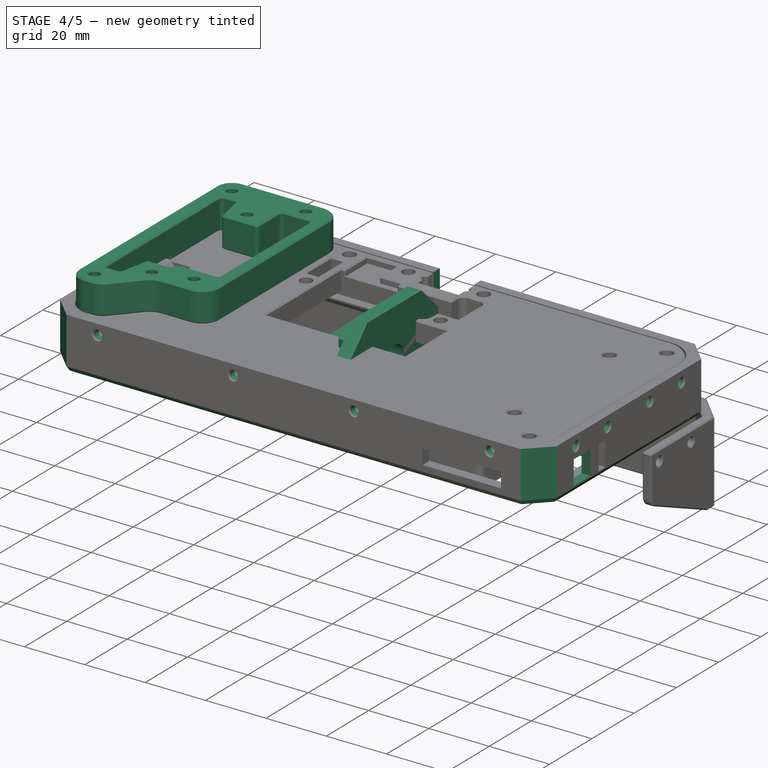
[diagram: stage 4 of 5 — iso view after this stage's code; geometry added in this stage tinted green]
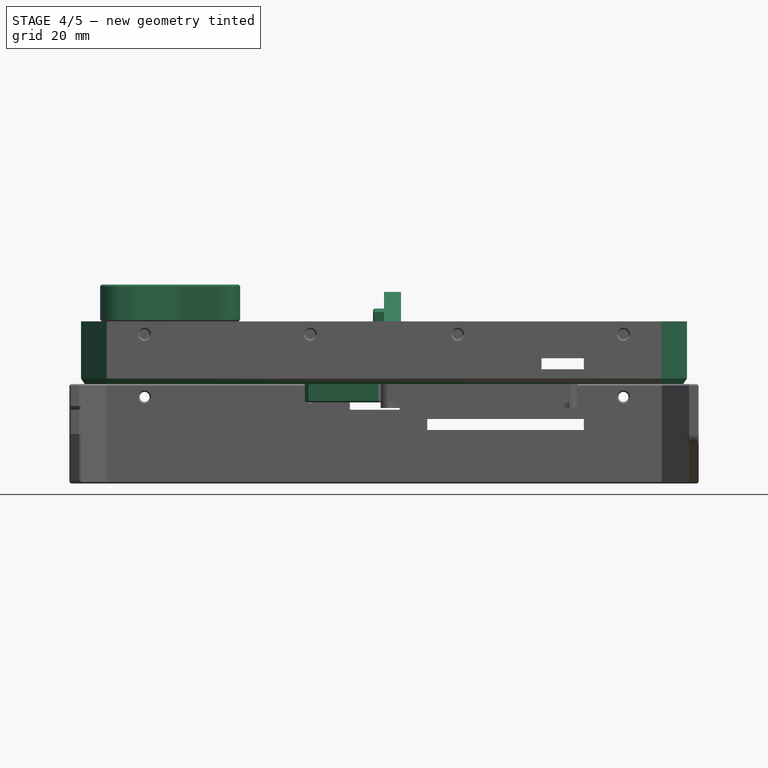
[diagram: stage 4 of 5 — front view after this stage's code; geometry added in this stage tinted green]
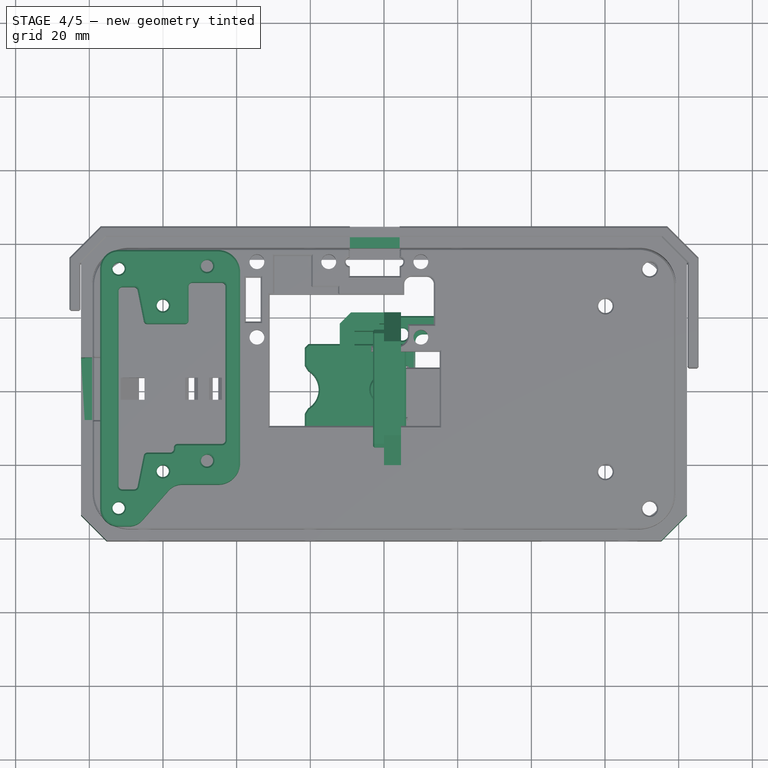
[diagram: stage 4 of 5 — top view after this stage's code; geometry added in this stage tinted green]
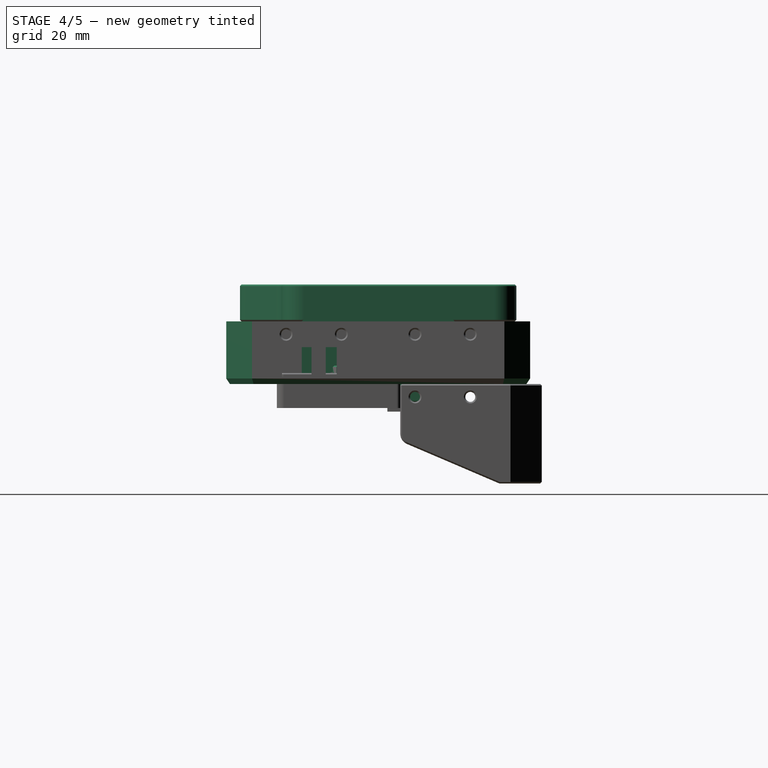
[diagram: stage 4 of 5 — right view after this stage's code; geometry added in this stage tinted green]
FEATURE [Sketcher::SketchObject] Sketch009
  FullyConstrained = true
  MapMode = 5
  Placement = pos=(-82.25,1.83e-14,-1.83e-14) rot=(0.57735,0.57735,0.57735;2.0944rad)
  Support = -> [DatumPlane004]
  expr: Constraints[8] = <<args>>.tablet_thickness
  expr: Constraints[9] = <<args>>.case_front_thickness
  sketch-geometry (4):
    g0: LineSegment StartX=-6 StartY=2 StartZ=0 EndX=6 EndY=2 EndZ=0
    g1: LineSegment StartX=6 StartY=2 StartZ=0 EndX=6 EndY=10 EndZ=0
    g2: LineSegment StartX=6 StartY=10 StartZ=0 EndX=-6 EndY=10 EndZ=0
    g3: LineSegment StartX=-6 StartY=10 StartZ=0 EndX=-6 EndY=2 EndZ=0
  constraints (12):
    c: Coincident(g0,g1)
    c: Coincident(g1,g2)
    c: Coincident(g2,g3)
    c: Coincident(g3,g0)
    c: Horizontal(g0)
    c: Horizontal(g2)
    c: Vertical(g1)
    c: Vertical(g3)
    c: DistanceY(g3,g3) = 8
    c: DistanceY(g-1,g0) = 2
    c: DistanceX(g2,g2) = 12
    c: DistanceX(g2,g-1) = 6
FEATURE [PartDesign::Pocket] Pocket008  label="usb-slot"
  BaseFeature = -> Pocket007
  Direction = (1,1,1)
  Length = 3
  Length2 = 100
  Profile = -> Sketch009
  Reversed = true
  Type = 0
  expr: Length = <<args>>.case_side_thickness
FEATURE [Sketcher::SketchObject] Sketch010
  FullyConstrained = true
  MapMode = 5
  Placement = pos=(-82.25,1.83e-14,-1.83e-14) rot=(0.57735,0.57735,0.57735;2.0944rad)
  Support = -> [DatumPlane004]
  expr: Constraints[10] = <<args>>.tablet_height / 2 - 13
  expr: Constraints[11] = <<args>>.case_front_thickness
  expr: Constraints[8] = <<args>>.tablet_thickness
  sketch-geometry (4):
    g0: LineSegment StartX=12.25 StartY=10 StartZ=0 EndX=25.25 EndY=10 EndZ=0
    g1: LineSegment StartX=25.25 StartY=10 StartZ=0 EndX=25.25 EndY=2 EndZ=0
    g2: LineSegment StartX=25.25 StartY=2 StartZ=0 EndX=12.25 EndY=2 EndZ=0
    g3: LineSegment StartX=12.25 StartY=2 StartZ=0 EndX=12.25 EndY=10 EndZ=0
  constraints (12):
    c: Coincident(g0,g1)
    c: Coincident(g1,g2)
    c: Coincident(g2,g3)
    c: Coincident(g3,g0)
    c: Horizontal(g0)
    c: Horizontal(g2)
    c: Vertical(g1)
    c: Vertical(g3)
    c: DistanceY(g3,g3) = 8
    c: DistanceX(g0,g0) = 13
    c: DistanceX(g-1,g1) = 25.25
    c: DistanceY(g-1,g2) = 2
FEATURE [PartDesign::Pocket] Pocket009  label="speaker-slot"
  BaseFeature = -> Pocket008
  Direction = (1,1,1)
  Length = 3
  Length2 = 100
  Profile = -> Sketch010
  Reversed = true
  Type = 0
  expr: Length = <<args>>.case_side_thickness
FEATURE [Sketcher::SketchObject] Sketch011
  FullyConstrained = true
  MapMode = 5
  Placement = pos=(82.25,-1.83e-14,1.83e-14) rot=(0.57735,0.57735,0.57735;2.0944rad)
  Support = -> [DatumPlane003]
  expr: Constraints[11] = <<args>>.tablet_height / 2 - 16.5 + <<args>>.tablet_thickness / 2 + 0.35
  expr: Constraints[8] = <<args>>.tablet_thickness
  expr: Constraints[9] = <<args>>.case_front_thickness
  sketch-geometry (4):
    g0: LineSegment StartX=-18.1 StartY=2 StartZ=0 EndX=-26.1 EndY=2 EndZ=0
    g1: LineSegment StartX=-26.1 StartY=2 StartZ=0 EndX=-26.1 EndY=10 EndZ=0
    g2: LineSegment StartX=-26.1 StartY=10 StartZ=0 EndX=-18.1 EndY=10 EndZ=0
    g3: LineSegment StartX=-18.1 StartY=10 StartZ=0 EndX=-18.1 EndY=2 EndZ=0
  constraints (12):
    c: Coincident(g0,g1)
    c: Coincident(g1,g2)
    c: Coincident(g2,g3)
    c: Coincident(g3,g0)
    c: Horizontal(g0)
    c: Horizontal(g2)
    c: Vertical(g1)
    c: Vertical(g3)
    c: DistanceX(g2,g2) = 8
    c: DistanceY(g-1,g0) = 2
    c: Equal(g1,g2)
    c: DistanceX(g0,g-1) = 26.1
FEATURE [PartDesign::Pocket] Pocket010  label="headphone-slot"
  BaseFeature = -> Pocket009
  Direction = (1,1,1)
  Length = 3
  Length2 = 100
  Profile = -> Sketch011
  Type = 0
  expr: Length = <<args>>.case_side_thickness
FEATURE [PartDesign::Plane] DatumPlane008  label="center-plane-y"
  Length = 182.638
  MapMode = 5
  Placement = pos=(0,0,0) rot=(1,0,0;1.5708rad)
  ResizeMode = 0
  Support = -> [XZ_Plane]
  Width = 68.1384
FEATURE [Sketcher::SketchObject] Sketch012
  FullyConstrained = true
  MapMode = 5
  Placement = pos=(0,41.25,9.2e-15) rot=(1,0,0;1.5708rad)
  Support = -> [DatumPlane006]
  expr: Constraints[10] = <<args>>.tablet_width / 2 - 23 - 22 - 4
  expr: Constraints[9] = <<args>>.case_front_thickness + (<<args>>.tablet_thickness - 3) / 2 + <<args>>.button_offset
  sketch-geometry (4):
    g0: LineSegment StartX=26.25 StartY=7 StartZ=0 EndX=30.25 EndY=7 EndZ=0
    g1: LineSegment StartX=30.25 StartY=7 StartZ=0 EndX=30.25 EndY=4 EndZ=0
    g2: LineSegment StartX=30.25 StartY=4 StartZ=0 EndX=26.25 EndY=4 EndZ=0
    g3: LineSegment StartX=26.25 StartY=4 StartZ=0 EndX=26.25 EndY=7 EndZ=0
  constraints (12):
    c: Coincident(g0,g1)
    c: Coincident(g1,g2)
    c: Coincident(g2,g3)
    c: Coincident(g3,g0)
    c: Horizontal(g0)
    c: Horizontal(g2)
    c: Vertical(g1)
    c: Vertical(g3)
    c: DistanceY(g3,g3) = 3
    c: DistanceY(g-1,g2) = 4
    c: DistanceX(g-1,g1) = 30.25
    c: DistanceX(g2,g2) = 4
FEATURE [PartDesign::Pad] Pad001  label="button-seperator"
  BaseFeature = -> Pocket010
  Direction = (1,1,1)
  Length = 1.5
  Length2 = 100
  Profile = -> Sketch012
  Type = 0
  expr: Length = 1.5
FEATURE [Sketcher::SketchObject] Sketch014
  FullyConstrained = true
  MapMode = 5
  Placement = pos=(0,0,0) rot=(1,0,0;1.5708rad)
  Support = -> [DatumPlane008]
  expr: Constraints[0] = <<args>>.tablet_thickness + <<args>>.case_front_thickness + <<args>>.case_back_thickness / 2
  expr: Constraints[1] = <<args>>.m2p5_bolt_hole_radius
  sketch-geometry (4):
    g0: Circle CenterX=-65 CenterY=13.5 CenterZ=0 NormalX=0 NormalY=0 NormalZ=1 AngleXU=0 Radius=1.35
    g1: Circle CenterX=-20 CenterY=13.5 CenterZ=0 NormalX=0 NormalY=0 NormalZ=1 AngleXU=0 Radius=1.35
    g2: Circle CenterX=20 CenterY=13.5 CenterZ=0 NormalX=0 NormalY=0 NormalZ=1 AngleXU=0 Radius=1.35
    g3: Circle CenterX=65 CenterY=13.5 CenterZ=0 NormalX=0 NormalY=0 NormalZ=1 AngleXU=0 Radius=1.35
  constraints (12):
    c: DistanceY(g-1,g0) = 13.5
    c: Radius(g0) = 1.35
    c: Horizontal(g0,g1)
    c: Horizontal(g1,g2)
    c: Horizontal(g2,g3)
    c: Equal(g3,g2)
    c: Equal(g2,g1)
    c: Equal(g1,g0)
    c: DistanceX(g0,g-1) = 65
    c: DistanceX(g-1,g3) = 65
    c: DistanceX(g-1,g2) = 20
    c: DistanceX(g1,g-1) = 20
FEATURE [PartDesign::Pocket] Pocket012  label="tb-bolt"
  BaseFeature = -> Pad001
  Direction = (1,1,1)
  Length = 5
  Length2 = 100
  Midplane = true
  Profile = -> Sketch014
  Reversed = true
  Type = 1
FEATURE [Sketcher::SketchObject] Sketch019
  FullyConstrained = true
  MapMode = 5
  Placement = pos=(0,0,0) rot=(0.57735,0.57735,0.57735;2.0944rad)
  Support = -> [DatumPlane002]
  expr: Constraints[10] = <<args>>.tablet_thickness + <<args>>.case_front_thickness + <<args>>.case_back_thickness / 2
  expr: Constraints[11] = <<args>>.m2p5_bolt_hole_radius
  sketch-geometry (4):
    g0: Circle CenterX=-25 CenterY=13.5 CenterZ=0 NormalX=0 NormalY=0 NormalZ=1 AngleXU=0 Radius=1.35
    g1: Circle CenterX=-10 CenterY=13.5 CenterZ=0 NormalX=0 NormalY=0 NormalZ=1 AngleXU=0 Radius=1.35
    g2: Circle CenterX=10 CenterY=13.5 CenterZ=0 NormalX=0 NormalY=0 NormalZ=1 AngleXU=0 Radius=1.35
    g3: Circle CenterX=25 CenterY=13.5 CenterZ=0 NormalX=0 NormalY=0 NormalZ=1 AngleXU=0 Radius=1.35
  constraints (12):
    c: Equal(g0,g1)
    c: Equal(g1,g2)
    c: Equal(g2,g3)
    c: Horizontal(g0,g1)
    c: Horizontal(g1,g2)
    c: Horizontal(g2,g3)
    c: DistanceX(g1,g-1) = 10
    c: DistanceX(g-1,g2) = 10
    c: DistanceX(g-1,g3) = 25
    c: DistanceX(g0,g-1) = 25
    c: DistanceY(g-1,g2) = 13.5
    c: Radius(g3) = 1.35
FEATURE [PartDesign::Pocket] Pocket016  label="lr-bolt"
  BaseFeature = -> Pocket012
  Direction = (1,1,1)
  Length = 5
  Length2 = 100
  Midplane = true
  Profile = -> Sketch019
  Type = 1
FEATURE [PartDesign::Chamfer] Chamfer  label="corner-chamfer"
  Angle = 45
  Base = -> Pocket016 [Edge176,Edge177,Edge196,Edge197]
  BaseFeature = -> Pocket016
  ChamferType = 0
  FlipDirection = false
  Size = 7
  Size2 = 1
  SupportTransform = false
  UseAllEdges = false
FEATURE [PartDesign::Chamfer] Chamfer005  label="edge-chamfer"
  Angle = 45
  Base = -> Chamfer [Edge3,Edge5,Edge7,Edge8,Edge6,Edge4,Edge2,Edge1]
  BaseFeature = -> Chamfer
  ChamferType = 1
  FlipDirection = false
  Size = 1
  Size2 = 1.5
  SupportTransform = false
  UseAllEdges = false
FEATURE [PartDesign::Chamfer] Chamfer006  label="screen-chamfer"
  Angle = 45
  Base = -> Chamfer005 [Edge11]
  BaseFeature = -> Chamfer005
  ChamferType = 1
  FlipDirection = false
  Size = 1
  Size2 = 1.5
  SupportTransform = false
  UseAllEdges = false
FEATURE [PartDesign::Body] Body008  label="cable-holder"
  Group = -> [Sketch055,Pad012,Sketch056,Pocket044,Fillet004,Fillet005,Chamfer019]
  Origin = -> Origin008
  Placement = pos=(-37.1,0,17) rot=(0,0,1;0rad)
  Tip = -> Chamfer019
FEATURE [Part::Feature] Chamfer035001  label="din-mounter"
  Placement = pos=(48,4.75,27) rot=(1,0,0;3.14159rad)
FEATURE [Part::Feature] Chamfer036004001  label="din-spacer-base"
  Placement = pos=(58,-22.5,17) rot=(0,0,1;0rad)
FEATURE [PartDesign::FeatureBase] BaseFeature
  BaseFeature = -> Chamfer036004001
FEATURE [PartDesign::Body] Body005  label="back"
  Group = -> [Sketch031,Pad006,Fillet003,Sketch034,Pocket026,Sketch035,Pocket027,Sketch036,Pocket028,Sketch037,Pocket029,Sketch038,Pocket030,Sketch039,Pocket031,Sketch040,Pocket032,Sketch067,Pocket055,Sketch068,Pocket056,Sketch069,Pocket057,Sketch070,Pocket058,Sketch071,Pocket059,Chamfer036004006,Chamfer036004007]
  Origin = -> Origin005
  Placement = pos=(0,0,10) rot=(0,0,1;0rad)
  Tip = -> Chamfer036004007
  expr: .Placement.Base.z = <<args>>.tablet_thickness + <<args>>.case_front_thickness
FEATURE [Part::Feature] Chamfer001001  label="din-end-base"
FEATURE [PartDesign::FeatureBase] BaseFeature001
  BaseFeature = -> Chamfer001001
FEATURE [PartDesign::FeatureBase] Clone001
  BaseFeature = -> Chamfer006
FEATURE [Sketcher::SketchObject] Sketch073
  ExternalGeometry = -> [Clone001]
  FullyConstrained = true
  MapMode = 5
  Placement = pos=(-82.25,0,0) rot=(0.57735,-0.57735,-0.57735;2.0944rad)
  Support = -> [Clone001]
  sketch-geometry (8):
    g0: LineSegment StartX=-6 StartY=10 StartZ=0 EndX=6 EndY=10 EndZ=0
    g1: LineSegment StartX=6 StartY=10 StartZ=0 EndX=6 EndY=2 EndZ=0
    g2: LineSegment StartX=6 StartY=2 StartZ=0 EndX=-6 EndY=2 EndZ=0
    g3: LineSegment StartX=-6 StartY=2 StartZ=0 EndX=-6 EndY=10 EndZ=0
    g4: LineSegment StartX=-4 StartY=9.5 StartZ=0 EndX=4 EndY=9.5 EndZ=0
    g5: LineSegment StartX=4 StartY=9.5 StartZ=0 EndX=4 EndY=4.5 EndZ=0
    g6: LineSegment StartX=4 StartY=4.5 StartZ=0 EndX=-4 EndY=4.5 EndZ=0
    g7: LineSegment StartX=-4 StartY=4.5 StartZ=0 EndX=-4 EndY=9.5 EndZ=0
  constraints (23):
    c: DistanceX(g-3,g-4) = 12
    c: Coincident(g0,g1)
    c: Coincident(g1,g2)
    c: Coincident(g2,g3)
    c: Coincident(g3,g0)
    c: Horizontal(g0)
    c: Horizontal(g2)
    c: Vertical(g1)
    c: Vertical(g3)
    c: Coincident(g0,g-3)
    c: Coincident(g1,g-4)
    c: Coincident(g4,g5)
    c: Coincident(g5,g6)
    c: Coincident(g6,g7)
    c: Coincident(g7,g4)
    c: Horizontal(g4)
    c: Horizontal(g6)
    c: Vertical(g5)
    c: Vertical(g7)
    c: DistanceY(g2,g6) = 2.5
    c: DistanceX(g2,g6) = 2
    c: DistanceX(g5,g1) = 2
    c: DistanceY(g5,g5) = 5
FEATURE [PartDesign::Pad] Pad014  label="usb-slot001"
  BaseFeature = -> Clone001
  Direction = (1,1,1)
  Length = 3
  Length2 = 100
  Profile = -> Sketch073
  Refine = true
  Reversed = true
  Type = 0
  expr: Length = <<args>>.case_side_thickness
FEATURE [Sketcher::SketchObject] Sketch074
  FullyConstrained = true
  MapMode = 5
  Placement = pos=(-82.25,0,0) rot=(0.57735,-0.57735,-0.57735;2.0944rad)
  Support = -> [Pad014]
  expr: Constraints[10] = <<args>>.case_front_thickness + 2
  sketch-geometry (4):
    g0: LineSegment StartX=-8.5 StartY=16 StartZ=0 EndX=8.5 EndY=16 EndZ=0
    g1: LineSegment StartX=8.5 StartY=16 StartZ=0 EndX=8.5 EndY=4 EndZ=0
    g2: LineSegment StartX=8.5 StartY=4 StartZ=0 EndX=-8.5 EndY=4 EndZ=0
    g3: LineSegment StartX=-8.5 StartY=4 StartZ=0 EndX=-8.5 EndY=16 EndZ=0
  constraints (12):
    c: Coincident(g0,g1)
    c: Coincident(g1,g2)
    c: Coincident(g2,g3)
    c: Coincident(g3,g0)
    c: Horizontal(g0)
    c: Horizontal(g2)
    c: Vertical(g1)
    c: Vertical(g3)
    c: DistanceX(g0,g0) = 17
    c: DistanceX(g2,g-1) = 8.5
    c: DistanceY(g-1,g1) = 4
    c: DistanceY(g1,g1) = 12
FEATURE [PartDesign::Pocket] Pocket061
  BaseFeature = -> Pad014
  Direction = (1,1,1)
  Length = 1
  Length2 = 100
  Profile = -> Sketch074
  Type = 0
FEATURE [Sketcher::SketchObject] Sketch075
  ExternalGeometry = -> [Pocket061]
  FullyConstrained = true
  MapMode = 5
  Placement = pos=(-82.25,0,0) rot=(0.57735,-0.57735,-0.57735;2.0944rad)
  Support = -> [Pocket061]
  sketch-geometry (4):
    g0: LineSegment StartX=-8.5 StartY=17 StartZ=0 EndX=8.5 EndY=17 EndZ=0
    g1: LineSegment StartX=8.5 StartY=17 StartZ=0 EndX=8.5 EndY=12 EndZ=0
    g2: LineSegment StartX=8.5 StartY=12 StartZ=0 EndX=-8.5 EndY=12 EndZ=0
    g3: LineSegment StartX=-8.5 StartY=12 StartZ=0 EndX=-8.5 EndY=17 EndZ=0
  constraints (12):
    c: Coincident(g0,g1)
    c: Coincident(g1,g2)
    c: Coincident(g2,g3)
    c: Coincident(g3,g0)
    c: Horizontal(g0)
    c: Horizontal(g2)
    c: Vertical(g1)
    c: Vertical(g3)
    c: PointOnObject(g0,g-5)
    c: Vertical(g2,g-3)
    c: Vertical(g1,g-4)
    c: DistanceY(g1,g1) = 5
FEATURE [PartDesign::Pocket] Pocket062
  BaseFeature = -> Pocket061
  Direction = (1,1,1)
  Length = 5
  Length2 = 100
  Profile = -> Sketch075
  Type = 0
FEATURE [Sketcher::SketchObject] Sketch076
  ExternalGeometry = -> [Pocket062]
  FullyConstrained = true
  MapMode = 5
  Placement = pos=(-82.25,0,0) rot=(0.57735,-0.57735,-0.57735;2.0944rad)
  Support = -> [Pocket062]
  sketch-geometry (2):
    g0: Circle CenterX=-10 CenterY=13.5 CenterZ=0 NormalX=0 NormalY=0 NormalZ=1 AngleXU=0 Radius=1.35
    g1: Circle CenterX=10 CenterY=13.5 CenterZ=0 NormalX=0 NormalY=0 NormalZ=1 AngleXU=0 Radius=1.35
  constraints (4):
    c: Coincident(g0,g-3)
    c: Coincident(g1,g-4)
    c: Equal(g1,g0)
    c: Equal(g0,g-3)
FEATURE [PartDesign::Pad] Pad015
  BaseFeature = -> Pocket062
  Direction = (1,1,1)
  Length = 3
  Length2 = 100
  Profile = -> Sketch076
  Refine = true
  Reversed = true
  Type = 0
  expr: Length = <<args>>.case_side_thickness
FEATURE [Sketcher::SketchObject] Sketch077
  FullyConstrained = true
  MapMode = 5
  Placement = pos=(-82.25,0,0) rot=(0.57735,-0.57735,-0.57735;2.0944rad)
  Support = -> [Pad015]
  expr: Constraints[2] = <<args>>.case_front_thickness + <<args>>.tablet_thickness + <<args>>.case_back_thickness / 2
  expr: Constraints[5] = <<args>>.m2p5_bolt_hole_radius
  sketch-geometry (2):
    g0: Circle CenterX=-12 CenterY=13.5 CenterZ=0 NormalX=0 NormalY=0 NormalZ=1 AngleXU=0 Radius=1.35
    g1: Circle CenterX=12 CenterY=13.5 CenterZ=0 NormalX=0 NormalY=0 NormalZ=1 AngleXU=0 Radius=1.35
  constraints (6):
    c: Horizontal(g0,g1)
    c: Equal(g1,g0)
    c: DistanceY(g-1,g1) = 13.5
    c: DistanceX(g0,g-1) = 12
    c: DistanceX(g-1,g1) = 12
    c: Radius(g1) = 1.35
FEATURE [PartDesign::Pocket] Pocket063
  BaseFeature = -> Pad015
  Direction = (1,1,1)
  Length = 3
  Length2 = 100
  Profile = -> Sketch077
  Type = 0
  expr: Length = <<args>>.case_side_thickness
FEATURE [PartDesign::Chamfer] Chamfer036004010
  Angle = 45
  Base = -> Pocket063 [Face69,Face68,Face67,Face59,Face58,Face57,Face56,Face39,Face38,Face37,Face36,Face55,Face53,Face52,Face54,Face70]
  BaseFeature = -> Pocket063
  ChamferType = 0
  FlipDirection = false
  Size = 0.4
  Size2 = 1
  SupportTransform = false
  UseAllEdges = false
FEATURE [Sketcher::SketchObject] Sketch084
  ExternalGeometry = -> [BaseFeature]
  FullyConstrained = true
  MapMode = 5
  Placement = pos=(-17,0,0) rot=(0.57735,-0.57735,-0.57735;2.0944rad)
  Support = -> [BaseFeature]
  sketch-geometry (4):
    g0: LineSegment StartX=-26 StartY=10 StartZ=0 EndX=-19 EndY=10 EndZ=0
    g1: LineSegment StartX=-19 StartY=10 StartZ=0 EndX=-19 EndY=8.8 EndZ=0
    g2: LineSegment StartX=-19 StartY=8.8 StartZ=0 EndX=-26 EndY=8.8 EndZ=0
    g3: LineSegment StartX=-26 StartY=8.8 StartZ=0 EndX=-26 EndY=10 EndZ=0
  constraints (12):
    c: Coincident(g0,g1)
    c: Coincident(g1,g2)
    c: Coincident(g2,g3)
    c: Coincident(g3,g0)
    c: Horizontal(g0)
    c: Horizontal(g2)
    c: Vertical(g1)
    c: Vertical(g3)
    c: PointOnObject(g0,g-3)
    c: DistanceX(g2,g2) = 7
    c: DistanceY(g3,g3) = 1.2
    c: DistanceX(g1,g-1) = 19
FEATURE [PartDesign::Pocket] Pocket069
  BaseFeature = -> BaseFeature
  Direction = (1,1,1)
  Length = 5
  Length2 = 100
  Profile = -> Sketch084
  Type = 0
FEATURE [PartDesign::Body] Body015  label="back-usb-pcb"
  BaseFeature = -> Chamfer036004007
  Group = -> [Clone003,Sketch079,Pad016,Sketch080,Pocket065,Sketch081,Pocket066,Chamfer036004013,Sketch082,Pocket067,Chamfer036004018,Sketch085,Pocket070,Sketch086,Pocket071,Chamfer036004019,Chamfer036004020,Sketch087,Pocket072,Sketch088,Pad017,Sketch089,Pocket073,Chamfer036004021]
  Origin = -> Origin015
  Placement = pos=(0,0,10) rot=(0,0,1;0rad)
  Tip = -> Chamfer036004021
FEATURE [Sketcher::SketchObject] Sketch090
  FullyConstrained = true
  MapMode = 5
  Support = -> [XY_Plane022]
  sketch-geometry (12):
    g0: LineSegment StartX=50 StartY=0 StartZ=0 EndX=50 EndY=20 EndZ=0
    g1: LineSegment StartX=50 StartY=20 StartZ=0 EndX=0 EndY=20 EndZ=0
    g2: LineSegment StartX=0 StartY=20 StartZ=0 EndX=0 EndY=0 EndZ=0
    g3: LineSegment StartX=0 StartY=0 StartZ=0 EndX=8.5 EndY=0 EndZ=0
    g4: LineSegment StartX=8.5 StartY=0 StartZ=0 EndX=8.5 EndY=15 EndZ=0
    g5: LineSegment StartX=8.5 StartY=15 StartZ=0 EndX=41.5 EndY=15 EndZ=0
    g6: LineSegment StartX=41.5 StartY=15 StartZ=0 EndX=41.5 EndY=0 EndZ=0
    g7: LineSegment StartX=41.5 StartY=0 StartZ=0 EndX=50 EndY=0 EndZ=0
    g8: Circle CenterX=5 CenterY=15 CenterZ=0 NormalX=0 NormalY=0 NormalZ=1 AngleXU=0 Radius=1.65
    g9: Circle CenterX=5 CenterY=5 CenterZ=0 NormalX=0 NormalY=0 NormalZ=1 AngleXU=0 Radius=1.65
    g10: Circle CenterX=45 CenterY=15 CenterZ=0 NormalX=0 NormalY=0 NormalZ=1 AngleXU=0 Radius=1.65
    g11: Circle CenterX=45 CenterY=5 CenterZ=0 NormalX=0 NormalY=0 NormalZ=1 AngleXU=0 Radius=1.65
  constraints (35):
    c: Coincident(g0,g1)
    c: Coincident(g1,g2)
    c: Horizontal(g1)
    c: Vertical(g0)
    c: Vertical(g2)
    c: DistanceX(g1,g1) = 50
    c: DistanceY(g0,g0) = 20
    c: Coincident(g2,g-1)
    c: Horizontal(g0,g2)
    c: Coincident(g2,g3)
    c: PointOnObject(g3,g-1)
    c: Coincident(g3,g4)
    c: Vertical(g4)
    c: Coincident(g4,g5)
    c: Horizontal(g5)
    c: Coincident(g5,g6)
    c: PointOnObject(g6,g-1)
    c: Vertical(g6)
    c: Coincident(g6,g7)
    c: Coincident(g7,g0)
    c: Horizontal(g11,g9)
    c: Horizontal(g8,g10)
    c: Vertical(g10,g11)
    c: Vertical(g8,g9)
    c: DistanceY(g9,g8) = 10
    c: DistanceX(g8,g10) = 40
    c: DistanceX(g1,g8) = 5
    c: DistanceY(g8,g1) = 5
    c: Equal(g8,g9)
    c: Equal(g9,g10)
    c: Equal(g10,g11)
    c: Radius(g8) = 1.65
    c: DistanceX(g3,g3) = 8.5
    c: DistanceX(g7,g7) = 8.5
    c: DistanceY(g4,g4) = 15
FEATURE [PartDesign::Pad] Pad018
  Direction = (1,1,1)
  Length = 2.5
  Length2 = 100
  Profile = -> Sketch090
  Type = 0
FEATURE [PartDesign::Fillet] Fillet006
  Base = -> Pad018 [Edge11,Edge14,Edge17,Edge20,Edge5,Edge2,Edge8,Edge1]
  BaseFeature = -> Pad018
  Radius = 2
  SupportTransform = false
  UseAllEdges = false
FEATURE [PartDesign::Chamfer] Chamfer036004022
  Angle = 45
  Base = -> Fillet006 [Face2,Face5]
  BaseFeature = -> Fillet006
  ChamferType = 0
  FlipDirection = false
  Size = 0.4
  Size2 = 1
  SupportTransform = false
  UseAllEdges = false
FEATURE [PartDesign::Body] Body016  label="usb-pcb-spacer-r1"
  Group = -> [Sketch090,Pad018,Fillet006,Chamfer036004022]
  Origin = -> Origin022
  Placement = pos=(-17.5,18,17) rot=(0,0,1;0rad)
  Tip = -> Chamfer036004022
FEATURE [Sketcher::SketchObject] Sketch091
  FullyConstrained = true
  MapMode = 5
  Support = -> [XY_Plane023]
  sketch-geometry (5):
    g0: Circle CenterX=0 CenterY=0 CenterZ=0 NormalX=0 NormalY=0 NormalZ=1 AngleXU=0 Radius=2
    g1: ArcOfCircle CenterX=0 CenterY=0 CenterZ=0 NormalX=0 NormalY=0 NormalZ=1 AngleXU=0 Radius=4 StartAngle=2.32884 EndAngle=7.09594
    g2: LineSegment StartX=-2.75 StartY=2.90474 StartZ=0 EndX=-2.75 EndY=6.5 EndZ=0
    g3: LineSegment StartX=-2.75 StartY=6.5 StartZ=0 EndX=2.75 EndY=6.5 EndZ=0
    g4: LineSegment StartX=2.75 StartY=6.5 StartZ=0 EndX=2.75 EndY=2.90474 EndZ=0
  constraints (14):
    c: Coincident(g0,g-1)
    c: Radius(g0) = 2
    c: Coincident(g1,g0)
    c: Vertical(g2)
    c: Coincident(g2,g3)
    c: Horizontal(g3)
    c: Coincident(g3,g4)
    c: Vertical(g4)
    c: Coincident(g1,g2)
    c: Coincident(g1,g4)
    c: Radius(g1) = 4
    c: DistanceY(g0,g2) = 6.5
    c: DistanceX(g2,g0) = 2.75
    c: DistanceX(g0,g3) = 2.75
FEATURE [PartDesign::Pad] Pad019
  Direction = (1,1,1)
  Length = 6
  Length2 = 100
  Profile = -> Sketch091
  Type = 0
FEATURE [PartDesign::Chamfer] Chamfer036004023
  Angle = 45
  Base = -> Pad019 [Face7,Face6]
  BaseFeature = -> Pad019
  ChamferType = 0
  FlipDirection = false
  Size = 0.4
  Size2 = 1
  SupportTransform = false
  UseAllEdges = false
FEATURE [PartDesign::Body] Body017  label="button-supporter-r1"
  Group = -> [Sketch091,Pad019,Chamfer036004023]
  Origin = -> Origin023
  Placement = pos=(19,25.5,21.25) rot=(0,0,1;0rad)
  Tip = -> Chamfer036004023
FEATURE [PartDesign::Chamfer] Chamfer036004024
  Angle = 45
  Base = -> Pocket069 [Edge223,Edge222,Edge273,Edge274,Edge224,Edge269,Edge271,Edge169,Edge275,Edge168,Edge268,Edge167]
  BaseFeature = -> Pocket069
  ChamferType = 0
  FlipDirection = false
  Size = 0.4
  Size2 = 1
  SupportTransform = false
  UseAllEdges = false
FEATURE [PartDesign::Body] Body009  label="din-spacer"
  BaseFeature = -> Chamfer036004001
  Group = -> [BaseFeature,Sketch084,Pocket069,Chamfer036004024]
  Origin = -> Origin009
  Placement = pos=(60,-22.5,27) rot=(0,1,0;3.14159rad)
  Tip = -> Chamfer036004024
FEATURE [Part::Mirroring] Part__Mirroring  label="din-spacer-mirror"
  Base = (0,0,0)
  Normal = (0,0,1)
  Placement = pos=(-60.05,-22.5,27) rot=(0,0,1;0rad)
  Source = -> Chamfer036004024
FEATURE [Sketcher::SketchObject] Sketch092
  FullyConstrained = true
  MapMode = 5
  Placement = pos=(0,0,0) rot=(0.57735,0.57735,0.57735;2.0944rad)
  Support = -> [YZ_Plane024]
  expr: Constraints[5] = <<args>>.m2p5_bolt_hole_radius
  sketch-geometry (6):
    g0: Circle CenterX=12 CenterY=11.5 CenterZ=0 NormalX=0 NormalY=0 NormalZ=1 AngleXU=0 Radius=1.35
    g1: Circle CenterX=-12 CenterY=11.5 CenterZ=0 NormalX=0 NormalY=0 NormalZ=1 AngleXU=0 Radius=1.35
    g2: LineSegment StartX=-16 StartY=15.5 StartZ=0 EndX=16 EndY=15.5 EndZ=0
    g3: LineSegment StartX=16 StartY=15.5 StartZ=0 EndX=16 EndY=0 EndZ=0
    g4: LineSegment StartX=16 StartY=0 StartZ=0 EndX=-16 EndY=0 EndZ=0
    g5: LineSegment StartX=-16 StartY=0 StartZ=0 EndX=-16 EndY=15.5 EndZ=0
  constraints (18):
    c: DistanceX(g1,g0) = 24
    c: Horizontal(g0,g1)
    c: DistanceX(g0) = 12
    c: DistanceY(g-1,g1) = 11.5
    c: Equal(g1,g0)
    c: Radius(g0) = 1.35
    c: Coincident(g2,g3)
    c: Coincident(g3,g4)
    c: Coincident(g4,g5)
    c: Coincident(g5,g2)
    c: Horizontal(g2)
    c: Horizontal(g4)
    c: Vertical(g3)
    c: Vertical(g5)
    c: PointOnObject(g3,g-1)
    c: DistanceY(g3,g3) = 15.5
    c: DistanceX(g-1,g3) = 16
    c: DistanceX(g4,g-1) = 16
FEATURE [PartDesign::Pad] Pad020
  Direction = (1,1,1)
  Length = 3
  Length2 = 100
  Placement = pos=(0,0,0) rot=(0.57735,0.57735,0.57735;2.0944rad)
  Profile = -> Sketch092
  Reversed = true
  Type = 0
FEATURE [Sketcher::SketchObject] Sketch093
  ExternalGeometry = -> [Pad020]
  FullyConstrained = true
  MapMode = 5
  Placement = pos=(-3,7e-16,-7e-16) rot=(0.57735,0.57735,-0.57735;4.18879rad)
  Support = -> [Pad020]
  sketch-geometry (8):
    g0: LineSegment StartX=-16 StartY=-8.7e-15 StartZ=0 EndX=-10 EndY=-8.7e-15 EndZ=0
    g1: LineSegment StartX=-10 StartY=-8.7e-15 StartZ=0 EndX=-10 EndY=-8 EndZ=0
    g2: LineSegment StartX=-10 StartY=-8 StartZ=0 EndX=-16 EndY=-8 EndZ=0
    g3: LineSegment StartX=-16 StartY=-8 StartZ=0 EndX=-16 EndY=-8.9e-15 EndZ=0
    g4: LineSegment StartX=16 StartY=8.9e-15 StartZ=0 EndX=10 EndY=8.9e-15 EndZ=0
    g5: LineSegment StartX=10 StartY=8.9e-15 StartZ=0 EndX=10 EndY=-8 EndZ=0
    g6: LineSegment StartX=10 StartY=-8 StartZ=0 EndX=16 EndY=-8 EndZ=0
    g7: LineSegment StartX=16 StartY=-8 StartZ=0 EndX=16 EndY=8.9e-15 EndZ=0
  constraints (22):
    c: Coincident(g0,g1)
    c: Coincident(g1,g2)
    c: Coincident(g2,g3)
    c: Coincident(g3,g0)
    c: Horizontal(g0)
    c: Horizontal(g2)
    c: Vertical(g1)
    c: Vertical(g3)
    c: Coincident(g0,g-3)
    c: Coincident(g4,g5)
    c: Coincident(g5,g6)
    c: Coincident(g6,g7)
    c: Coincident(g7,g4)
    c: Horizontal(g4)
    c: Horizontal(g6)
    c: Vertical(g5)
    c: Vertical(g7)
    c: Coincident(g4,g-4)
    c: DistanceX(g0,g0) = 6
    c: Horizontal(g1,g5)
    c: Equal(g0,g4)
    c: DistanceY(g3,g3) = 8
FEATURE [PartDesign::Pocket] Pocket074
  BaseFeature = -> Pad020
  Direction = (1,1,1)
  Length = 5
  Length2 = 100
  Placement = pos=(0,0,0) rot=(0.57735,0.57735,0.57735;2.0944rad)
  Profile = -> Sketch093
  Type = 1
FEATURE [Sketcher::SketchObject] Sketch094
  ExternalGeometry = -> [Pocket074]
  FullyConstrained = true
  MapMode = 5
  Placement = pos=(0,0,0) rot=(0.57735,0.57735,0.57735;2.0944rad)
  Support = -> [Pocket074]
  sketch-geometry (4):
    g0: LineSegment StartX=8 StartY=15.5 StartZ=0 EndX=-8 EndY=15.5 EndZ=0
    g1: LineSegment StartX=-8 StartY=15.5 StartZ=0 EndX=-8 EndY=10.5 EndZ=0
    g2: LineSegment StartX=-8 StartY=10.5 StartZ=0 EndX=8 EndY=10.5 EndZ=0
    g3: LineSegment StartX=8 StartY=10.5 StartZ=0 EndX=8 EndY=15.5 EndZ=0
  constraints (12):
    c: Coincident(g0,g1)
    c: Coincident(g1,g2)
    c: Coincident(g2,g3)
    c: Coincident(g3,g0)
    c: Horizontal(g0)
    c: Horizontal(g2)
    c: Vertical(g1)
    c: Vertical(g3)
    c: PointOnObject(g0,g-3)
    c: DistanceX(g2,g2) = 16
    c: DistanceX(g1,g-1) = 8
    c: DistanceY(g1,g1) = 5
FEATURE [PartDesign::Pocket] Pocket075
  BaseFeature = -> Pocket074
  Direction = (1,1,1)
  Length = 1.5
  Length2 = 100
  Placement = pos=(0,0,0) rot=(0.57735,0.57735,0.57735;2.0944rad)
  Profile = -> Sketch094
  Type = 0
FEATURE [Sketcher::SketchObject] Sketch095
  FullyConstrained = true
  MapMode = 5
  Placement = pos=(0,0,0) rot=(0.57735,0.57735,0.57735;2.0944rad)
  Support = -> [Pocket075]
  sketch-geometry (4):
    g0: LineSegment StartX=5 StartY=7.5 StartZ=0 EndX=-5 EndY=7.5 EndZ=0
    g1: LineSegment StartX=-5 StartY=7.5 StartZ=0 EndX=-5 EndY=2 EndZ=0
    g2: LineSegment StartX=-5 StartY=2 StartZ=0 EndX=5 EndY=2 EndZ=0
    g3: LineSegment StartX=5 StartY=2 StartZ=0 EndX=5 EndY=7.5 EndZ=0
  constraints (12):
    c: Coincident(g0,g1)
    c: Coincident(g1,g2)
    c: Coincident(g2,g3)
    c: Coincident(g3,g0)
    c: Horizontal(g0)
    c: Horizontal(g2)
    c: Vertical(g1)
    c: Vertical(g3)
    c: DistanceX(g2,g2) = 10
    c: DistanceX(g-1,g2) = 5
    c: DistanceY(g1,g1) = 5.5
    c: DistanceY(g-1,g2) = 2
FEATURE [PartDesign::Pocket] Pocket076
  BaseFeature = -> Pocket075
  Direction = (1,1,1)
  Length = 1.5
  Length2 = 100
  Placement = pos=(0,0,0) rot=(0.57735,0.57735,0.57735;2.0944rad)
  Profile = -> Sketch095
  Type = 0
FEATURE [Sketcher::SketchObject] Sketch096
  ExternalGeometry = -> [Pocket076]
  FullyConstrained = true
  MapMode = 5
  Placement = pos=(-3,7e-16,-7e-16) rot=(0.57735,0.57735,-0.57735;4.18879rad)
  Support = -> [Pocket076]
  sketch-geometry (4):
    g0: LineSegment StartX=-16 StartY=-15.5 StartZ=0 EndX=16 EndY=-15.5 EndZ=0
    g1: LineSegment StartX=16 StartY=-15.5 StartZ=0 EndX=16 EndY=-20.5 EndZ=0
    g2: LineSegment StartX=16 StartY=-20.5 StartZ=0 EndX=-16 EndY=-20.5 EndZ=0
    g3: LineSegment StartX=-16 StartY=-20.5 StartZ=0 EndX=-16 EndY=-15.5 EndZ=0
  constraints (11):
    c: Coincident(g0,g1)
    c: Coincident(g1,g2)
    c: Coincident(g2,g3)
    c: Coincident(g3,g0)
    c: Horizontal(g0)
    c: Horizontal(g2)
    c: Vertical(g1)
    c: Vertical(g3)
    c: Coincident(g0,g-3)
    c: Vertical(g1,g-3)
    c: DistanceY(g1,g1) = 5
FEATURE [PartDesign::Pad] Pad021
  BaseFeature = -> Pocket076
  Direction = (1,1,1)
  Length = 3
  Length2 = 100
  Placement = pos=(0,0,0) rot=(0.57735,0.57735,0.57735;2.0944rad)
  Profile = -> Sketch096
  Refine = true
  Reversed = true
  Type = 0
FEATURE [Sketcher::SketchObject] Sketch097
  ExternalGeometry = -> [Pad021]
  FullyConstrained = true
  MapMode = 5
  Placement = pos=(-1.9e-15,0,0) rot=(0.57735,0.57735,0.57735;2.0944rad)
  Support = -> [Pad021]
  sketch-geometry (4):
    g0: LineSegment StartX=-16 StartY=20.5 StartZ=0 EndX=16 EndY=20.5 EndZ=0
    g1: LineSegment StartX=16 StartY=20.5 StartZ=0 EndX=16 EndY=15.75 EndZ=0
    g2: LineSegment StartX=16 StartY=15.75 StartZ=0 EndX=-16 EndY=15.75 EndZ=0
    g3: LineSegment StartX=-16 StartY=15.75 StartZ=0 EndX=-16 EndY=20.5 EndZ=0
  constraints (11):
    c: Coincident(g0,g1)
    c: Coincident(g1,g2)
    c: Coincident(g2,g3)
    c: Coincident(g3,g0)
    c: Horizontal(g0)
    c: Horizontal(g2)
    c: Vertical(g1)
    c: Vertical(g3)
    c: Coincident(g0,g-3)
    c: PointOnObject(g1,g-4)
    c: DistanceY(g1,g1) = 4.75
FEATURE [PartDesign::Pad] Pad022
  BaseFeature = -> Pad021
  Direction = (1,1,1)
  Length = 3
  Length2 = 100
  Placement = pos=(0,0,0) rot=(0.57735,0.57735,0.57735;2.0944rad)
  Profile = -> Sketch097
  Refine = true
  Type = 0
FEATURE [PartDesign::Chamfer] Chamfer036004025
  Angle = 45
  Base = -> Pad022 [Edge32,Edge34,Edge60,Edge59,Edge2,Edge31]
  BaseFeature = -> Pad022
  ChamferType = 0
  FlipDirection = false
  Placement = pos=(0,0,0) rot=(0.57735,0.57735,0.57735;2.0944rad)
  Size = 1
  Size2 = 1
  SupportTransform = false
  UseAllEdges = false
FEATURE [PartDesign::Chamfer] Chamfer036004026
  Angle = 45
  Base = -> Chamfer036004025 [Face2]
  BaseFeature = -> Chamfer036004025
  ChamferType = 0
  FlipDirection = false
  Placement = pos=(0,0,0) rot=(0.57735,0.57735,0.57735;2.0944rad)
  Size = 0.4
  Size2 = 1
  SupportTransform = false
  UseAllEdges = false
FEATURE [PartDesign::Body] Body018  label="usb-pcb-cover"
  Group = -> [Sketch092,Pad020,Sketch093,Pocket074,Sketch094,Pocket075,Sketch095,Pocket076,Sketch096,Pad021,Sketch097,Pad022,Chamfer036004025,Chamfer036004026]
  Origin = -> Origin024
  Placement = pos=(-82.5,0,2) rot=(0,0,1;0rad)
  Tip = -> Chamfer036004026
FEATURE [Sketcher::SketchObject] Sketch098
  FullyConstrained = true
  MapMode = 5
  Support = -> [XY_Plane025]
  sketch-geometry (5):
    g0: LineSegment StartX=-21.5 StartY=12.35 StartZ=0 EndX=6 EndY=12.35 EndZ=0
    g1: LineSegment StartX=6 StartY=12.35 StartZ=0 EndX=6 EndY=-12.35 EndZ=0
    g2: LineSegment StartX=6 StartY=-12.35 StartZ=0 EndX=-21.5 EndY=-12.35 EndZ=0
    g3: LineSegment StartX=-21.5 StartY=-12.35 StartZ=0 EndX=-21.5 EndY=12.35 EndZ=0
    g4: Circle CenterX=0 CenterY=0 CenterZ=0 NormalX=0 NormalY=0 NormalZ=1 AngleXU=0 Radius=2.15
  constraints (14):
    c: Coincident(g0,g1)
    c: Coincident(g1,g2)
    c: Coincident(g2,g3)
    c: Coincident(g3,g0)
    c: Horizontal(g0)
    c: Horizontal(g2)
    c: Vertical(g1)
    c: Vertical(g3)
    c: DistanceY(g1,g1) = 24.7
    c: DistanceY(g-1,g0) = 12.35
    c: Coincident(g4,g-1)
    c: Radius(g4) = 2.15
    c: DistanceX(g0,g4) = 21.5
    c: DistanceX(g4,g0) = 6
FEATURE [PartDesign::Pad] Pad023
  Direction = (1,1,1)
  Length = 5
  Length2 = 100
  Profile = -> Sketch098
  Type = 0
FEATURE [Sketcher::SketchObject] Sketch099
  ExternalGeometry = -> [Pad023]
  FullyConstrained = true
  MapMode = 5
  Placement = pos=(0,0,0) rot=(1,0,0;3.14159rad)
  Support = -> [Pad023]
  sketch-geometry (4):
    g0: LineSegment StartX=-21.5 StartY=-12.35 StartZ=0 EndX=-0.5 EndY=-12.35 EndZ=0
    g1: LineSegment StartX=-0.5 StartY=-12.35 StartZ=0 EndX=-0.5 EndY=12.35 EndZ=0
    g2: LineSegment StartX=-0.5 StartY=12.35 StartZ=0 EndX=-21.5 EndY=12.35 EndZ=0
    g3: LineSegment StartX=-21.5 StartY=12.35 StartZ=0 EndX=-21.5 EndY=-12.35 EndZ=0
  constraints (11):
    c: Coincident(g0,g1)
    c: Coincident(g1,g2)
    c: Coincident(g2,g3)
    c: Coincident(g3,g0)
    c: Horizontal(g0)
    c: Horizontal(g2)
    c: Vertical(g1)
    c: Vertical(g3)
    c: Coincident(g0,g-3)
    c: PointOnObject(g1,g-4)
    c: DistanceX(g2,g2) = 21
FEATURE [PartDesign::Pad] Pad024
  BaseFeature = -> Pad023
  Direction = (1,1,1)
  Length = 5
  Length2 = 100
  Profile = -> Sketch099
  Type = 0
FEATURE [Sketcher::SketchObject] Sketch100
  ExternalGeometry = -> [Pad024]
  FullyConstrained = true
  MapMode = 5
  Placement = pos=(0,0,-5) rot=(1,0,0;3.14159rad)
  Support = -> [Pad024]
  sketch-geometry (4):
    g0: ArcOfCircle CenterX=0 CenterY=0 CenterZ=0 NormalX=0 NormalY=0 NormalZ=1 AngleXU=0 Radius=6 StartAngle=1.5708 EndAngle=4.71239
    g1: LineSegment StartX=0 StartY=6 StartZ=0 EndX=6 EndY=6 EndZ=0
    g2: LineSegment StartX=6 StartY=6 StartZ=0 EndX=6 EndY=-6 EndZ=0
    g3: LineSegment StartX=6 StartY=-6 StartZ=0 EndX=-9e-16 EndY=-6 EndZ=0
  constraints (11):
    c: Coincident(g0,g-1)
    c: PointOnObject(g0,g-2)
    c: PointOnObject(g0,g-2)
    c: Tangent(g0,g1) = 1.5708
    c: Coincident(g1,g2)
    c: PointOnObject(g2,g-3)
    c: Vertical(g2)
    c: Coincident(g2,g3)
    c: Coincident(g3,g0)
    c: Horizontal(g3)
    c: Radius(g0) = 6
FEATURE [PartDesign::Pocket] Pocket077
  BaseFeature = -> Pad024
  Direction = (1,1,1)
  Length = 7
  Length2 = 100
  Profile = -> Sketch100
  Refine = true
  Type = 0
FEATURE [Sketcher::SketchObject] Sketch101
  FullyConstrained = true
  MapMode = 5
  Placement = pos=(0,0,-5) rot=(1,0,0;3.14159rad)
  Support = -> [Pocket077]
  sketch-geometry (2):
    g0: GeomPoint X=-23.75 Y=0 Z=0
    g1: Circle CenterX=-23.75 CenterY=0 CenterZ=0 NormalX=0 NormalY=0 NormalZ=1 AngleXU=0 Radius=6
  constraints (4):
    c: PointOnObject(g0,g-1)
    c: DistanceX(g0,g-1) = 23.75
    c: Coincident(g1,g0)
    c: Radius(g1) = 6
FEATURE [PartDesign::Pocket] Pocket078
  BaseFeature = -> Pocket077
  Direction = (1,1,1)
  Length = 5
  Length2 = 100
  Profile = -> Sketch101
  Type = 1
FEATURE [PartDesign::Chamfer] Chamfer036004027
  Angle = 45
  Base = -> Pocket078 [Edge35,Edge8,Edge6,Edge24,Edge33,Edge26,Edge38,Edge36,Edge2,Edge4,Edge47,Edge43]
  BaseFeature = -> Pocket078
  ChamferType = 0
  FlipDirection = false
  Size = 1
  Size2 = 1
  SupportTransform = false
  UseAllEdges = false
FEATURE [PartDesign::Chamfer] Chamfer036004028
  Angle = 45
  Base = -> Chamfer036004027 [Face30,Face5]
  BaseFeature = -> Chamfer036004027
  ChamferType = 0
  FlipDirection = false
  Size = 0.4
  Size2 = 1
  SupportTransform = false
  UseAllEdges = false
FEATURE [Sketcher::SketchObject] Sketch120
  ExternalGeometry = -> [Chamfer036004010]
  FullyConstrained = true
  MapMode = 5
  Placement = pos=(0,41.25,0) rot=(0,0.707107,0.707107;3.14159rad)
  Support = -> [Chamfer036004010]
  sketch-geometry (4):
    g0: LineSegment StartX=-4.25 StartY=17 StartZ=0 EndX=9.25 EndY=17 EndZ=0
    g1: LineSegment StartX=9.25 StartY=17 StartZ=0 EndX=9.25 EndY=10 EndZ=0
    g2: LineSegment StartX=9.25 StartY=10 StartZ=0 EndX=-4.25 EndY=10 EndZ=0
    g3: LineSegment StartX=-4.25 StartY=10 StartZ=0 EndX=-4.25 EndY=17 EndZ=0
  constraints (12):
    c: Coincident(g0,g1)
    c: Coincident(g1,g2)
    c: Coincident(g2,g3)
    c: Coincident(g3,g0)
    c: Horizontal(g0)
    c: Horizontal(g2)
    c: Vertical(g1)
    c: Vertical(g3)
    c: PointOnObject(g0,g-3)
    c: DistanceX(g0,g0) = 13.5
    c: DistanceX(g2,g-1) = 4.25
    c: DistanceY(g3,g3) = 7
FEATURE [PartDesign::Pocket] Pocket091
  BaseFeature = -> Chamfer036004010
  Direction = (1,1,1)
  Length = 10
  Length2 = 100
  Profile = -> Sketch120
  Type = 0
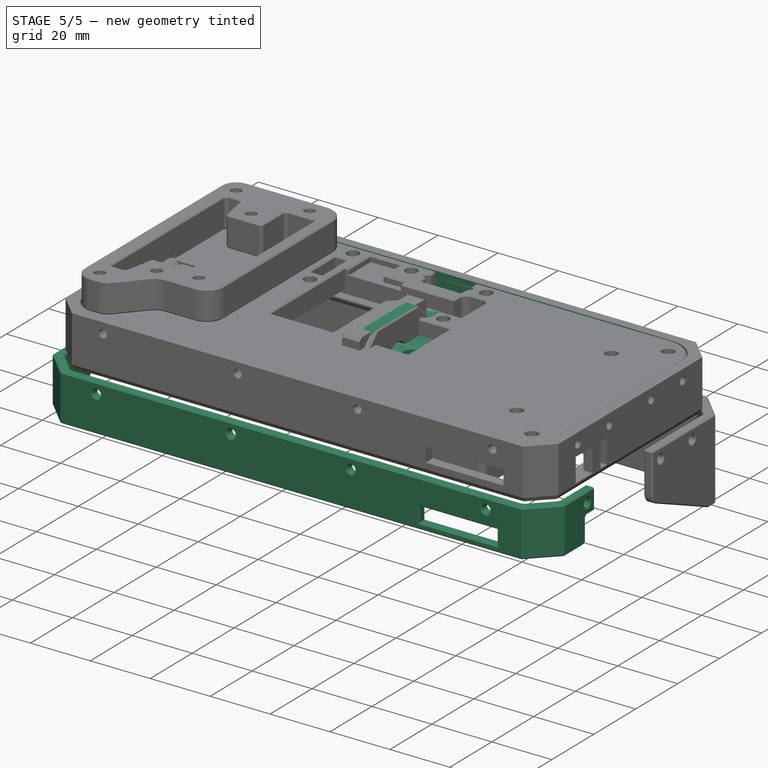
[diagram: stage 5 of 5 — iso view after this stage's code; geometry added in this stage tinted green]
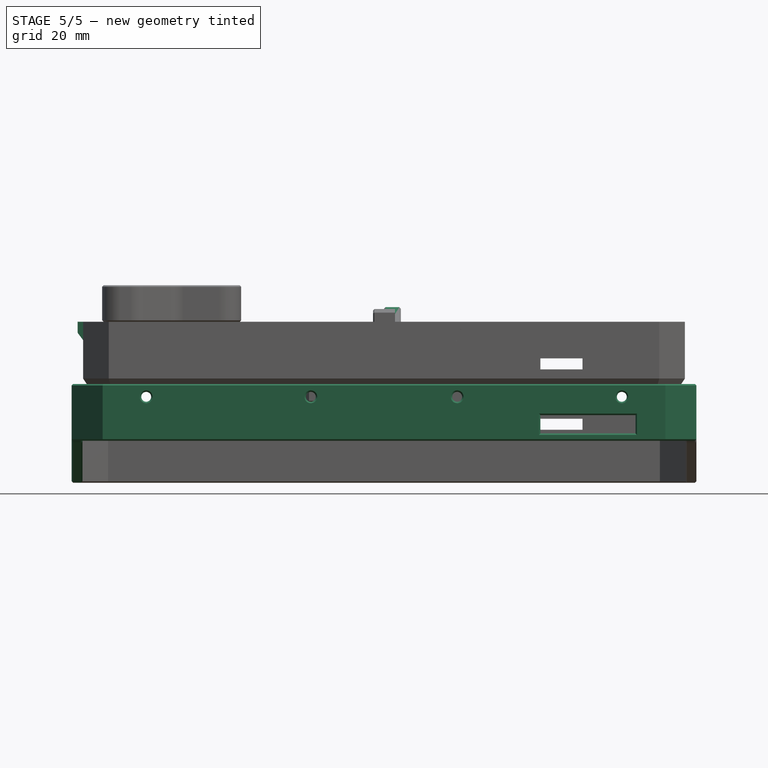
[diagram: stage 5 of 5 — front view after this stage's code; geometry added in this stage tinted green]
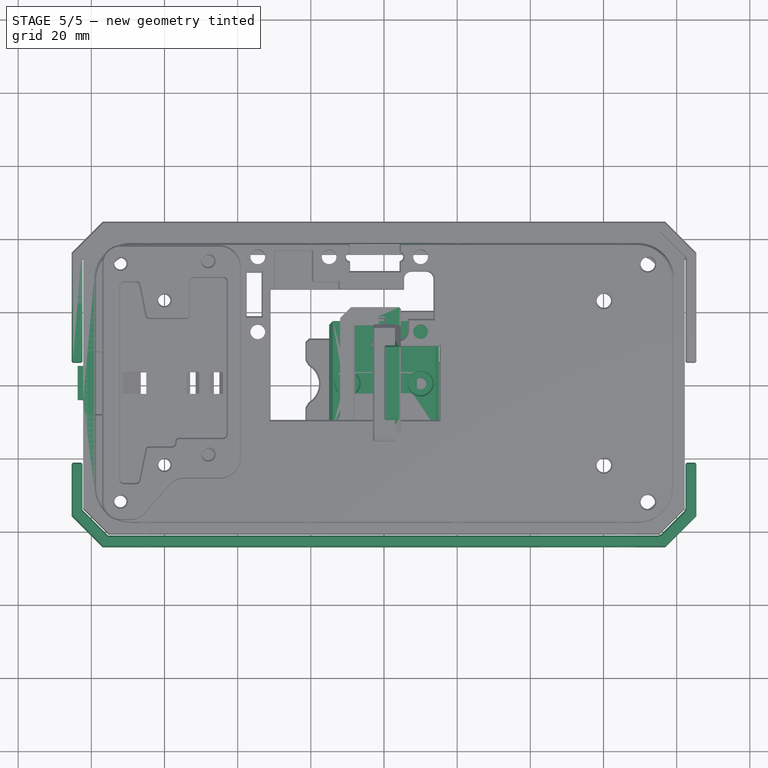
[diagram: stage 5 of 5 — top view after this stage's code; geometry added in this stage tinted green]
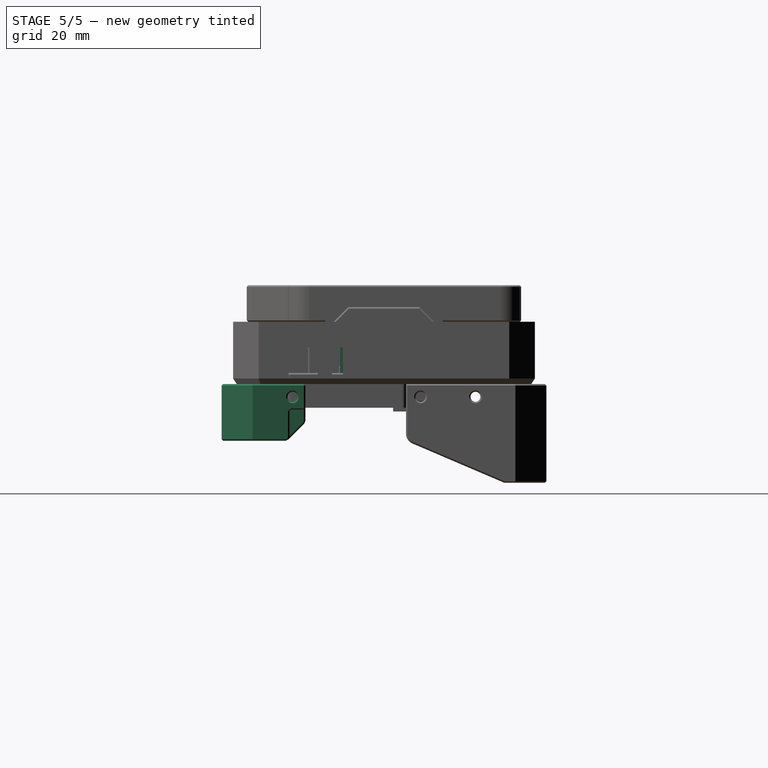
[diagram: stage 5 of 5 — right view after this stage's code; geometry added in this stage tinted green]
FEATURE [PartDesign::Chamfer] Chamfer007
  Angle = 45
  Base = -> Fillet002 [Edge15,Face13,Face12,Face31,Face30,Face28,Face29,Face34,Face33,Face4,Edge65,Edge80,Edge82,Edge66,Edge67,Edge83,Edge34,Edge36,Edge37,Edge33,Edge38,Edge32,Edge13,Edge1,Edge17,Edge2,Edge4,Edge29,Edge39,Edge31,Edge6,Edge40,Edge35,Edge28,Edge7,Edge9,Edge8,Edge10,Edge48,Edge45,+10 more]
  BaseFeature = -> Fillet002
  ChamferType = 0
  FlipDirection = false
  Size = 0.4
  Size2 = 1
  SupportTransform = false
  UseAllEdges = false
FEATURE [PartDesign::Body] Body001  label="top"
  Group = -> [Sketch017,Pad002,Chamfer003,Chamfer004,Sketch018,Pocket015,Sketch020,Pocket017,Sketch021,Pocket018,Sketch022,Pocket019,Sketch023,Pocket020,Fillet002,Chamfer007]
  Origin = -> Origin001
  Placement = pos=(0,0,17) rot=(0,0,1;0rad)
  Tip = -> Chamfer007
  expr: .Placement.Base.z = <<args>>.tablet_thickness + <<args>>.case_front_thickness + <<args>>.case_back_thickness
FEATURE [Sketcher::SketchObject] Sketch024
  FullyConstrained = true
  MapMode = 5
  Support = -> [XY_Plane002]
  expr: Constraints[16] = <<args>>.tablet_width + 2 * <<args>>.case_side_thickness + 0.3
  expr: Constraints[17] = (<<args>>.tablet_width + 2 * <<args>>.case_side_thickness + 0.3) / 2
  expr: Constraints[18] = 25 - 3.5
  expr: Constraints[23] = <<args>>.tablet_height / 2 + <<args>>.case_side_thickness + 0.15
  sketch-geometry (8):
    g0: LineSegment StartX=-82.4 StartY=-21.5 StartZ=0 EndX=-82.4 EndY=-41.4 EndZ=0
    g1: LineSegment StartX=-82.4 StartY=-41.4 StartZ=0 EndX=82.4 EndY=-41.4 EndZ=0
    g2: LineSegment StartX=82.4 StartY=-41.4 StartZ=0 EndX=82.4 EndY=-21.5 EndZ=0
    g3: LineSegment StartX=82.4 StartY=-21.5 StartZ=0 EndX=85.4 EndY=-21.5 EndZ=0
    g4: LineSegment StartX=85.4 StartY=-21.5 StartZ=0 EndX=85.4 EndY=-44.4 EndZ=0
    g5: LineSegment StartX=85.4 StartY=-44.4 StartZ=0 EndX=-85.4 EndY=-44.4 EndZ=0
    g6: LineSegment StartX=-85.4 StartY=-44.4 StartZ=0 EndX=-85.4 EndY=-21.5 EndZ=0
    g7: LineSegment StartX=-85.4 StartY=-21.5 StartZ=0 EndX=-82.4 EndY=-21.5 EndZ=0
  constraints (24):
    c: Vertical(g0)
    c: Coincident(g0,g1)
    c: Horizontal(g1)
    c: Coincident(g1,g2)
    c: Vertical(g2)
    c: Coincident(g2,g3)
    c: Horizontal(g3)
    c: Coincident(g3,g4)
    c: Vertical(g4)
    c: Coincident(g4,g5)
    c: Horizontal(g5)
    c: Coincident(g5,g6)
    c: Vertical(g6)
    c: Coincident(g6,g7)
    c: Coincident(g7,g0)
    c: Horizontal(g7)
    c: DistanceX(g1,g1) = 164.8
    c: DistanceX(g0,g-1) = 82.4
    c: DistanceY(g0,g-1) = 21.5
    c: Horizontal(g6,g2)
    c: DistanceX(g7,g7) = 3
    c: DistanceX(g3,g3) = 3
    c: DistanceY(g4,g1) = 3
    c: DistanceY(g0,g-1) = 41.4
FEATURE [PartDesign::Pad] Pad003
  Direction = (1,1,1)
  Length = 15.5
  Length2 = 100
  Profile = -> Sketch024
  Reversed = true
  Type = 0
  expr: Length = <<args>>.tablet_thickness + <<args>>.case_front_thickness + <<args>>.case_back_thickness - 1.5
FEATURE [PartDesign::Chamfer] Chamfer008
  Angle = 45
  Base = -> Pad003 [Edge5,Edge2]
  BaseFeature = -> Pad003
  ChamferType = 0
  FlipDirection = false
  Size = 7
  Size2 = 1
  SupportTransform = false
  UseAllEdges = false
FEATURE [PartDesign::Chamfer] Chamfer009
  Angle = 45
  Base = -> Chamfer008 [Edge28,Edge26]
  BaseFeature = -> Chamfer008
  ChamferType = 0
  FlipDirection = false
  Size = 8.5
  Size2 = 1
  SupportTransform = false
  UseAllEdges = false
FEATURE [PartDesign::Chamfer] Chamfer010
  Angle = 45
  Base = -> Chamfer009 [Edge19,Edge33]
  BaseFeature = -> Chamfer009
  ChamferType = 0
  FlipDirection = false
  Size = 5
  Size2 = 1
  SupportTransform = false
  UseAllEdges = false
FEATURE [Sketcher::SketchObject] Sketch025
  FullyConstrained = true
  MapMode = 5
  Placement = pos=(0,-44.4,0) rot=(1,0,0;1.5708rad)
  Support = -> [Chamfer010]
  expr: Constraints[6] = <<args>>.m2p5_bolt_hole_radius
  sketch-geometry (4):
    g0: Circle CenterX=-65 CenterY=-3.5 CenterZ=0 NormalX=0 NormalY=0 NormalZ=1 AngleXU=0 Radius=1.35
    g1: Circle CenterX=-20 CenterY=-3.5 CenterZ=0 NormalX=0 NormalY=0 NormalZ=1 AngleXU=0 Radius=1.35
    g2: Circle CenterX=20 CenterY=-3.5 CenterZ=0 NormalX=0 NormalY=0 NormalZ=1 AngleXU=0 Radius=1.35
    g3: Circle CenterX=65 CenterY=-3.5 CenterZ=0 NormalX=0 NormalY=0 NormalZ=1 AngleXU=0 Radius=1.35
  constraints (12):
    c: Equal(g0,g1)
    c: Equal(g1,g2)
    c: Equal(g2,g3)
    c: Horizontal(g0,g1)
    c: Horizontal(g1,g2)
    c: Horizontal(g2,g3)
    c: Radius(g3) = 1.35
    c: DistanceX(g1,g-1) = 20
    c: DistanceX(g-1,g2) = 20
    c: DistanceX(g0,g-1) = 65
    c: DistanceX(g-1,g3) = 65
    c: DistanceY(g1,g-1) = 3.5
FEATURE [PartDesign::Pocket] Pocket021
  BaseFeature = -> Chamfer010
  Direction = (1,1,1)
  Length = 3
  Length2 = 100
  Profile = -> Sketch025
  Type = 0
  expr: Length = <<args>>.case_side_thickness
FEATURE [Sketcher::SketchObject] Sketch026
  FullyConstrained = true
  MapMode = 5
  Placement = pos=(85.4,0,0) rot=(0.57735,0.57735,0.57735;2.0944rad)
  Support = -> [Pocket021]
  expr: Constraints[1] = <<args>>.case_back_thickness / 2
  expr: Constraints[2] = <<args>>.m2p5_bolt_hole_radius
  sketch-geometry (1):
    g0: Circle CenterX=-25 CenterY=-3.5 CenterZ=0 NormalX=0 NormalY=0 NormalZ=1 AngleXU=0 Radius=1.35
  constraints (3):
    c: DistanceX(g0,g-1) = 25
    c: DistanceY(g0,g-1) = 3.5
    c: Radius(g0) = 1.35
FEATURE [PartDesign::Pocket] Pocket022
  BaseFeature = -> Pocket021
  Direction = (1,1,1)
  Length = 5
  Length2 = 100
  Profile = -> Sketch026
  Type = 1
FEATURE [Sketcher::SketchObject] Sketch027
  FullyConstrained = true
  MapMode = 5
  Placement = pos=(0,-44.4,0) rot=(1,0,0;1.5708rad)
  Support = -> [Pocket022]
  expr: Constraints[11] = <<args>>.case_back_thickness + (<<args>>.tablet_thickness - 5) / 2
  expr: Constraints[8] = <<args>>.tablet_width / 2 - 10.5
  sketch-geometry (4):
    g0: LineSegment StartX=42.75 StartY=-8.5 StartZ=0 EndX=68.75 EndY=-8.5 EndZ=0
    g1: LineSegment StartX=68.75 StartY=-8.5 StartZ=0 EndX=68.75 EndY=-13.5 EndZ=0
    g2: LineSegment StartX=68.75 StartY=-13.5 StartZ=0 EndX=42.75 EndY=-13.5 EndZ=0
    g3: LineSegment StartX=42.75 StartY=-13.5 StartZ=0 EndX=42.75 EndY=-8.5 EndZ=0
  constraints (12):
    c: Coincident(g0,g1)
    c: Coincident(g1,g2)
    c: Coincident(g2,g3)
    c: Coincident(g3,g0)
    c: Horizontal(g0)
    c: Horizontal(g2)
    c: Vertical(g1)
    c: Vertical(g3)
    c: DistanceX(g-1,g0) = 68.75
    c: DistanceX(g0,g0) = 26
    c: DistanceY(g3,g3) = 5
    c: DistanceY(g0,g-1) = 8.5
FEATURE [PartDesign::Pocket] Pocket023
  BaseFeature = -> Pocket022
  Direction = (1,1,1)
  Length = 3
  Length2 = 100
  Profile = -> Sketch027
  Type = 0
  expr: Length = <<args>>.case_side_thickness
FEATURE [Sketcher::SketchObject] Sketch028
  FullyConstrained = true
  MapMode = 5
  Placement = pos=(85.4,0,0) rot=(0.57735,0.57735,0.57735;2.0944rad)
  Support = -> [Pocket023]
  expr: Constraints[8] = <<args>>.case_back_thickness
  sketch-geometry (4):
    g0: LineSegment StartX=-25.85 StartY=-7 StartZ=0 EndX=-15.85 EndY=-7 EndZ=0
    g1: LineSegment StartX=-15.85 StartY=-7 StartZ=0 EndX=-15.85 EndY=-17 EndZ=0
    g2: LineSegment StartX=-15.85 StartY=-17 StartZ=0 EndX=-25.85 EndY=-17 EndZ=0
    g3: LineSegment StartX=-25.85 StartY=-17 StartZ=0 EndX=-25.85 EndY=-7 EndZ=0
  constraints (12):
    c: Coincident(g0,g1)
    c: Coincident(g1,g2)
    c: Coincident(g2,g3)
    c: Coincident(g3,g0)
    c: Horizontal(g0)
    c: Horizontal(g2)
    c: Vertical(g1)
    c: Vertical(g3)
    c: DistanceY(g0,g-1) = 7
    c: DistanceX(g0,g-1) = 25.85
    c: DistanceX(g2,g2) = 10
    c: Equal(g1,g0)
FEATURE [PartDesign::Pocket] Pocket024
  BaseFeature = -> Pocket023
  Direction = (1,1,1)
  Length = 3
  Length2 = 100
  Profile = -> Sketch028
  Type = 0
  expr: Length = <<args>>.case_side_thickness
FEATURE [PartDesign::Chamfer] Chamfer011
  Angle = 45
  Base = -> Pocket024 [Edge60,Edge49,Face27,Edge61,Edge63,Edge48,Edge47,Edge64,Edge26,Face5,Edge11,Edge2,Edge7,Edge9,Edge1,Edge39,Edge38,Edge37,Edge40,Face22,Face23,Face24,Face25,Face7,Face4,Edge54,Edge53,Edge55,Edge52,Edge50,Edge62,Face28]
  BaseFeature = -> Pocket024
  ChamferType = 0
  FlipDirection = false
  Size = 0.4
  Size2 = 1
  SupportTransform = false
  UseAllEdges = false
FEATURE [PartDesign::Body] Body002  label="bottom"
  Group = -> [Sketch024,Pad003,Chamfer008,Chamfer009,Chamfer010,Sketch025,Pocket021,Sketch026,Pocket022,Sketch027,Pocket023,Sketch028,Pocket024,Chamfer011]
  Origin = -> Origin002
  Placement = pos=(0,0,17) rot=(0,0,1;0rad)
  Tip = -> Chamfer011
  expr: .Placement.Base.z = <<args>>.tablet_thickness + <<args>>.case_front_thickness + <<args>>.case_back_thickness
FEATURE [Sketcher::SketchObject] Sketch029
  FullyConstrained = true
  MapMode = 5
  Support = -> [XY_Plane003]
  sketch-geometry (8):
    g0: LineSegment StartX=0 StartY=0 StartZ=0 EndX=0 EndY=-6.5 EndZ=0
    g1: LineSegment StartX=0 StartY=-6.5 StartZ=0 EndX=-1.5 EndY=-6.5 EndZ=0
    g2: LineSegment StartX=0 StartY=0 StartZ=0 EndX=14 EndY=0 EndZ=0
    g3: LineSegment StartX=14 StartY=0 StartZ=0 EndX=14 EndY=-6.5 EndZ=0
    g4: LineSegment StartX=14 StartY=-6.5 StartZ=0 EndX=15.5 EndY=-6.5 EndZ=0
    g5: LineSegment StartX=15.5 StartY=-6.5 StartZ=0 EndX=15.5 EndY=-7.5 EndZ=0
    g6: LineSegment StartX=15.5 StartY=-7.5 StartZ=0 EndX=-1.5 EndY=-7.5 EndZ=0
    g7: LineSegment StartX=-1.5 StartY=-7.5 StartZ=0 EndX=-1.5 EndY=-6.5 EndZ=0
  constraints (23):
    c: Coincident(g-1,g0)
    c: PointOnObject(g0,g-2)
    c: Coincident(g0,g1)
    c: Horizontal(g1)
    c: Coincident(g0,g2)
    c: PointOnObject(g2,g-1)
    c: Coincident(g2,g3)
    c: Vertical(g3)
    c: Coincident(g3,g4)
    c: Horizontal(g4)
    c: Coincident(g4,g5)
    c: Vertical(g5)
    c: Horizontal(g6)
    c: Coincident(g6,g7)
    c: Coincident(g7,g1)
    c: Vertical(g7)
    c: DistanceX(g2,g2) = 14
    c: DistanceX(g1,g1) = 1.5
    c: DistanceX(g4,g4) = 1.5
    c: Horizontal(g0,g3)
    c: DistanceY(g3,g3) = 6.5
    c: Coincident(g6,g5)
    c: DistanceY(g5,g5) = 1
FEATURE [PartDesign::Pad] Pad004
  Direction = (1,1,1)
  Length = 2.5
  Length2 = 100
  Profile = -> Sketch029
  Type = 0
FEATURE [PartDesign::Chamfer] Chamfer012
  Angle = 45
  Base = -> Pad004 [Edge1,Edge20]
  BaseFeature = -> Pad004
  ChamferType = 0
  FlipDirection = false
  Size = 1
  Size2 = 1
  SupportTransform = false
  UseAllEdges = false
FEATURE [PartDesign::Body] Body003  label="power-btn"
  Group = -> [Sketch029,Pad004,Chamfer012]
  Origin = -> Origin003
  Placement = pos=(12,46.25,4.25) rot=(0,0,1;0rad)
  Tip = -> Chamfer012
FEATURE [Sketcher::SketchObject] Sketch030
  FullyConstrained = true
  MapMode = 5
  Support = -> [XY_Plane004]
  sketch-geometry (16):
    g0: LineSegment StartX=0 StartY=-6.5 StartZ=0 EndX=0 EndY=0 EndZ=0
    g1: LineSegment StartX=0 StartY=0 StartZ=0 EndX=10 EndY=0 EndZ=0
    g2: LineSegment StartX=10 StartY=0 StartZ=0 EndX=10 EndY=-3 EndZ=0
    g3: LineSegment StartX=10 StartY=-3 StartZ=0 EndX=13.5 EndY=-3 EndZ=0
    g4: LineSegment StartX=13.5 StartY=-3 StartZ=0 EndX=13.5 EndY=0 EndZ=0
    g5: LineSegment StartX=13.5 StartY=0 StartZ=0 EndX=23.5 EndY=0 EndZ=0
    g6: LineSegment StartX=23.5 StartY=0 StartZ=0 EndX=23.5 EndY=-6.5 EndZ=0
    g7: LineSegment StartX=23.5 StartY=-6.5 StartZ=0 EndX=25 EndY=-6.5 EndZ=0
    g8: LineSegment StartX=25 StartY=-6.5 StartZ=0 EndX=25 EndY=-7.5 EndZ=0
    g9: LineSegment StartX=25 StartY=-7.5 StartZ=0 EndX=13.5 EndY=-7.5 EndZ=0
    g10: LineSegment StartX=13.5 StartY=-7.5 StartZ=0 EndX=13.5 EndY=-4.5 EndZ=0
    g11: LineSegment StartX=13.5 StartY=-4.5 StartZ=0 EndX=10 EndY=-4.5 EndZ=0
    g12: LineSegment StartX=10 StartY=-4.5 StartZ=0 EndX=10 EndY=-7.5 EndZ=0
    g13: LineSegment StartX=10 StartY=-7.5 StartZ=0 EndX=-1.5 EndY=-7.5 EndZ=0
    g14: LineSegment StartX=-1.5 StartY=-7.5 StartZ=0 EndX=-1.5 EndY=-6.5 EndZ=0
    g15: LineSegment StartX=-1.5 StartY=-6.5 StartZ=0 EndX=0 EndY=-6.5 EndZ=0
  constraints (47):
    c: PointOnObject(g0,g-2)
    c: Coincident(g0,g-1)
    c: Coincident(g0,g1)
    c: PointOnObject(g1,g-1)
    c: Coincident(g1,g2)
    c: Vertical(g2)
    c: Coincident(g2,g3)
    c: Coincident(g3,g4)
    c: PointOnObject(g4,g-1)
    c: Vertical(g4)
    c: Coincident(g4,g5)
    c: PointOnObject(g5,g-1)
    c: Coincident(g5,g6)
    c: Vertical(g6)
    c: Coincident(g6,g7)
    c: Horizontal(g7)
    c: Coincident(g7,g8)
    c: Coincident(g8,g9)
    c: Horizontal(g9)
    c: Coincident(g9,g10)
    c: Coincident(g10,g11)
    c: Coincident(g11,g12)
    c: Vertical(g12)
    c: Coincident(g12,g13)
    c: Horizontal(g13)
    c: Coincident(g13,g14)
    c: Vertical(g14)
    c: Coincident(g14,g15)
    c: Coincident(g15,g0)
    c: Horizontal(g11)
    c: Horizontal(g3)
    c: Horizontal(g15)
    c: Vertical(g10)
    c: Vertical(g8)
    c: Horizontal(g6,g0)
    c: DistanceX(g0,g5) = 23.5
    c: DistanceY(g6,g6) = 6.5
    c: DistanceY(g8,g8) = 1
    c: DistanceX(g7,g7) = 1.5
    c: Horizontal(g12,g9)
    c: Equal(g15,g7)
    c: DistanceX(g1,g1) = 10
    c: DistanceX(g5,g5) = 10
    c: DistanceY(g4,g4) = 3
    c: Vertical(g2,g11)
    c: Vertical(g10,g3)
    c: DistanceY(g10,g3) = 1.5
FEATURE [PartDesign::Pad] Pad005
  Direction = (1,1,1)
  Length = 2.5
  Length2 = 100
  Profile = -> Sketch030
  Type = 0
FEATURE [PartDesign::Chamfer] Chamfer013
  Angle = 45
  Base = -> Pad005 [Edge2,Edge5,Edge14,Edge17,Edge29,Edge38]
  BaseFeature = -> Pad005
  ChamferType = 0
  FlipDirection = false
  Size = 1
  Size2 = 1
  SupportTransform = false
  UseAllEdges = false
FEATURE [PartDesign::Pocket] Pocket025  label="usb-slot-widen"
  BaseFeature = -> Chamfer006
  Direction = (1,1,1)
  Length = 1
  Length2 = 100
  Profile = -> Chamfer006 [Face76]
  Refine = true
  Type = 0
FEATURE [Sketcher::SketchObject] Sketch032
  ExternalGeometry = -> [Pocket025]
  FullyConstrained = true
  MapMode = 5
  Placement = pos=(-82.25,0,0) rot=(0.57735,-0.57735,-0.57735;2.0944rad)
  Support = -> [Pocket025]
  sketch-geometry (8):
    g0: LineSegment StartX=-6 StartY=11 StartZ=0 EndX=-6 EndY=2 EndZ=0
    g1: LineSegment StartX=-6 StartY=2 StartZ=0 EndX=6 EndY=2 EndZ=0
    g2: LineSegment StartX=6 StartY=2 StartZ=0 EndX=6 EndY=11 EndZ=0
    g3: LineSegment StartX=6 StartY=11 StartZ=0 EndX=4.65 EndY=11 EndZ=0
    g4: LineSegment StartX=4.65 StartY=11 StartZ=0 EndX=4.65 EndY=2.5 EndZ=0
    g5: LineSegment StartX=4.65 StartY=2.5 StartZ=0 EndX=-4.65 EndY=2.5 EndZ=0
    g6: LineSegment StartX=-4.65 StartY=2.5 StartZ=0 EndX=-4.65 EndY=11 EndZ=0
    g7: LineSegment StartX=-4.65 StartY=11 StartZ=0 EndX=-6 EndY=11 EndZ=0
  constraints (20):
    c: Coincident(g-3,g0)
    c: Coincident(g0,g-4)
    c: Coincident(g0,g1)
    c: Coincident(g1,g-4)
    c: Coincident(g1,g2)
    c: Coincident(g2,g-3)
    c: Coincident(g2,g3)
    c: PointOnObject(g3,g-3)
    c: Coincident(g3,g4)
    c: Vertical(g4)
    c: Coincident(g4,g5)
    c: Horizontal(g5)
    c: Coincident(g5,g6)
    c: PointOnObject(g6,g-3)
    c: Vertical(g6)
    c: Coincident(g6,g7)
    c: Coincident(g7,g0)
    c: DistanceY(g1,g4) = 0.5
    c: Equal(g7,g3)
    c: DistanceX(g3,g3) = 1.35
FEATURE [PartDesign::Pad] Pad007  label="usb-slot-size-fix"
  BaseFeature = -> Pocket025
  Direction = (1,1,1)
  Length = 3
  Length2 = 100
  Profile = -> Sketch032
  Refine = true
  Reversed = true
  Type = 0
  expr: Length = <<args>>.case_side_thickness
FEATURE [Sketcher::SketchObject] Sketch033
  ExternalGeometry = -> [Pad007]
  FullyConstrained = true
  MapMode = 5
  Placement = pos=(0,4.65,0) rot=(1,0,0;1.5708rad)
  Support = -> [Pad007]
  sketch-geometry (4):
    g0: LineSegment StartX=-82.25 StartY=12 StartZ=0 EndX=-83.75 EndY=14 EndZ=0
    g1: LineSegment StartX=-83.75 StartY=14 StartZ=0 EndX=-83.75 EndY=17 EndZ=0
    g2: LineSegment StartX=-83.75 StartY=17 StartZ=0 EndX=-82.25 EndY=17 EndZ=0
    g3: LineSegment StartX=-82.25 StartY=17 StartZ=0 EndX=-82.25 EndY=12 EndZ=0
  constraints (11):
    c: PointOnObject(g0,g-3)
    c: DistanceY(g-4,g0) = 1
    c: DistanceX(g0,g-3) = 1.5
    c: DistanceY(g0,g0) = 2
    c: Coincident(g0,g1)
    c: Vertical(g1)
    c: Coincident(g1,g2)
    c: Coincident(g2,g-3)
    c: Horizontal(g2)
    c: Coincident(g2,g3)
    c: Coincident(g3,g0)
FEATURE [PartDesign::Pad] Pad008  label="sub-slot-support"
  BaseFeature = -> Pad007
  Direction = (1,1,1)
  Length = 9.3
  Length2 = 100
  Profile = -> Sketch033
  Type = 0
FEATURE [Sketcher::SketchObject] Sketch042
  FullyConstrained = true
  MapMode = 5
  Support = -> [XY_Plane006]
  sketch-geometry (4):
    g0: LineSegment StartX=-12 StartY=17 StartZ=0 EndX=12 EndY=17 EndZ=0
    g1: LineSegment StartX=12 StartY=17 StartZ=0 EndX=12 EndY=-7 EndZ=0
    g2: LineSegment StartX=12 StartY=-7 StartZ=0 EndX=-12 EndY=-7 EndZ=0
    g3: LineSegment StartX=-12 StartY=-7 StartZ=0 EndX=-12 EndY=17 EndZ=0
  constraints (12):
    c: Coincident(g0,g1)
    c: Coincident(g1,g2)
    c: Coincident(g2,g3)
    c: Coincident(g3,g0)
    c: Horizontal(g0)
    c: Horizontal(g2)
    c: Vertical(g1)
    c: Vertical(g3)
    c: DistanceY(g3,g3) = 24
    c: DistanceX(g0,g0) = 24
    c: DistanceX(g0,g-1) = 12
    c: DistanceY(g-1,g0) = 17
FEATURE [PartDesign::Pad] Pad009
  Direction = (1,1,1)
  Length = 2
  Length2 = 100
  Profile = -> Sketch042
  Type = 0
FEATURE [Sketcher::SketchObject] Sketch043
  ExternalGeometry = -> [Pad009]
  FullyConstrained = true
  MapMode = 5
  Placement = pos=(0,0,2) rot=(0,0,1;0rad)
  Support = -> [Pad009]
  sketch-geometry (4):
    g0: LineSegment StartX=-12 StartY=17 StartZ=0 EndX=12 EndY=17 EndZ=0
    g1: LineSegment StartX=12 StartY=17 StartZ=0 EndX=12 EndY=10 EndZ=0
    g2: LineSegment StartX=12 StartY=10 StartZ=0 EndX=-12 EndY=10 EndZ=0
    g3: LineSegment StartX=-12 StartY=10 StartZ=0 EndX=-12 EndY=17 EndZ=0
  constraints (11):
    c: Coincident(g0,g1)
    c: Coincident(g1,g2)
    c: Coincident(g2,g3)
    c: Coincident(g3,g0)
    c: Horizontal(g0)
    c: Horizontal(g2)
    c: Vertical(g1)
    c: Vertical(g3)
    c: Coincident(g0,g-3)
    c: PointOnObject(g1,g-4)
    c: DistanceY(g1,g1) = 7
FEATURE [PartDesign::Pad] Pad010
  BaseFeature = -> Pad009
  Direction = (1,1,1)
  Length = 2.5
  Length2 = 100
  Profile = -> Sketch043
  Type = 0
FEATURE [Sketcher::SketchObject] Sketch044
  ExternalGeometry = -> [Pad010]
  FullyConstrained = true
  MapMode = 5
  Placement = pos=(0,0,2) rot=(0,0,1;0rad)
  Support = -> [Pad010]
  sketch-geometry (8):
    g0: ArcOfCircle CenterX=-10 CenterY=0 CenterZ=0 NormalX=0 NormalY=0 NormalZ=1 AngleXU=0 Radius=1.6 StartAngle=4.71239 EndAngle=7.85398
    g1: ArcOfCircle CenterX=10 CenterY=0 CenterZ=0 NormalX=0 NormalY=0 NormalZ=1 AngleXU=0 Radius=1.6 StartAngle=1.5708 EndAngle=4.71239
    g2: LineSegment StartX=-12 StartY=1.6 StartZ=0 EndX=-10 EndY=1.6 EndZ=0
    g3: LineSegment StartX=-12 StartY=-1.6 StartZ=0 EndX=-10 EndY=-1.6 EndZ=0
    g4: LineSegment StartX=12 StartY=1.6 StartZ=0 EndX=10 EndY=1.6 EndZ=0
    g5: LineSegment StartX=12 StartY=-1.6 StartZ=0 EndX=10 EndY=-1.6 EndZ=0
    g6: LineSegment StartX=12 StartY=-1.6 StartZ=0 EndX=12 EndY=1.6 EndZ=0
    g7: LineSegment StartX=-12 StartY=1.6 StartZ=0 EndX=-12 EndY=-1.6 EndZ=0
  constraints (26):
    c: PointOnObject(g0,g-1)
    c: PointOnObject(g1,g-1)
    c: Vertical(g0,g0)
    c: Vertical(g0,g0)
    c: Vertical(g1,g1)
    c: Vertical(g1,g1)
    c: DistanceX(g0,g-1) = 10
    c: DistanceX(g-1,g1) = 10
    c: Equal(g1,g0)
    c: Radius(g1) = 1.6
    c: PointOnObject(g2,g-3)
    c: Coincident(g2,g0)
    c: PointOnObject(g3,g-3)
    c: Coincident(g3,g0)
    c: PointOnObject(g4,g-4)
    c: Coincident(g4,g1)
    c: Horizontal(g4)
    c: PointOnObject(g5,g-4)
    c: Coincident(g5,g1)
    c: Horizontal(g5)
    c: Coincident(g6,g5)
    c: Coincident(g6,g4)
    c: Coincident(g7,g2)
    c: Coincident(g7,g3)
    c: Horizontal(g2)
    c: Horizontal(g3)
FEATURE [PartDesign::Pocket] Pocket034
  BaseFeature = -> Pad010
  Direction = (1,1,1)
  Length = 5
  Length2 = 100
  Profile = -> Sketch044
  Type = 1
FEATURE [Sketcher::SketchObject] Sketch045
  ExternalGeometry = -> [Pocket034]
  FullyConstrained = true
  MapMode = 5
  Placement = pos=(0,0,2) rot=(0,0,1;0rad)
  Support = -> [Pocket034]
  sketch-geometry (6):
    g0: LineSegment StartX=-5 StartY=1.6 StartZ=0 EndX=5 EndY=1.6 EndZ=0
    g1: LineSegment StartX=-9 StartY=9 StartZ=0 EndX=9 EndY=9 EndZ=0
    g2: LineSegment StartX=-9 StartY=9 StartZ=0 EndX=-9 EndY=4 EndZ=0
    g3: LineSegment StartX=9 StartY=9 StartZ=0 EndX=9 EndY=4 EndZ=0
    g4: LineSegment StartX=9 StartY=4 StartZ=0 EndX=5 EndY=1.6 EndZ=0
    g5: LineSegment StartX=-5 StartY=1.6 StartZ=0 EndX=-9 EndY=4 EndZ=0
  constraints (18):
    c: Horizontal(g0)
    c: DistanceX(g0,g-1) = 5
    c: DistanceX(g-1,g0) = 5
    c: Horizontal(g0,g-3)
    c: Horizontal(g1)
    c: DistanceY(g1,g-4) = 1
    c: DistanceX(g1,g-1) = 9
    c: DistanceX(g-1,g1) = 9
    c: Coincident(g2,g1)
    c: Vertical(g2)
    c: Coincident(g3,g1)
    c: Coincident(g4,g3)
    c: Coincident(g4,g0)
    c: Coincident(g5,g0)
    c: Coincident(g5,g2)
    c: Vertical(g3)
    c: Horizontal(g3,g2)
    c: DistanceY(g3,g3) = 5
FEATURE [PartDesign::Pocket] Pocket035
  BaseFeature = -> Pocket034
  Direction = (1,1,1)
  Length = 5
  Length2 = 100
  Profile = -> Sketch045
  Type = 1
FEATURE [PartDesign::Chamfer] Chamfer016
  Angle = 45
  Base = -> Pocket035 [Face4]
  BaseFeature = -> Pocket035
  ChamferType = 0
  FlipDirection = false
  Refine = true
  Size = 0.4
  Size2 = 1
  SupportTransform = false
  UseAllEdges = false
FEATURE [PartDesign::Body] Body006  label="usb-port-base"
  Group = -> [Sketch042,Pad009,Sketch043,Pad010,Sketch044,Pocket034,Sketch045,Pocket035,Chamfer016]
  Origin = -> Origin006
  Placement = pos=(-26.15,22.25,17) rot=(0,0,1;0rad)
  Tip = -> Chamfer016
FEATURE [Sketcher::SketchObject] Sketch046
  FullyConstrained = true
  MapMode = 5
  Support = -> [XY_Plane007]
  sketch-geometry (4):
    g0: LineSegment StartX=-15 StartY=17 StartZ=0 EndX=15 EndY=17 EndZ=0
    g1: LineSegment StartX=15 StartY=17 StartZ=0 EndX=15 EndY=-12 EndZ=0
    g2: LineSegment StartX=15 StartY=-12 StartZ=0 EndX=-15 EndY=-12 EndZ=0
    g3: LineSegment StartX=-15 StartY=-12 StartZ=0 EndX=-15 EndY=17 EndZ=0
  constraints (12):
    c: Coincident(g0,g1)
    c: Coincident(g1,g2)
    c: Coincident(g2,g3)
    c: Coincident(g3,g0)
    c: Horizontal(g0)
    c: Horizontal(g2)
    c: Vertical(g1)
    c: Vertical(g3)
    c: DistanceX(g0,g-1) = 15
    c: DistanceX(g0,g0) = 30
    c: DistanceY(g-1,g0) = 17
    c: DistanceY(g3,g3) = 29
FEATURE [PartDesign::Pad] Pad011
  Direction = (1,1,1)
  Length = 12
  Length2 = 100
  Profile = -> Sketch046
  Type = 0
FEATURE [Sketcher::SketchObject] Sketch047
  ExternalGeometry = -> [Pad011]
  FullyConstrained = true
  MapMode = 5
  Placement = pos=(0,0,0) rot=(1,0,0;3.14159rad)
  Support = -> [Pad011]
  sketch-geometry (4):
    g0: LineSegment StartX=-6.75 StartY=-17 StartZ=0 EndX=6.75 EndY=-17 EndZ=0
    g1: LineSegment StartX=6.75 StartY=-17 StartZ=0 EndX=6.75 EndY=-1 EndZ=0
    g2: LineSegment StartX=6.75 StartY=-1 StartZ=0 EndX=-6.75 EndY=-1 EndZ=0
    g3: LineSegment StartX=-6.75 StartY=-1 StartZ=0 EndX=-6.75 EndY=-17 EndZ=0
  constraints (12):
    c: Coincident(g0,g1)
    c: Coincident(g1,g2)
    c: Coincident(g2,g3)
    c: Coincident(g3,g0)
    c: Horizontal(g0)
    c: Horizontal(g2)
    c: Vertical(g1)
    c: Vertical(g3)
    c: PointOnObject(g0,g-3)
    c: DistanceX(g0,g0) = 13.5
    c: DistanceX(g0,g-1) = 6.75
    c: DistanceY(g1,g1) = 16
FEATURE [PartDesign::Pocket] Pocket036
  BaseFeature = -> Pad011
  Direction = (1,1,1)
  Length = 10.5
  Length2 = 100
  Profile = -> Sketch047
  Type = 0
FEATURE [Sketcher::SketchObject] Sketch048
  ExternalGeometry = -> [Pocket036]
  FullyConstrained = true
  MapMode = 5
  Placement = pos=(0,0,0) rot=(1,0,0;3.14159rad)
  Support = -> [Pocket036]
  sketch-geometry (4):
    g0: LineSegment StartX=-12.5 StartY=-17 StartZ=0 EndX=12.5 EndY=-17 EndZ=0
    g1: LineSegment StartX=12.5 StartY=-17 StartZ=0 EndX=12.5 EndY=-10 EndZ=0
    g2: LineSegment StartX=12.5 StartY=-10 StartZ=0 EndX=-12.5 EndY=-10 EndZ=0
    g3: LineSegment StartX=-12.5 StartY=-10 StartZ=0 EndX=-12.5 EndY=-17 EndZ=0
  constraints (12):
    c: Coincident(g0,g1)
    c: Coincident(g1,g2)
    c: Coincident(g2,g3)
    c: Coincident(g3,g0)
    c: Horizontal(g0)
    c: Horizontal(g2)
    c: Vertical(g1)
    c: Vertical(g3)
    c: PointOnObject(g0,g-3)
    c: DistanceY(g3,g3) = 7
    c: DistanceX(g0,g-1) = 12.5
    c: DistanceX(g-1,g0) = 12.5
FEATURE [PartDesign::Pocket] Pocket037
  BaseFeature = -> Pocket036
  Direction = (1,1,1)
  Length = 4.5
  Length2 = 100
  Profile = -> Sketch048
  Type = 0
FEATURE [Sketcher::SketchObject] Sketch049
  ExternalGeometry = -> [Pocket037]
  FullyConstrained = true
  MapMode = 5
  Placement = pos=(0,0,0) rot=(1,0,0;3.14159rad)
  Support = -> [Pocket037]
  sketch-geometry (8):
    g0: LineSegment StartX=-12.5 StartY=-10 StartZ=0 EndX=-12.5 EndY=12 EndZ=0
    g1: LineSegment StartX=-12.5 StartY=12 StartZ=0 EndX=12.5 EndY=12 EndZ=0
    g2: LineSegment StartX=12.5 StartY=12 StartZ=0 EndX=12.5 EndY=-10 EndZ=0
    g3: LineSegment StartX=12.5 StartY=-10 StartZ=0 EndX=6.75 EndY=-10 EndZ=0
    g4: LineSegment StartX=6.75 StartY=-10 StartZ=0 EndX=6.75 EndY=-1 EndZ=0
    g5: LineSegment StartX=6.75 StartY=-1 StartZ=0 EndX=-6.75 EndY=-1 EndZ=0
    g6: LineSegment StartX=-6.75 StartY=-1 StartZ=0 EndX=-6.75 EndY=-10 EndZ=0
    g7: LineSegment StartX=-6.75 StartY=-10 StartZ=0 EndX=-12.5 EndY=-10 EndZ=0
  constraints (19):
    c: DistanceX(g-3,g-7) = 2.5
    c: Coincident(g-7,g0)
    c: PointOnObject(g0,g-5)
    c: Vertical(g0)
    c: Coincident(g0,g1)
    c: PointOnObject(g1,g-5)
    c: Coincident(g1,g2)
    c: Coincident(g2,g-8)
    c: Vertical(g2)
    c: Coincident(g2,g3)
    c: Coincident(g3,g-8)
    c: Coincident(g3,g4)
    c: Coincident(g4,g-6)
    c: Coincident(g4,g5)
    c: Coincident(g5,g-6)
    c: Coincident(g5,g6)
    c: Coincident(g6,g-7)
    c: Coincident(g6,g7)
    c: Coincident(g7,g0)
FEATURE [PartDesign::Pocket] Pocket038
  BaseFeature = -> Pocket037
  Direction = (1,1,1)
  Length = 3.75
  Length2 = 100
  Profile = -> Sketch049
  Type = 0
FEATURE [Sketcher::SketchObject] Sketch050
  FullyConstrained = true
  MapMode = 5
  Placement = pos=(0,0,12) rot=(0,0,1;0rad)
  Support = -> [Pocket038]
  sketch-geometry (2):
    g0: Circle CenterX=-10 CenterY=0 CenterZ=0 NormalX=0 NormalY=0 NormalZ=1 AngleXU=0 Radius=1.6
    g1: Circle CenterX=10 CenterY=0 CenterZ=0 NormalX=0 NormalY=0 NormalZ=1 AngleXU=0 Radius=1.6
  constraints (6):
    c: PointOnObject(g0,g-1)
    c: PointOnObject(g1,g-1)
    c: Equal(g1,g0)
    c: Radius(g1) = 1.6
    c: DistanceX(g0,g-1) = 10
    c: DistanceX(g-1,g1) = 10
FEATURE [PartDesign::Pocket] Pocket039
  BaseFeature = -> Pocket038
  Direction = (1,1,1)
  Length = 5
  Length2 = 100
  Profile = -> Sketch050
  Type = 1
FEATURE [Sketcher::SketchObject] Sketch051
  ExternalGeometry = -> [Pocket039]
  FullyConstrained = true
  MapMode = 5
  Placement = pos=(0,0,12) rot=(0,0,1;0rad)
  Support = -> [Pocket039]
  sketch-geometry (2):
    g0: Circle CenterX=-10 CenterY=0 CenterZ=0 NormalX=0 NormalY=0 NormalZ=1 AngleXU=0 Radius=3.25
    g1: Circle CenterX=10 CenterY=0 CenterZ=0 NormalX=0 NormalY=0 NormalZ=1 AngleXU=0 Radius=3.25
  constraints (4):
    c: Coincident(g0,g-3)
    c: Coincident(g1,g-4)
    c: Radius(g1) = 3.25
    c: Equal(g1,g0)
FEATURE [PartDesign::Pocket] Pocket040
  BaseFeature = -> Pocket039
  Direction = (1,1,1)
  Length = 4
  Length2 = 100
  Profile = -> Sketch051
  Type = 0
FEATURE [PartDesign::Chamfer] Chamfer017
  Angle = 45
  Base = -> Pocket040 [Edge42,Edge41,Edge12,Edge10]
  BaseFeature = -> Pocket040
  ChamferType = 0
  FlipDirection = false
  Size = 1
  Size2 = 1
  SupportTransform = false
  UseAllEdges = false
FEATURE [PartDesign::Chamfer] Chamfer018
  Angle = 45
  Base = -> Chamfer017 [Edge27,Edge26]
  BaseFeature = -> Chamfer017
  ChamferType = 0
  FlipDirection = false
  Size = 0.4
  Size2 = 1
  SupportTransform = false
  UseAllEdges = false
FEATURE [Sketcher::SketchObject] Sketch052
  ExternalGeometry = -> [Chamfer018]
  FullyConstrained = true
  MapMode = 5
  Placement = pos=(0,0,3.75) rot=(1,0,0;3.14159rad)
  Support = -> [Chamfer018]
  sketch-geometry (8):
    g0: LineSegment StartX=-6.75 StartY=-1 StartZ=0 EndX=-7.25 EndY=-1 EndZ=0
    g1: LineSegment StartX=-7.25 StartY=-1 StartZ=0 EndX=-7.25 EndY=-5 EndZ=0
    g2: LineSegment StartX=-7.25 StartY=-5 StartZ=0 EndX=-6.75 EndY=-5 EndZ=0
    g3: LineSegment StartX=-6.75 StartY=-5 StartZ=0 EndX=-6.75 EndY=-1 EndZ=0
    g4: LineSegment StartX=6.75 StartY=-1 StartZ=0 EndX=7.25 EndY=-1 EndZ=0
    g5: LineSegment StartX=7.25 StartY=-1 StartZ=0 EndX=7.25 EndY=-5 EndZ=0
    g6: LineSegment StartX=7.25 StartY=-5 StartZ=0 EndX=6.75 EndY=-5 EndZ=0
    g7: LineSegment StartX=6.75 StartY=-5 StartZ=0 EndX=6.75 EndY=-1 EndZ=0
  constraints (22):
    c: Coincident(g0,g1)
    c: Coincident(g1,g2)
    c: Coincident(g2,g3)
    c: Coincident(g3,g0)
    c: Horizontal(g0)
    c: Horizontal(g2)
    c: Vertical(g1)
    c: Vertical(g3)
    c: Coincident(g0,g-3)
    c: Coincident(g4,g5)
    c: Coincident(g5,g6)
    c: Coincident(g6,g7)
    c: Coincident(g7,g4)
    c: Horizontal(g4)
    c: Horizontal(g6)
    c: Vertical(g5)
    c: Vertical(g7)
    c: Coincident(g4,g-4)
    c: Equal(g6,g2)
    c: Equal(g5,g1)
    c: DistanceY(g5,g5) = 4
    c: DistanceX(g0,g0) = 0.5
FEATURE [PartDesign::Pocket] Pocket041
  BaseFeature = -> Chamfer018
  Direction = (1,1,1)
  Length = 3
  Length2 = 100
  Profile = -> Sketch052
  Type = 0
FEATURE [Sketcher::SketchObject] Sketch053
  ExternalGeometry = -> [Pocket041]
  FullyConstrained = true
  MapMode = 5
  Placement = pos=(0,0,3.75) rot=(1,0,0;3.14159rad)
  Support = -> [Pocket041]
  sketch-geometry (4):
    g0: LineSegment StartX=-12.5 StartY=12 StartZ=0 EndX=12.5 EndY=12 EndZ=0
    g1: LineSegment StartX=12.5 StartY=12 StartZ=0 EndX=12.5 EndY=7 EndZ=0
    g2: LineSegment StartX=12.5 StartY=7 StartZ=0 EndX=-12.5 EndY=7 EndZ=0
    g3: LineSegment StartX=-12.5 StartY=7 StartZ=0 EndX=-12.5 EndY=12 EndZ=0
  constraints (11):
    c: Coincident(g0,g1)
    c: Coincident(g1,g2)
    c: Coincident(g2,g3)
    c: Coincident(g3,g0)
    c: Horizontal(g0)
    c: Horizontal(g2)
    c: Vertical(g1)
    c: Vertical(g3)
    c: Coincident(g0,g-3)
    c: PointOnObject(g1,g-4)
    c: DistanceY(g1,g1) = 5
FEATURE [PartDesign::Pocket] Pocket042
  BaseFeature = -> Pocket041
  Direction = (1,1,1)
  Length = 3
  Length2 = 100
  Profile = -> Sketch053
  Type = 0
FEATURE [PartDesign::Body] Body007  label="usb-port-cover"
  Group = -> [Sketch046,Pad011,Sketch047,Pocket036,Sketch048,Pocket037,Sketch049,Pocket038,Sketch050,Pocket039,Sketch051,Pocket040,Chamfer017,Chamfer018,Sketch052,Pocket041,Sketch053,Pocket042]
  Origin = -> Origin007
  Placement = pos=(-26.15,22.25,17) rot=(0,0,1;0rad)
  Tip = -> Pocket042
FEATURE [Sketcher::SketchObject] Sketch055
  FullyConstrained = true
  MapMode = 5
  Support = -> [XY_Plane008]
  sketch-geometry (6):
    g0: Circle CenterX=0 CenterY=5.1 CenterZ=0 NormalX=0 NormalY=0 NormalZ=1 AngleXU=0 Radius=1.65
    g1: Circle CenterX=0 CenterY=-5.1 CenterZ=0 NormalX=0 NormalY=0 NormalZ=1 AngleXU=0 Radius=1.65
    g2: LineSegment StartX=-3.5 StartY=8.6 StartZ=0 EndX=9 EndY=8.6 EndZ=0
    g3: LineSegment StartX=9 StartY=8.6 StartZ=0 EndX=9 EndY=-8.6 EndZ=0
    g4: LineSegment StartX=9 StartY=-8.6 StartZ=0 EndX=-3.5 EndY=-8.6 EndZ=0
    g5: LineSegment StartX=-3.5 StartY=-8.6 StartZ=0 EndX=-3.5 EndY=8.6 EndZ=0
  constraints (18):
    c: PointOnObject(g0,g-2)
    c: PointOnObject(g1,g-2)
    c: DistanceY(g-1,g0) = 5.1
    c: DistanceY(g1,g-1) = 5.1
    c: Equal(g1,g0)
    c: Radius(g0) = 1.65
    c: Coincident(g2,g3)
    c: Coincident(g3,g4)
    c: Coincident(g4,g5)
    c: Coincident(g5,g2)
    c: Horizontal(g2)
    c: Horizontal(g4)
    c: Vertical(g3)
    c: Vertical(g5)
    c: DistanceX(g4,g1) = 3.5
    c: DistanceX(g1,g3) = 9
    c: DistanceY(g0,g2) = 3.5
    c: DistanceY(g4,g1) = 3.5
FEATURE [PartDesign::Pad] Pad012
  Direction = (1,1,1)
  Length = 6
  Length2 = 100
  Profile = -> Sketch055
  Type = 0
FEATURE [Sketcher::SketchObject] Sketch056
  ExternalGeometry = -> [Pad012]
  FullyConstrained = true
  MapMode = 5
  Placement = pos=(0,-8.6,0) rot=(1,0,0;1.5708rad)
  Support = -> [Pad012]
  sketch-geometry (4):
    g0: ArcOfCircle CenterX=4.75 CenterY=1.65 CenterZ=0 NormalX=0 NormalY=0 NormalZ=1 AngleXU=0 Radius=1.75 StartAngle=0 EndAngle=3.14159
    g1: LineSegment StartX=3 StartY=0 StartZ=0 EndX=3 EndY=1.65 EndZ=0
    g2: LineSegment StartX=6.5 StartY=0 StartZ=0 EndX=6.5 EndY=1.65 EndZ=0
    g3: LineSegment StartX=6.5 StartY=0 StartZ=0 EndX=3 EndY=0 EndZ=0
  constraints (13):
    c: Horizontal(g0,g0)
    c: Horizontal(g0,g0)
    c: PointOnObject(g1,g-1)
    c: Coincident(g1,g0)
    c: PointOnObject(g2,g-1)
    c: Coincident(g2,g0)
    c: Vertical(g2)
    c: Coincident(g3,g2)
    c: Coincident(g3,g1)
    c: Vertical(g1)
    c: DistanceX(g3,g3) = 3.5
    c: DistanceY(g2,g0) = 1.65
    c: DistanceX(g2,g-3) = 2.5
FEATURE [PartDesign::Pocket] Pocket044
  BaseFeature = -> Pad012
  Direction = (1,1,1)
  Length = 5
  Length2 = 100
  Profile = -> Sketch056
  Type = 1
FEATURE [PartDesign::Fillet] Fillet004
  Base = -> Pocket044 [Edge28,Edge8,Edge22,Edge6]
  BaseFeature = -> Pocket044
  Radius = 1
  SupportTransform = false
  UseAllEdges = false
FEATURE [PartDesign::Fillet] Fillet005
  Base = -> Fillet004 [Edge13,Edge33]
  BaseFeature = -> Fillet004
  Radius = 1
  SupportTransform = false
  UseAllEdges = false
FEATURE [PartDesign::Chamfer] Chamfer019
  Angle = 45
  Base = -> Fillet005 [Face6]
  BaseFeature = -> Fillet005
  ChamferType = 0
  FlipDirection = false
  Size = 0.4
  Size2 = 1
  SupportTransform = false
  UseAllEdges = false
FEATURE [PartDesign::Chamfer] Chamfer036004004
  Angle = 45
  Base = -> Pad008 [Face54,Face52,Face53,Face55,Face59,Face58,Face57,Face56,Face67,Face68,Face69,Face70,Face39,Face38,Face37,Face36]
  BaseFeature = -> Pad008
  ChamferType = 0
  FlipDirection = false
  Size = 0.4
  Size2 = 1
  SupportTransform = false
  UseAllEdges = false
FEATURE [PartDesign::Body] Body  label="front"
  Group = -> [Sketch,Pad,Sketch001,Pocket,Sketch002,Pocket001,Fillet,Fillet001,DatumPlane,DatumPlane001,DatumPlane002,DatumPlane003,DatumPlane004,DatumPlane005,DatumPlane006,Sketch004,Pocket003,Sketch005,Pocket004,Sketch006,Pocket005,DatumPlane007,Sketch007,Pocket006,Sketch008,Pocket007,Sketch009,Pocket008,Sketch010,Pocket009,Sketch011,Pocket010,DatumPlane008,Sketch012,Pad001,Sketch014,Pocket012,Sketch019,+10 more]
  Origin = -> Origin
  Tip = -> Chamfer036004004
FEATURE [PartDesign::FeatureBase] Clone
  BaseFeature = -> Chamfer006
FEATURE [PartDesign::Pocket] Pocket054
  BaseFeature = -> Clone
  Direction = (1,1,1)
  Length = 1
  Length2 = 100
  Profile = -> Clone [Face76]
  Type = 0
FEATURE [Sketcher::SketchObject] Sketch072
  ExternalGeometry = -> [BaseFeature001]
  FullyConstrained = true
  MapMode = 5
  Placement = pos=(4.6,0,0) rot=(0.57735,0.57735,0.57735;2.0944rad)
  Support = -> [BaseFeature001]
  sketch-geometry (8):
    g0: LineSegment StartX=-20.75 StartY=15 StartZ=0 EndX=-20.75 EndY=25 EndZ=0
    g1: LineSegment StartX=-20.75 StartY=25 StartZ=0 EndX=20.75 EndY=25 EndZ=0
    g2: LineSegment StartX=20.75 StartY=25 StartZ=0 EndX=20.75 EndY=15 EndZ=0
    g3: LineSegment StartX=-20.75 StartY=15 StartZ=0 EndX=-15.75 EndY=15 EndZ=0
    g4: LineSegment StartX=-15.75 StartY=15 StartZ=0 EndX=-9.75 EndY=21 EndZ=0
    g5: LineSegment StartX=-9.75 StartY=21 StartZ=0 EndX=9.75 EndY=21 EndZ=0
    g6: LineSegment StartX=9.75 StartY=21 StartZ=0 EndX=15.75 EndY=15 EndZ=0
    g7: LineSegment StartX=15.75 StartY=15 StartZ=0 EndX=20.75 EndY=15 EndZ=0
  constraints (24):
    c: Vertical(g0)
    c: Coincident(g0,g1)
    c: Horizontal(g1)
    c: Coincident(g1,g2)
    c: Vertical(g2)
    c: Horizontal(g0,g-7)
    c: Coincident(g0,g3)
    c: Horizontal(g3)
    c: Coincident(g3,g4)
    c: Coincident(g4,g5)
    c: Horizontal(g5)
    c: Coincident(g5,g6)
    c: Coincident(g6,g7)
    c: Coincident(g7,g2)
    c: Horizontal(g7)
    c: Parallel(g4,g-7)
    c: Parallel(g6,g-8)
    c: Horizontal(g3,g-6)
    c: DistanceY(g4,g0) = 4
    c: Horizontal(g3,g6)
    c: Equal(g3,g7)
    c: Vertical(g2,g-5)
    c: Vertical(g0,g-6)
    c: DistanceX(g3,g3) = 5
FEATURE [PartDesign::Pocket] Pocket060
  BaseFeature = -> BaseFeature001
  Direction = (1,1,1)
  Length = 5
  Length2 = 100
  Profile = -> Sketch072
  Refine = true
  Type = 1
FEATURE [Part::Feature] Part__Feature002  label="SOLID002"
FEATURE [App::Part] R_0805_2012Metric
  Group = -> [Part__Feature002]
  Origin = -> Origin018
  Placement = pos=(4.5,-3.5,1.65) rot=(0,0,1;0rad)
FEATURE [Part::Feature] Part__Feature003  label="SOLID003"
FEATURE [App::Part] SW_Tactile_SPST_Angled_PTS645Vx39_2LFS  label="SW_Tactile_SPST_Angled_PTS645Vx39-2LFS"
  Group = -> [Part__Feature003]
  Origin = -> Origin019
  Placement = pos=(9.25,5.25,1.65) rot=(0,0,1;0rad)
FEATURE [Part::Feature] Part__Feature004  label="SOLID004"
FEATURE [App::Part] R_0805_2012Metric001
  Group = -> [Part__Feature004]
  Origin = -> Origin020
  Placement = pos=(4.5,0.5,1.65) rot=(0,0,1;3.14159rad)
FEATURE [Part::Feature] Part__Feature005  label="COMPOUND"
FEATURE [App::Part] Open_CASCADE_STEP_translator_7_5_1  label="pcb-rev1"
  Group = -> [R_0805_2012Metric,SW_Tactile_SPST_Angled_PTS645Vx39_2LFS,R_0805_2012Metric001,Part__Feature005]
  Origin = -> Origin021
  Placement = pos=(7.5,28,19.5) rot=(0,0,1;0rad)
FEATURE [PartDesign::Chamfer] Chamfer036004017
  Angle = 45
  Base = -> Pocket060 [Face3,Edge18,Edge12,Edge13,Edge14,Edge15,Edge16,Edge17,Edge3,Edge21,Edge37,Edge31,Edge40,Edge47,Edge44,Edge56,Edge60,Edge59,Edge52,Edge38,Edge27,Edge29,Edge33]
  BaseFeature = -> Pocket060
  ChamferType = 0
  FlipDirection = false
  Size = 0.4
  Size2 = 1
  SupportTransform = false
  UseAllEdges = false
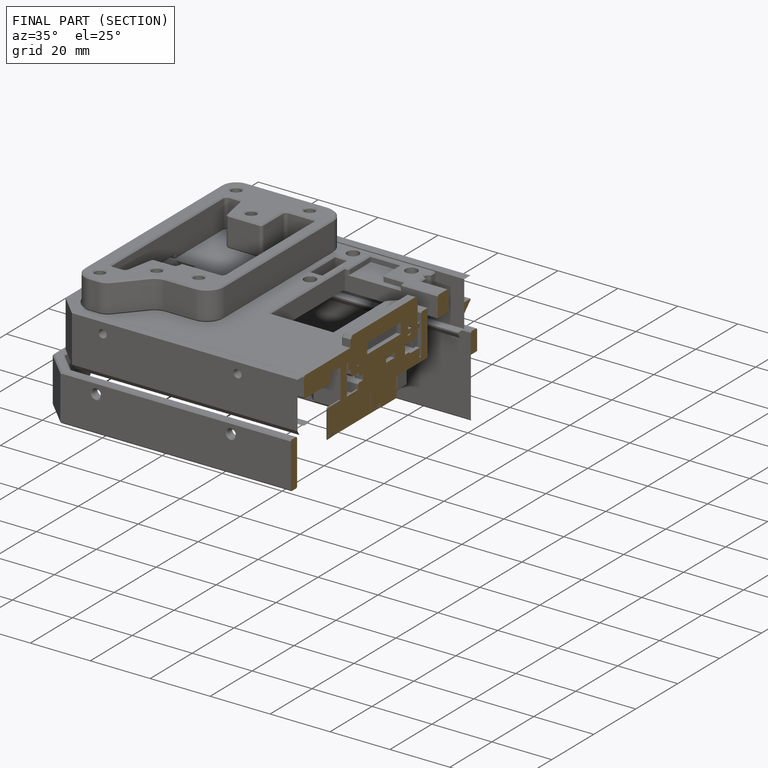
[diagram: finished part — half-section view (interior)]
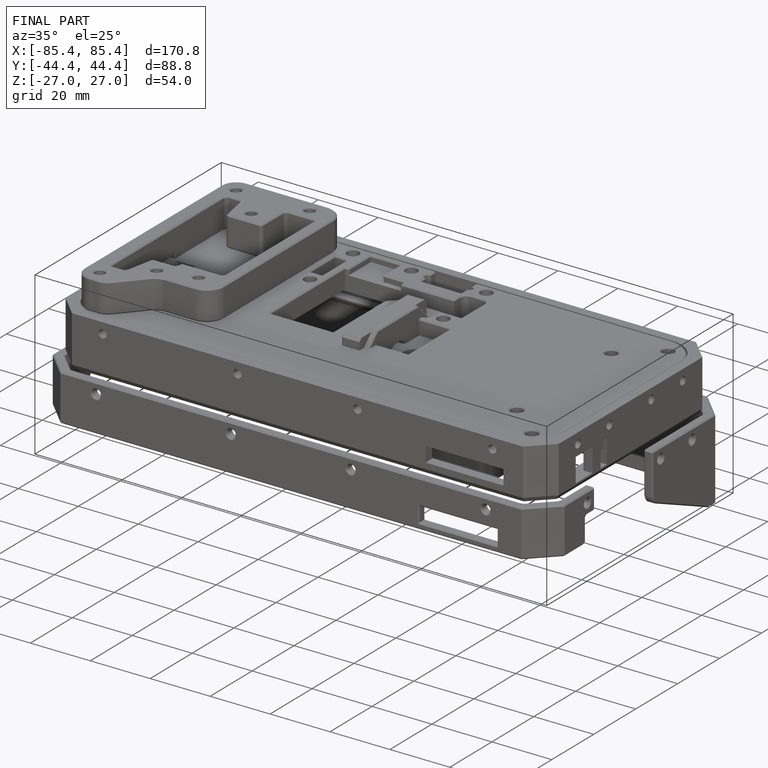
[diagram: finished part — iso view with bounding-box wireframe]
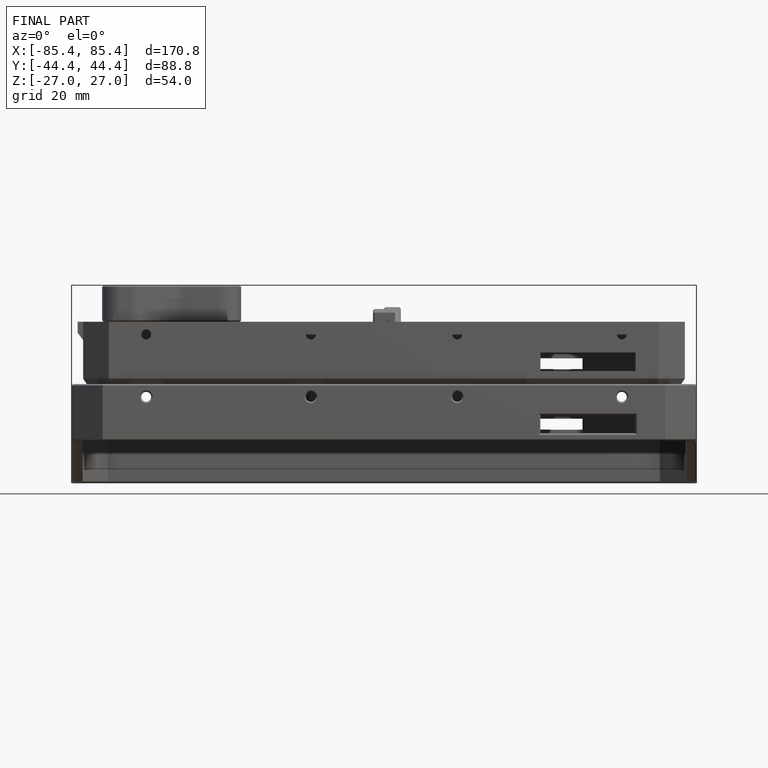
[diagram: finished part — front view with bounding-box wireframe]
